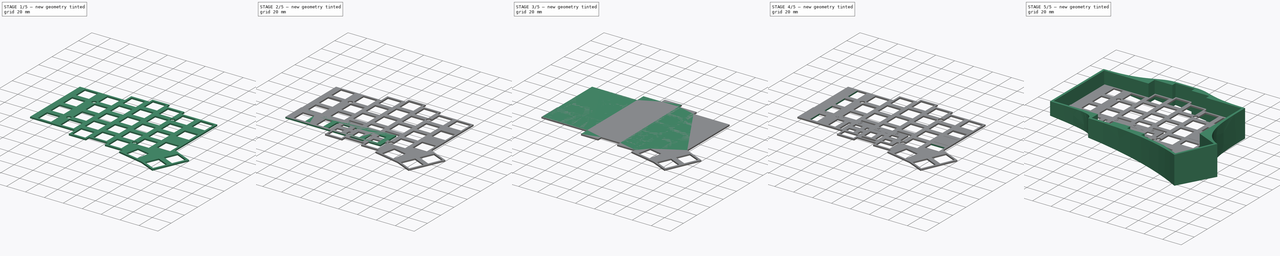
[diagram: build sequence overview — one tinted view per stage of 5, left to right]
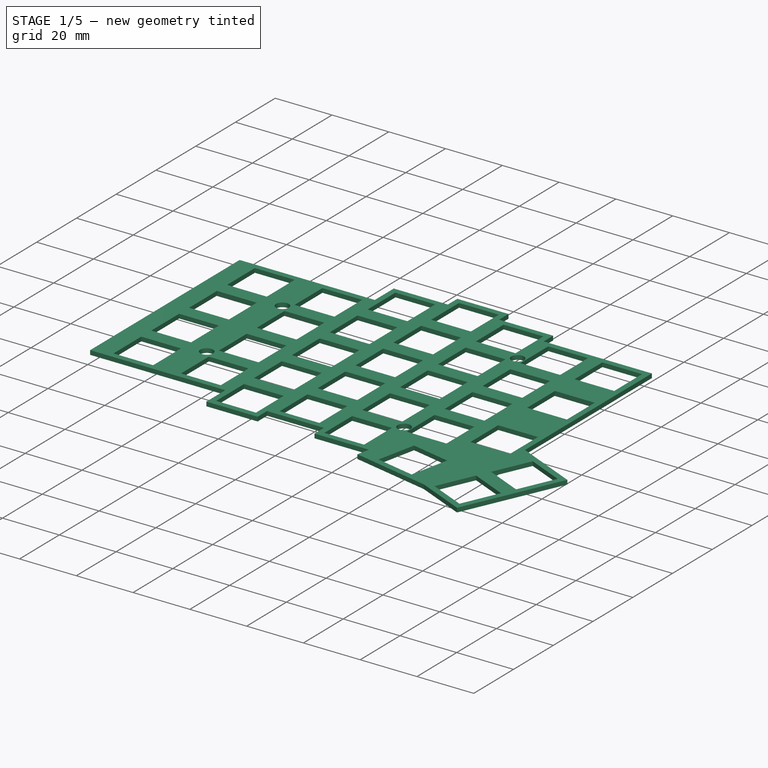
[diagram: stage 1 of 5 — iso view after this stage's code; geometry added in this stage tinted green]
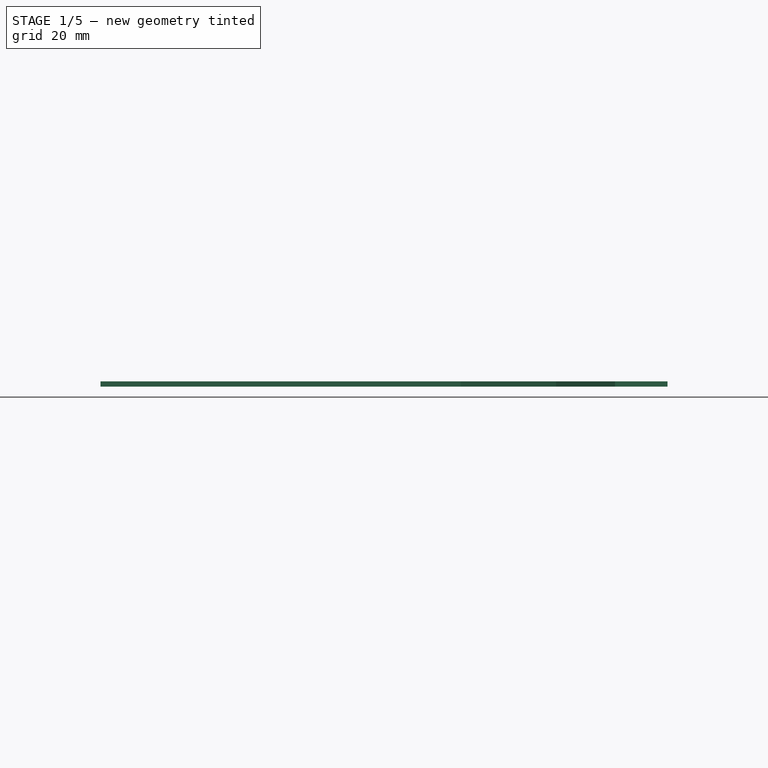
[diagram: stage 1 of 5 — front view after this stage's code; geometry added in this stage tinted green]
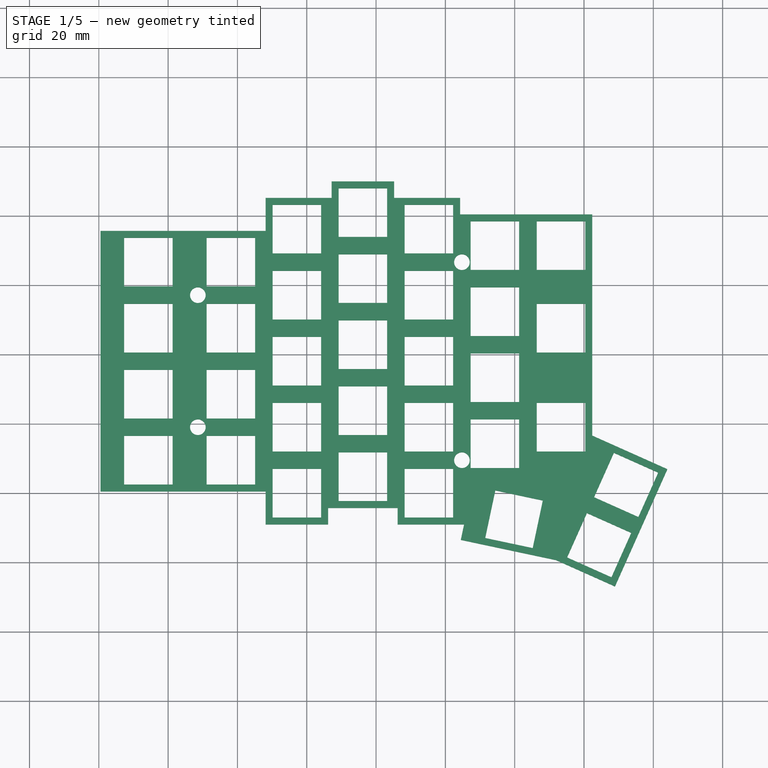
[diagram: stage 1 of 5 — top view after this stage's code; geometry added in this stage tinted green]
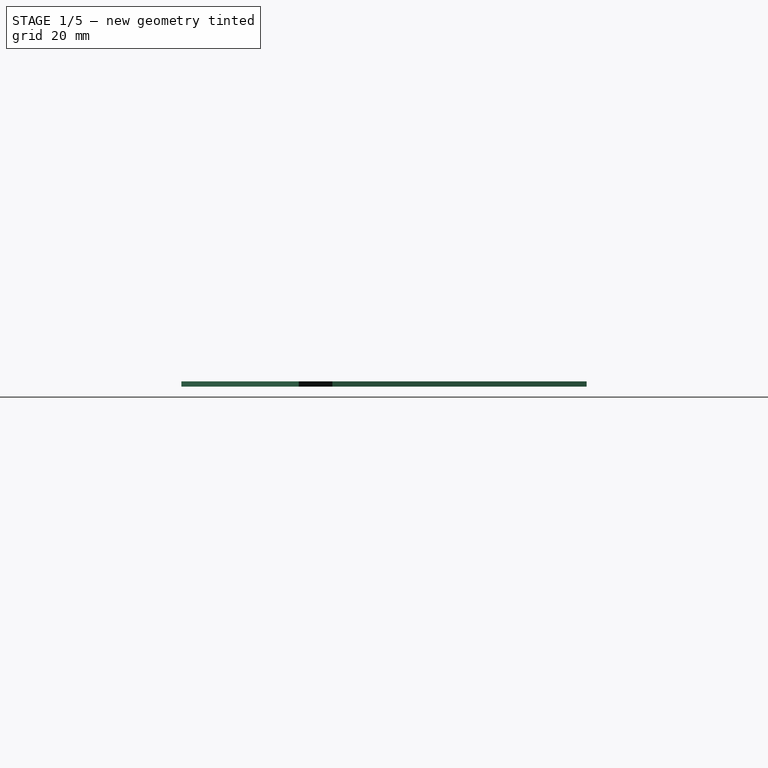
[diagram: stage 1 of 5 — right view after this stage's code; geometry added in this stage tinted green]
FCSTD DOCUMENT  (FreeCAD 0.19R24291 (Git))
Label: plate
License: All rights reserved
LicenseURL: http://en.wikipedia.org/wiki/All_rights_reserved
objects: Sketcher::SketchObject×18, PartDesign::Pocket×10, PartDesign::Pad×4, PartDesign::Body×4, Spreadsheet::Sheet×2, PartDesign::Draft×1, Part::Part2DObjectPython×1, Part::Extrusion×1, Part::Cut×1
note: 55 computed .brp shape members not serialized (recipe doc carries the construction recipe); baked Part::Feature solids carry a one-line shape summary decoded from their .brp

FEATURE [Spreadsheet::Sheet] Spreadsheet  label="Constants_ergo"
  cells = A1=grid; B1(grid)=19.05; C1=hole; D1(hole)=14; E1=spacing; F1(spacing)==grid - hole; A2=edge; B2(edge)=4; C2=hole_base; D2(hole_base)=14; A3=mod_units; B3(mod_units)=1.5; A5=plate; D5=case; A6=thickness; B6(thickness)=1.5; D6=highprofile; E6(highprofile)==11.6 + 1.6; A7=margin (to case); B7(margin)=0.5; D7=platetopcb; E7(platetopcb)=0; F7=6.6 for plate screw; A8=platehole; B8(platehole)=4.5; D8=space_min; E8(space_min)=1; F8=8,5 for plate screw; G8=postcone; H8(postcone)=0.2; A9=holemargin; B9(holemargin)=0.3; D9=postdiameter; E9(postdiameter)=5; F9=posthole; G9(posthole)=2.9; D10=angle; E10(angle)=6; A11=weight; D11=brim; E11(brim)==1.75 + 1.25; A12=weight_diameter; B12(weight_diameter)=40; D12=clearance; E12(clearance)=0.75; D13=port_position; E13(port_position)=2; A14=pluckey; A15=angle_lashes; B15(angle_lashes)=42
FEATURE [Sketcher::SketchObject] Sketch002  label="plate_w_margin"
  FullyConstrained = true
  expr: Constraints[53] = Spreadsheet.grid * 2
  expr: Constraints[205] = <<Constants_ergo>>.margin
  expr: Constraints[22] = Spreadsheet.grid
  expr: Constraints[75] = Spreadsheet.grid
  expr: Constraints[70] = Spreadsheet.grid * Spreadsheet.mod_units + Spreadsheet.grid / 2
  expr: Constraints[67] = Spreadsheet.grid
  expr: Constraints[129] = Spreadsheet.spacing / 2
  expr: Constraints[64] = Spreadsheet.mod_units * Spreadsheet.grid / 2
  expr: Constraints[128] = Spreadsheet.spacing / 2
  expr: Constraints[208] = <<Constants_ergo>>.margin
  expr: Constraints[124] = Spreadsheet.grid / 2
  expr: Constraints[126] = Spreadsheet.spacing / 2
  expr: Constraints[69] = Spreadsheet.grid
  expr: Constraints[61] = 78°
  expr: Constraints[52] = Spreadsheet.grid
  expr: Constraints[213] = <<Constants_ergo>>.margin
  expr: Constraints[79] = Spreadsheet.grid - 14.60669124913411
  expr: Constraints[207] = <<Constants_ergo>>.margin
  expr: Constraints[90] = Spreadsheet.hole
  expr: Constraints[78] = 180 - 12.08569093596732
  expr: Constraints[211] = <<Constants_ergo>>.margin
  expr: Constraints[94] = Spreadsheet.spacing / 2
  expr: Constraints[51] = Spreadsheet.grid * 1.5
  expr: Constraints[122] = Spreadsheet.hole
  expr: Constraints[28] = Spreadsheet.grid * 2
  expr: Constraints[25] = Spreadsheet.grid / 4
  expr: Constraints[95] = 0.75 * Spreadsheet.grid - Spreadsheet.hole / 2
  expr: Constraints[204] = <<Constants_ergo>>.margin
  expr: Constraints[26] = Spreadsheet.grid / 2
  expr: Constraints[72] = Spreadsheet.grid
  expr: Constraints[127] = Spreadsheet.spacing / 2
  expr: Constraints[2] = 4 * Spreadsheet.grid
  expr: Constraints[5] = (Spreadsheet.mod_units + 1) * Spreadsheet.grid
  expr: Constraints[77] = Spreadsheet.grid
  expr: Constraints[193] = <<Constants_ergo>>.margin
  expr: Constraints[194] = <<Constants_ergo>>.margin
  expr: Constraints[198] = <<Constants_ergo>>.margin
  expr: Constraints[195] = <<Constants_ergo>>.margin
  expr: Constraints[199] = <<Constants_ergo>>.margin
  expr: Constraints[200] = <<Constants_ergo>>.margin
  expr: Constraints[209] = <<Constants_ergo>>.margin
  expr: Constraints[196] = <<Constants_ergo>>.margin
  expr: Constraints[203] = <<Constants_ergo>>.margin
  expr: Constraints[206] = <<Constants_ergo>>.margin
  expr: Constraints[201] = <<Constants_ergo>>.margin
  expr: Constraints[216] = <<Constants_ergo>>.margin
  expr: Constraints[210] = <<Constants_ergo>>.margin
  expr: Constraints[212] = <<Constants_ergo>>.margin
  expr: Constraints[197] = <<Constants_ergo>>.margin
  expr: Constraints[214] = <<Constants_ergo>>.margin
  expr: Constraints[215] = <<Constants_ergo>>.margin
  sketch-geometry (72):
    g0: LineSegment StartX=104.775 StartY=-9.525 StartZ=0 EndX=103.851 EndY=-13.8712 EndZ=0
    g1: LineSegment StartX=0 StartY=0 StartZ=0 EndX=0 EndY=76.2 EndZ=0
    g2: LineSegment StartX=0 StartY=76.2 StartZ=0 EndX=47.625 EndY=76.2 EndZ=0
    g3: LineSegment StartX=47.625 StartY=76.2 StartZ=0 EndX=47.625 EndY=85.725 EndZ=0
    g4: LineSegment StartX=47.625 StartY=85.725 StartZ=0 EndX=66.675 EndY=85.725 EndZ=0
    g5: LineSegment StartX=66.675 StartY=85.725 StartZ=0 EndX=66.675 EndY=90.4875 EndZ=0
    g6: LineSegment StartX=66.675 StartY=90.4875 StartZ=0 EndX=85.725 EndY=90.4875 EndZ=0
    g7: LineSegment StartX=85.725 StartY=90.4875 StartZ=0 EndX=85.725 EndY=85.725 EndZ=0
    g8: LineSegment StartX=85.725 StartY=85.725 StartZ=0 EndX=104.775 EndY=85.725 EndZ=0
    g9: LineSegment StartX=104.775 StartY=85.725 StartZ=0 EndX=104.775 EndY=80.9625 EndZ=0
    g10: LineSegment StartX=104.775 StartY=80.9625 StartZ=0 EndX=142.875 EndY=80.9625 EndZ=0
    g11: LineSegment StartX=142.875 StartY=80.9625 StartZ=0 EndX=142.875 EndY=16.9712 EndZ=0
    g12: LineSegment StartX=0 StartY=0 StartZ=0 EndX=47.625 EndY=0 EndZ=0
    g13: LineSegment StartX=47.625 StartY=0 StartZ=0 EndX=47.625 EndY=-9.525 EndZ=0
    g14: LineSegment StartX=47.625 StartY=-9.525 StartZ=0 EndX=66.675 EndY=-9.525 EndZ=0
    g15: LineSegment StartX=66.675 StartY=-9.525 StartZ=0 EndX=66.675 EndY=-4.7625 EndZ=0
    g16: LineSegment StartX=66.675 StartY=-4.7625 StartZ=0 EndX=85.725 EndY=-4.7625 EndZ=0
    g17: LineSegment StartX=85.725 StartY=-4.7625 StartZ=0 EndX=85.725 EndY=-9.525 EndZ=0
    g18: LineSegment StartX=164.742 StartY=7.19623 StartZ=0 EndX=149.193 EndY=-27.5866 EndZ=0
    g19: LineSegment StartX=149.193 StartY=-27.5866 StartZ=0 EndX=131.802 EndY=-19.8123 EndZ=0
    g20: LineSegment StartX=131.802 StartY=-19.8123 StartZ=0 EndX=103.851 EndY=-13.8712 EndZ=0
    g21: LineSegment StartX=164.742 StartY=7.19623 StartZ=0 EndX=142.875 EndY=16.9712 EndZ=0
    g22: LineSegment StartX=85.725 StartY=-9.525 StartZ=0 EndX=104.775 EndY=-9.525 EndZ=0
    g23: LineSegment StartX=14.2875 StartY=76.2 StartZ=0 EndX=14.2875 EndY=0 EndZ=0
    g24: LineSegment StartX=38.1 StartY=76.2 StartZ=0 EndX=38.1 EndY=0 EndZ=0
    g25: LineSegment StartX=57.15 StartY=85.725 StartZ=0 EndX=57.15 EndY=-9.525 EndZ=0
    g26: LineSegment StartX=76.2 StartY=90.4875 StartZ=0 EndX=76.2 EndY=-4.7625 EndZ=0
    g27: LineSegment StartX=95.25 StartY=85.725 StartZ=0 EndX=95.25 EndY=-9.525 EndZ=0
    g28: LineSegment StartX=114.3 StartY=80.9625 StartZ=0 EndX=114.3 EndY=-9.525 EndZ=0
    g29: LineSegment StartX=133.35 StartY=80.9625 StartZ=0 EndX=133.35 EndY=-9.525 EndZ=0
    g30: LineSegment StartX=111.504 StartY=-12.9165 StartZ=0 EndX=125.198 EndY=-15.8273 EndZ=0
    g31: LineSegment StartX=125.198 StartY=-15.8273 StartZ=0 EndX=128.109 EndY=-2.13324 EndZ=0
    g32: LineSegment StartX=128.109 StartY=-2.13324 StartZ=0 EndX=114.415 EndY=0.777521 EndZ=0
    g33: LineSegment StartX=114.415 StartY=0.777521 StartZ=0 EndX=111.504 EndY=-12.9165 EndZ=0
    g34: LineSegment StartX=114.415 StartY=0.777521 StartZ=0 EndX=125.198 EndY=-15.8273 EndZ=0
    g35: LineSegment StartX=111.504 StartY=-12.9165 StartZ=0 EndX=128.109 EndY=-2.13324 EndZ=0
    g36: LineSegment StartX=135.137 StartY=-18.5376 StartZ=0 EndX=147.918 EndY=-24.251 EndZ=0
    g37: LineSegment StartX=147.918 StartY=-24.251 StartZ=0 EndX=153.632 EndY=-11.4699 EndZ=0
    g38: LineSegment StartX=153.632 StartY=-11.4699 StartZ=0 EndX=140.851 EndY=-5.75648 EndZ=0
    g39: LineSegment StartX=140.851 StartY=-5.75648 StartZ=0 EndX=135.137 EndY=-18.5376 EndZ=0
    g40: LineSegment StartX=140.851 StartY=-5.75648 StartZ=0 EndX=147.918 EndY=-24.251 EndZ=0
    g41: LineSegment StartX=135.137 StartY=-18.5376 StartZ=0 EndX=153.632 EndY=-11.4699 EndZ=0
    g42: LineSegment StartX=142.912 StartY=-1.14615 StartZ=0 EndX=155.693 EndY=-6.85959 EndZ=0
    g43: LineSegment StartX=155.693 StartY=-6.85959 StartZ=0 EndX=161.406 EndY=5.92152 EndZ=0
    g44: LineSegment StartX=161.406 StartY=5.92152 StartZ=0 EndX=148.625 EndY=11.6349 EndZ=0
    g45: LineSegment StartX=148.625 StartY=11.6349 StartZ=0 EndX=142.912 EndY=-1.14615 EndZ=0
    g46: LineSegment StartX=148.625 StartY=11.6349 StartZ=0 EndX=155.693 EndY=-6.85959 EndZ=0
    g47: LineSegment StartX=142.912 StartY=-1.14615 StartZ=0 EndX=161.406 EndY=5.92152 EndZ=0
    g48: LineSegment StartX=140.497 StartY=-23.6995 StartZ=0 EndX=156.046 EndY=11.0834 EndZ=0
    g49: LineSegment StartX=0.5 StartY=75.7 StartZ=0 EndX=48.125 EndY=75.7 EndZ=0
    g50: LineSegment StartX=48.125 StartY=75.7 StartZ=0 EndX=48.125 EndY=85.225 EndZ=0
    g51: LineSegment StartX=48.125 StartY=85.225 StartZ=0 EndX=67.175 EndY=85.225 EndZ=0
    g52: LineSegment StartX=67.175 StartY=85.225 StartZ=0 EndX=67.175 EndY=89.9875 EndZ=0
    g53: LineSegment StartX=67.175 StartY=89.9875 StartZ=0 EndX=85.225 EndY=89.9875 EndZ=0
    g54: LineSegment StartX=85.225 StartY=89.9875 StartZ=0 EndX=85.225 EndY=85.225 EndZ=0
    g55: LineSegment StartX=85.225 StartY=85.225 StartZ=0 EndX=104.275 EndY=85.225 EndZ=0
    g56: LineSegment StartX=104.275 StartY=85.225 StartZ=0 EndX=104.275 EndY=80.4625 EndZ=0
    g57: LineSegment StartX=104.275 StartY=80.4625 StartZ=0 EndX=142.375 EndY=80.4625 EndZ=0
    g58: LineSegment StartX=142.375 StartY=80.4625 StartZ=0 EndX=142.375 EndY=16.647 EndZ=0
    g59: LineSegment StartX=142.375 StartY=16.647 StartZ=0 EndX=164.081 EndY=6.94381 EndZ=0
    g60: LineSegment StartX=164.081 StartY=6.94381 StartZ=0 EndX=148.941 EndY=-26.9261 EndZ=0
    g61: LineSegment StartX=148.941 StartY=-26.9261 StartZ=0 EndX=131.957 EndY=-19.3342 EndZ=0
    g62: LineSegment StartX=131.957 StartY=-19.3342 StartZ=0 EndX=104.444 EndY=-13.4861 EndZ=0
    g63: LineSegment StartX=104.444 StartY=-13.4861 StartZ=0 EndX=105.392 EndY=-9.025 EndZ=0
    g64: LineSegment StartX=105.392 StartY=-9.025 StartZ=0 EndX=86.225 EndY=-9.025 EndZ=0
    g65: LineSegment StartX=86.225 StartY=-9.025 StartZ=0 EndX=86.225 EndY=-4.2625 EndZ=0
    g66: LineSegment StartX=86.225 StartY=-4.2625 StartZ=0 EndX=66.175 EndY=-4.2625 EndZ=0
    g67: LineSegment StartX=66.175 StartY=-4.2625 StartZ=0 EndX=66.175 EndY=-9.025 EndZ=0
    g68: LineSegment StartX=66.175 StartY=-9.025 StartZ=0 EndX=48.125 EndY=-9.025 EndZ=0
    g69: LineSegment StartX=48.125 StartY=-9.025 StartZ=0 EndX=48.125 EndY=0.5 EndZ=0
    g70: LineSegment StartX=48.125 StartY=0.5 StartZ=0 EndX=0.5 EndY=0.5 EndZ=0
    g71: LineSegment StartX=0.5 StartY=0.5 StartZ=0 EndX=0.5 EndY=75.7 EndZ=0
  constraints (217):
    c: Coincident(g1,g-1)
    c: Vertical(g1)
    c: DistanceY(g1,g1) = 76.2
    c: Horizontal(g2)
    c: Coincident(g2,g1)
    c: DistanceX(g2,g2) = 47.625
    c: Coincident(g3,g4)
    c: Coincident(g4,g5)
    c: Coincident(g5,g6)
    c: Coincident(g6,g7)
    c: Coincident(g8,g9)
    c: Coincident(g9,g10)
    c: Coincident(g10,g11)
    c: Vertical(g3)
    c: Vertical(g5)
    c: Vertical(g7)
    c: Vertical(g9)
    c: Vertical(g11)
    c: Horizontal(g4)
    c: Horizontal(g6)
    c: Horizontal(g8)
    c: Horizontal(g10)
    c: DistanceX(g6,g6) = 19.05
    c: Equal(g4,g8)
    c: Equal(g8,g6)
    c: DistanceY(g5,g5) = 4.7625
    c: DistanceY(g3,g3) = 9.525
    c: Equal(g9,g7)
    c: DistanceX(g10,g10) = 38.1
    c: Coincident(g2,g3)
    c: Equal(g5,g7)
    c: Coincident(g12,g13)
    c: Coincident(g13,g14)
    c: Coincident(g14,g15)
    c: Coincident(g15,g16)
    c: Coincident(g16,g17)
    c: Equal(g12,g2)
    c: Horizontal(g12)
    c: Equal(g3,g13)
    c: Vertical(g13)
    c: Vertical(g15)
    c: Vertical(g17)
    c: Horizontal(g14)
    c: Horizontal(g16)
    c: Equal(g15,g17)
    c: Equal(g17,g5)
    c: Equal(g14,g4)
    c: Equal(g16,g6)
    c: Coincident(g1,g12)
    c: Coincident(g18,g19)
    c: Coincident(g19,g20)
    c: Distance(g20) = 28.575
    c: Distance(g19) = 19.05
    c: Distance(g18) = 38.1
    c: Perpendicular(g18,g19)
    c: Perpendicular(g21,g18)
    c: Coincident(g11,g21)
    c: Coincident(g17,g22)
    c: Equal(g22,g16)
    c: Horizontal(g22)
    c: Coincident(g22,g0)
    c: Angle(g22,g0) = 1.36136
    c: Coincident(g20,g0)
    c: Perpendicular(g20,g0)
    c: DistanceX(g1,g23) = 14.2875
    c: Vertical(g24)
    c: Vertical(g25)
    c: DistanceX(g24,g25) = 19.05
    c: Vertical(g26)
    c: DistanceX(g25,g26) = 19.05
    c: DistanceX(g1,g24) = 38.1
    c: Vertical(g27)
    c: DistanceX(g26,g27) = 19.05
    c: Coincident(g7,g8)
    c: Vertical(g28)
    c: DistanceX(g27,g28) = 19.05
    c: Vertical(g29)
    c: DistanceX(g28,g29) = 19.05
    c: Angle(g20,g19) = 2.93066
    c: Distance(g0) = 4.44331
    c: Coincident(g30,g31)
    c: Coincident(g31,g32)
    c: Coincident(g32,g33)
    c: Coincident(g33,g30)
    c: Perpendicular(g35,g34)
    c: Coincident(g35,g31)
    c: Coincident(g34,g32)
    c: Coincident(g35,g30)
    c: Coincident(g34,g30)
    c: Parallel(g30,g20)
    c: Distance(g30) = 14
    c: Perpendicular(g33,g30)
    c: Equal(g30,g32)
    c: Parallel(g32,g30)
    c: Distance(g0,g30) = 2.525
    c: Distance(g0,g33) = 7.2875
    c: Coincident(g36,g37)
    c: Coincident(g37,g38)
    c: Coincident(g38,g39)
    c: Coincident(g39,g36)
    c: Perpendicular(g41,g40)
    c: Coincident(g41,g37)
    c: Coincident(g40,g38)
    c: Coincident(g41,g36)
    c: Coincident(g40,g36)
    c: Coincident(g42,g43)
    c: Coincident(g43,g44)
    c: Coincident(g44,g45)
    c: Coincident(g45,g42)
    c: Perpendicular(g47,g46)
    c: Coincident(g47,g43)
    c: Coincident(g46,g44)
    c: Coincident(g47,g42)
    c: Coincident(g46,g42)
    c: Equal(g36,g42)
    c: Perpendicular(g44,g45)
    c: Perpendicular(g45,g42)
    c: Perpendicular(g38,g39)
    c: Perpendicular(g39,g36)
    c: Parallel(g36,g19)
    c: Parallel(g42,g36)
    c: Parallel(g37,g39)
    c: Distance(g36) = 14
    c: Parallel(g48,g18)
    c: Distance(g18,g48) = 9.525
    c: Equal(g45,g43)
    c: Distance(g18,g36) = 2.525
    c: Distance(g18,g37) = 2.525
    c: Distance(g18,g44) = 2.525
    c: Distance(g18,g43) = 2.525
    c: Coincident(g18,g21)
    c: Horizontal(g23,g-1)
    c: Horizontal(g23,g1)
    c: Vertical(g23)
    c: Horizontal(g24,g2)
    c: Horizontal(g12,g24)
    c: Horizontal(g25,g13)
    c: Horizontal(g3,g25)
    c: Horizontal(g5,g26)
    c: Horizontal(g7,g27)
    c: Horizontal(g9,g28)
    c: Horizontal(g9,g29)
    c: Horizontal(g27,g17)
    c: Horizontal(g26,g15)
    c: Horizontal(g28,g0)
    c: Horizontal(g29,g0)
    c: Equal(g48,g18)
    c: PointOnObject(g48,g19)
    c: Coincident(g49,g50)
    c: Coincident(g50,g51)
    c: Coincident(g51,g52)
    c: Coincident(g52,g53)
    c: Coincident(g53,g54)
    c: Coincident(g54,g55)
    c: Coincident(g55,g56)
    c: Coincident(g56,g57)
    c: Coincident(g57,g58)
    c: Coincident(g58,g59)
    c: Coincident(g59,g60)
    c: Coincident(g60,g61)
    c: Coincident(g61,g62)
    c: Coincident(g62,g63)
    c: Coincident(g63,g64)
    c: Coincident(g64,g65)
    c: Coincident(g65,g66)
    c: Coincident(g66,g67)
    c: Coincident(g67,g68)
    c: Coincident(g68,g69)
    c: Coincident(g69,g70)
    c: Coincident(g70,g71)
    c: Coincident(g71,g49)
    c: Parallel(g49,g2)
    c: Parallel(g50,g3)
    c: Parallel(g51,g4)
    c: Parallel(g52,g5)
    c: Parallel(g53,g6)
    c: Parallel(g54,g7)
    c: Parallel(g55,g8)
    c: Parallel(g56,g9)
    c: Parallel(g57,g10)
    c: Parallel(g58,g11)
    c: Parallel(g59,g21)
    c: Parallel(g60,g18)
    c: Parallel(g19,g61)
    c: Parallel(g20,g62)
    c: Parallel(g0,g63)
    c: Parallel(g22,g64)
    c: Parallel(g17,g65)
    c: Parallel(g16,g66)
    c: Parallel(g67,g15)
    c: Parallel(g14,g68)
    c: Parallel(g13,g69)
    c: Parallel(g12,g70)
    c: DistanceY(g-1,g70) = 0.5
    c: DistanceX(g-1,g70) = 0.5
    c: DistanceX(g1,g49) = 0.5
    c: DistanceY(g49,g1) = 0.5
    c: DistanceX(g2,g49) = 0.5
    c: DistanceY(g50,g3) = 0.5
    c: DistanceX(g4,g51) = 0.5
    c: DistanceY(g52,g5) = 0.5
    c: DistanceX(g53,g6) = 0.5
    c: Horizontal(g54,g51)
    c: DistanceX(g55,g8) = 0.5
    c: DistanceY(g56,g9) = 0.5
    c: DistanceX(g57,g10) = 0.5
    c: Distance(g59,g21) = 0.5
    c: Distance(g59,g18) = 0.5
    c: Distance(g60,g19) = 0.5
    c: Distance(g62,g20) = 0.5
    c: Distance(g62,g0) = 0.5
    c: DistanceX(g12,g69) = 0.5
    c: DistanceY(g13,g68) = 0.5
    c: DistanceX(g67,g14) = 0.5
    c: DistanceY(g15,g66) = 0.5
    c: DistanceX(g16,g65) = 0.5
    c: DistanceY(g17,g64) = 0.5
FEATURE [PartDesign::Pad] Pad001
  Direction = (1,1,1)
  Length = 1.5
  Length2 = 100
  Profile = -> Sketch002
  Type = 0
  expr: Length = Spreadsheet.thickness
FEATURE [Sketcher::SketchObject] Sketch014
  ExternalGeometry = -> [Draft]
  FullyConstrained = false
  MapMode = 5
  Placement = pos=(-0.00819465,0,-0.0779669) rot=(0.99863,0,-0.052336;3.14159rad)
  Support = -> [Draft]
  sketch-geometry (38):
    g0: LineSegment StartX=-3.00829 StartY=3 StartZ=0 EndX=-3.00829 EndY=-79.2 EndZ=0
    g1: LineSegment StartX=67.0505 StartY=-93.4875 StartZ=0 EndX=86.2054 EndY=-93.4875 EndZ=0
    g2: LineSegment StartX=151.546 StartY=31.5498 StartZ=0 EndX=169.643 EndY=-8.71073 EndZ=0
    g3-g6: Circle x4 (B-spline internal-alignment scaffolding for g7; pole/knot coordinates omitted)
    g7: BSplineCurve PolesCount=4 KnotsCount=2 Degree=3 IsPeriodic=0
    g8: GeomPoint X=-3.00829 Y=3 Z=0
    g9: GeomPoint X=44.879 Y=12.525 Z=0
    g10-g13: Circle x4 (B-spline internal-alignment scaffolding for g14; pole/knot coordinates omitted)
    g14: BSplineCurve PolesCount=4 KnotsCount=2 Degree=3 IsPeriodic=0
    g15: GeomPoint X=44.879 Y=12.525 Z=0
    g16: GeomPoint X=151.546 Y=31.5498 Z=0
    g17-g20: Circle x4 (B-spline internal-alignment scaffolding for g21; pole/knot coordinates omitted)
    g21: BSplineCurve PolesCount=4 KnotsCount=2 Degree=3 IsPeriodic=0
    g22: GeomPoint X=169.643 Y=-8.71073 Z=0
    g23: GeomPoint X=146.687 Y=-83.9625 Z=0
    g24-g27: Circle x4 (B-spline internal-alignment scaffolding for g28; pole/knot coordinates omitted)
    g28: BSplineCurve PolesCount=4 KnotsCount=2 Degree=3 IsPeriodic=0
    g29: GeomPoint X=146.687 Y=-83.9625 Z=0
    g30: GeomPoint X=86.2054 Y=-93.4875 Z=0
    g31-g34: Circle x4 (B-spline internal-alignment scaffolding for g35; pole/knot coordinates omitted)
    g35: BSplineCurve PolesCount=4 KnotsCount=2 Degree=3 IsPeriodic=0
    g36: GeomPoint X=67.0505 Y=-93.4875 Z=0
    g37: GeomPoint X=-3.00829 Y=-79.2 Z=0
  constraints (51):
    c: Coincident(g0,g-3)
    c: Coincident(g0,g-4)
    c: Coincident(g1,g-5)
    c: Coincident(g1,g-6)
    c: Coincident(g2,g-9)
    c: Coincident(g2,g-8)
    c: Coincident(g7,g0)
    c: Weight(g3) = 1
    c: Equal(g3,g4)
    c: Equal(g3,g5)
    c: Equal(g3,g6)
    c: Coincident(g7,g-10)
    c: InternalAlignment(g3-g6 -> g7) x4
    c: InternalAlignment(g8,g7)
    c: InternalAlignment(g9,g7)
    c: Coincident(g14,g7)
    c: Weight(g10) = 1
    c: Equal(g10,g11)
    c: Equal(g10,g12)
    c: Equal(g10,g13)
    c: InternalAlignment(g10-g13 -> g14) x4
    c: InternalAlignment(g15,g14)
    c: InternalAlignment(g16,g14)
    c: Coincident(g2,g14)
    c: Coincident(g21,g2)
    c: Weight(g17) = 1
    c: Equal(g17,g18)
    c: Equal(g17,g19)
    c: Equal(g17,g20)
    c: Coincident(g21,g-7)
    c: InternalAlignment(g17-g20 -> g21) x4
    c: InternalAlignment(g22,g21)
    c: InternalAlignment(g23,g21)
    c: Coincident(g28,g21)
    c: Weight(g24) = 1
    c: Equal(g24,g25)
    c: Equal(g24,g26)
    c: Equal(g24,g27)
    c: Coincident(g28,g1)
    c: InternalAlignment(g24-g27 -> g28) x4
    c: InternalAlignment(g29,g28)
    c: InternalAlignment(g30,g28)
    c: Coincident(g35,g1)
    c: Weight(g31) = 1
    c: Equal(g31,g32)
    c: Equal(g31,g33)
    c: Equal(g31,g34)
    c: Coincident(g35,g0)
    c: InternalAlignment(g31-g34 -> g35) x4
    c: InternalAlignment(g36,g35)
    c: InternalAlignment(g37,g35)
FEATURE [PartDesign::Body] Body  label="Case"
  Group = -> [Sketch,Pad,Sketch013,Pocket002,Draft,Sketch014]
  Origin = -> Origin
  Tip = -> Draft
FEATURE [PartDesign::Pocket] Pocket  label="plate holes"
  BaseFeature = -> Pad001
  Length = 5
  Length2 = 100
  Profile = -> Sketch012
  Type = 0
FEATURE [PartDesign::Pocket] Pocket005
  BaseFeature = -> Pocket
  Length = 5
  Length2 = 100
  Profile = -> Sketch011
  Type = 0
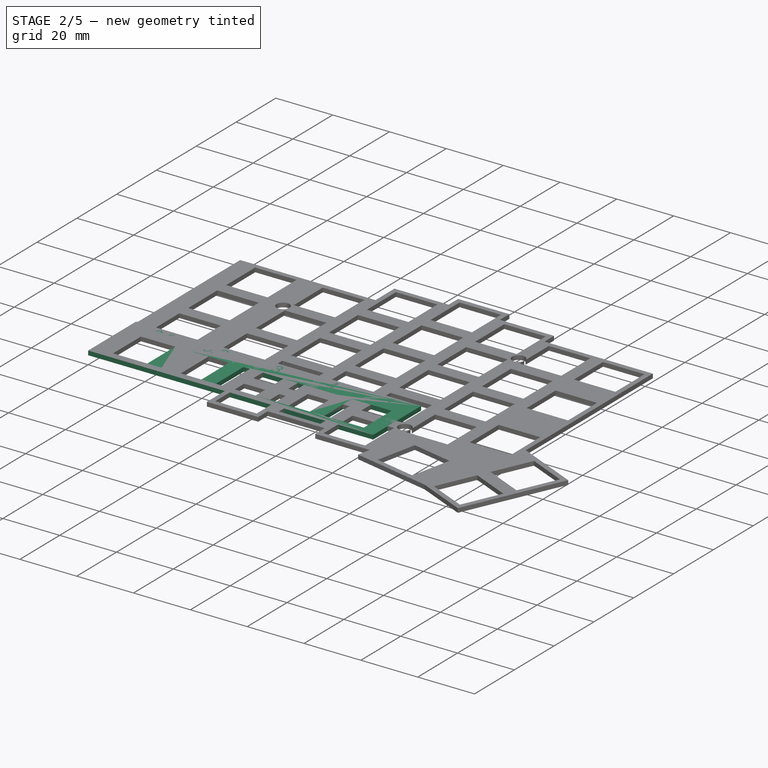
[diagram: stage 2 of 5 — iso view after this stage's code; geometry added in this stage tinted green]
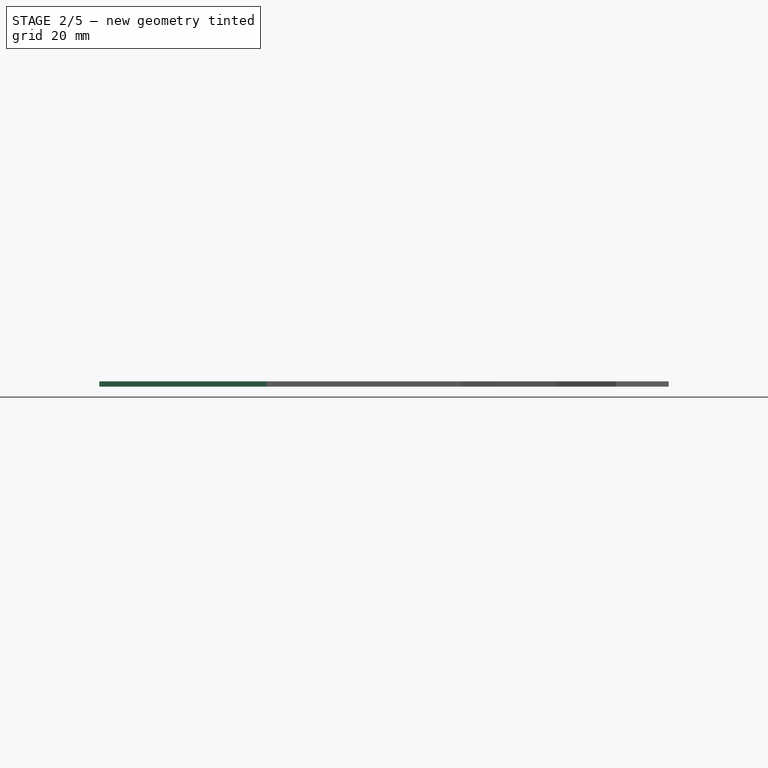
[diagram: stage 2 of 5 — front view after this stage's code; geometry added in this stage tinted green]
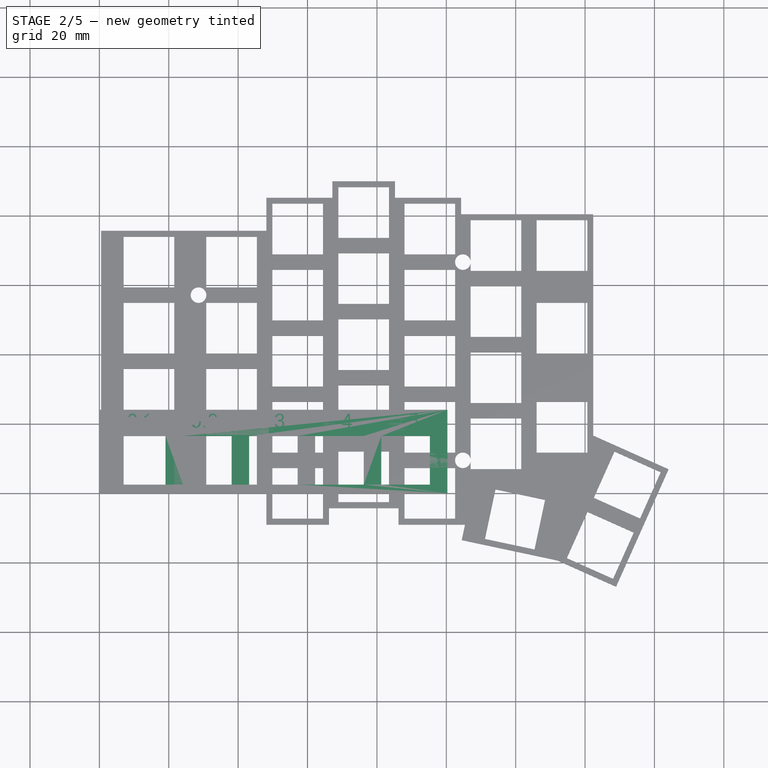
[diagram: stage 2 of 5 — top view after this stage's code; geometry added in this stage tinted green]
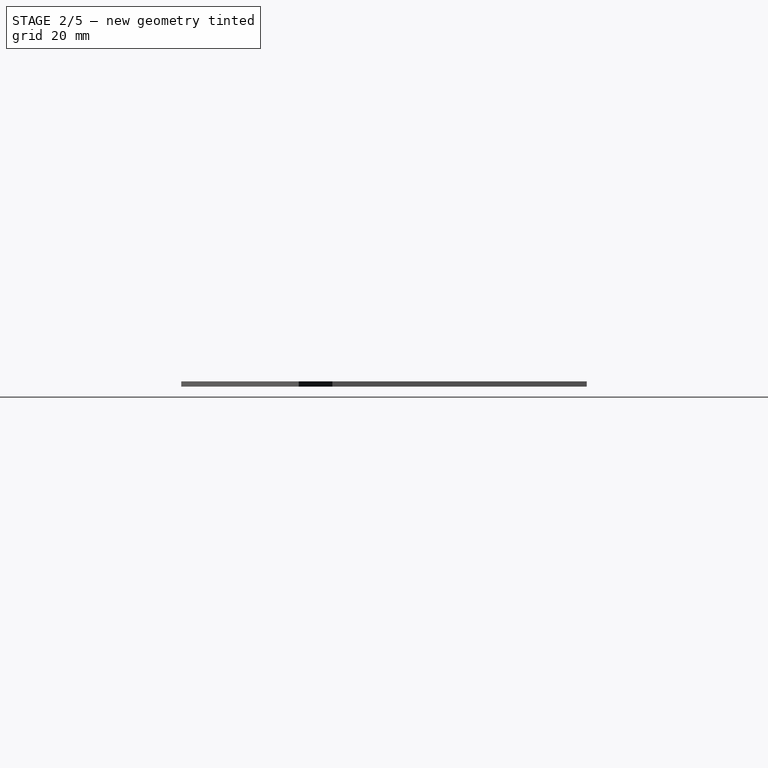
[diagram: stage 2 of 5 — right view after this stage's code; geometry added in this stage tinted green]
FEATURE [PartDesign::Body] Body002  label="Plate_ortho"
  Group = -> [Sketch019,Pad002,Sketch020,Sketch021,Sketch023,Pocket006,Sketch024,Pocket007,Sketch025,Sketch026,Pocket008,Pocket009]
  Origin = -> Origin002
  Tip = -> Pocket009
FEATURE [Sketcher::SketchObject] Sketch027
  FullyConstrained = true
  MapMode = 5
  Support = -> [XY_Plane003]
  sketch-geometry (25):
    g0: LineSegment StartX=0 StartY=0 StartZ=0 EndX=100.3 EndY=0 EndZ=0
    g1: LineSegment StartX=100.3 StartY=0 StartZ=0 EndX=100.3 EndY=24.1 EndZ=0
    g2: LineSegment StartX=100.3 StartY=24.1 StartZ=0 EndX=0 EndY=24.1 EndZ=0
    g3: LineSegment StartX=0 StartY=24.1 StartZ=0 EndX=0 EndY=0 EndZ=0
    g4: LineSegment StartX=0 StartY=9.525 StartZ=0 EndX=100.3 EndY=9.525 EndZ=0
    g5: LineSegment StartX=5.05 StartY=2.525 StartZ=0 EndX=19.05 EndY=2.525 EndZ=0
    g6: LineSegment StartX=19.05 StartY=2.525 StartZ=0 EndX=19.05 EndY=16.525 EndZ=0
    g7: LineSegment StartX=19.05 StartY=16.525 StartZ=0 EndX=5.05 EndY=16.525 EndZ=0
    g8: LineSegment StartX=5.05 StartY=16.525 StartZ=0 EndX=5.05 EndY=2.525 EndZ=0
    g9: LineSegment StartX=24.1 StartY=2.525 StartZ=0 EndX=38.1 EndY=2.525 EndZ=0
    g10: LineSegment StartX=38.1 StartY=2.525 StartZ=0 EndX=38.1 EndY=16.525 EndZ=0
    g11: LineSegment StartX=38.1 StartY=16.525 StartZ=0 EndX=24.1 EndY=16.525 EndZ=0
    g12: LineSegment StartX=24.1 StartY=16.525 StartZ=0 EndX=24.1 EndY=2.525 EndZ=0
    g13: LineSegment StartX=43.15 StartY=2.525 StartZ=0 EndX=57.15 EndY=2.525 EndZ=0
    g14: LineSegment StartX=57.15 StartY=2.525 StartZ=0 EndX=57.15 EndY=16.525 EndZ=0
    g15: LineSegment StartX=57.15 StartY=16.525 StartZ=0 EndX=43.15 EndY=16.525 EndZ=0
    g16: LineSegment StartX=43.15 StartY=16.525 StartZ=0 EndX=43.15 EndY=2.525 EndZ=0
    g17: LineSegment StartX=62.2 StartY=2.525 StartZ=0 EndX=76.2 EndY=2.525 EndZ=0
    g18: LineSegment StartX=76.2 StartY=2.525 StartZ=0 EndX=76.2 EndY=16.525 EndZ=0
    g19: LineSegment StartX=76.2 StartY=16.525 StartZ=0 EndX=62.2 EndY=16.525 EndZ=0
    g20: LineSegment StartX=62.2 StartY=16.525 StartZ=0 EndX=62.2 EndY=2.525 EndZ=0
    g21: LineSegment StartX=81.25 StartY=2.525 StartZ=0 EndX=95.25 EndY=2.525 EndZ=0
    g22: LineSegment StartX=95.25 StartY=2.525 StartZ=0 EndX=95.25 EndY=16.525 EndZ=0
    g23: LineSegment StartX=95.25 StartY=16.525 StartZ=0 EndX=81.25 EndY=16.525 EndZ=0
    g24: LineSegment StartX=81.25 StartY=16.525 StartZ=0 EndX=81.25 EndY=2.525 EndZ=0
  constraints (70):
    c: Coincident(g0,g1)
    c: Coincident(g1,g2)
    c: Coincident(g2,g3)
    c: Coincident(g3,g0)
    c: Horizontal(g0)
    c: Horizontal(g2)
    c: Vertical(g1)
    c: Vertical(g3)
    c: Coincident(g0,g-1)
    c: PointOnObject(g4,g3)
    c: PointOnObject(g4,g1)
    c: Horizontal(g4)
    c: DistanceY(g0,g4) = 9.525
    c: Coincident(g5,g6)
    c: Coincident(g6,g7)
    c: Coincident(g7,g8)
    c: Coincident(g8,g5)
    c: Horizontal(g5)
    c: Horizontal(g7)
    c: Vertical(g6)
    c: Coincident(g9,g10)
    c: Coincident(g10,g11)
    c: Coincident(g11,g12)
    c: Coincident(g12,g9)
    c: Horizontal(g9)
    c: Horizontal(g11)
    c: Vertical(g10)
    c: Coincident(g13,g14)
    c: Coincident(g14,g15)
    c: Coincident(g15,g16)
    c: Coincident(g16,g13)
    c: Horizontal(g13)
    c: Horizontal(g15)
    c: Vertical(g14)
    c: Coincident(g17,g18)
    c: Coincident(g18,g19)
    c: Coincident(g19,g20)
    c: Coincident(g20,g17)
    c: Horizontal(g17)
    c: Horizontal(g19)
    c: Vertical(g18)
    c: Coincident(g21,g22)
    c: Coincident(g22,g23)
    c: Coincident(g23,g24)
    c: Coincident(g24,g21)
    c: Horizontal(g21)
    c: Horizontal(g23)
    c: Vertical(g22)
    c: Equal(g7,g8)
    c: Equal(g8,g11)
    c: Equal(g11,g12)
    c: Equal(g12,g16)
    c: Equal(g16,g15)
    c: Equal(g15,g20)
    c: Equal(g20,g19)
    c: Equal(g19,g23)
    c: Equal(g23,g24)
    c: Symmetric(g7,g5,g4)
    c: Symmetric(g9,g11,g4)
    c: Symmetric(g13,g15,g4)
    c: Symmetric(g17,g19,g4)
    c: Symmetric(g21,g23,g4)
    c: DistanceY(g8,g8) = 14
    c: DistanceX(g0,g5) = 5.05
    c: DistanceX(g5,g9) = 5.05
    c: DistanceX(g9,g13) = 5.05
    c: DistanceX(g13,g17) = 5.05
    c: DistanceX(g17,g21) = 5.05
    c: DistanceX(g21,g0) = 5.05
    c: DistanceY(g7,g2) = 7.575
FEATURE [PartDesign::Pad] Pad003
  Direction = (1,1,1)
  Length = 1.5
  Length2 = 100
  Profile = -> Sketch027
  Type = 0
  expr: Length = 1.5
FEATURE [PartDesign::Body] Body003  label="hole tolerance tester"
  Group = -> [Sketch027,Pad003,Sketch028,Pocket010]
  Origin = -> Origin003
  Tip = -> Pocket010
FEATURE [Part::Part2DObjectPython] ShapeString  # Draft 2D object (typed FeaturePython)
  FontFile = <path>
  Placement = pos=(7.84,18.87,1.5) rot=(0,0,1;0rad)
  Size = 6
  String = 0.1       0.2       0.3       0.4       0.5
  Tracking = 0
FEATURE [Part::Extrusion] Extrude
  Base = -> ShapeString
  Dir = (0,0,1)
  DirMode = 2
  FaceMakerClass = Part::FaceMakerBullseye
  LengthFwd = 0.5
  LengthRev = -1
  Placement = pos=(0,0,-1) rot=(0,0,1;0rad)
  Solid = false
  Symmetric = false
FEATURE [Sketcher::SketchObject] Sketch029
  ExternalGeometry = -> [Pocket005]
  FullyConstrained = true
  MapMode = 5
  Placement = pos=(0,0,1.5) rot=(0,0,1;0rad)
  Support = -> [Pocket005]
  expr: Constraints[243] = <<Constants_ergo>>.holemargin
  expr: Constraints[242] = <<Constants_ergo>>.holemargin
  expr: Constraints[241] = <<Constants_ergo>>.holemargin
  expr: Constraints[215] = <<Constants_ergo>>.holemargin
  expr: Constraints[168] = <<Constants_ergo>>.holemargin
  expr: Constraints[191] = <<Constants_ergo>>.holemargin
  expr: Constraints[190] = <<Constants_ergo>>.holemargin
  expr: Constraints[189] = <<Constants_ergo>>.holemargin
  expr: Constraints[186] = <<Constants_ergo>>.holemargin
  expr: Constraints[173] = <<Constants_ergo>>.holemargin
  expr: Constraints[188] = <<Constants_ergo>>.holemargin
  expr: Constraints[172] = <<Constants_ergo>>.holemargin
  expr: Constraints[170] = <<Constants_ergo>>.holemargin
  expr: Constraints[185] = <<Constants_ergo>>.holemargin
  expr: Constraints[187] = <<Constants_ergo>>.holemargin
  expr: Constraints[171] = <<Constants_ergo>>.holemargin
  expr: Constraints[240] = <<Constants_ergo>>.holemargin
  expr: Constraints[181] = <<Constants_ergo>>.holemargin
  expr: Constraints[244] = <<Constants_ergo>>.holemargin
  expr: Constraints[169] = <<Constants_ergo>>.holemargin
  sketch-geometry (84):
    g0: LineSegment StartX=6.9875 StartY=73.975 StartZ=0 EndX=21.5875 EndY=73.975 EndZ=0
    g1: LineSegment StartX=21.5875 StartY=73.975 StartZ=0 EndX=21.5875 EndY=59.375 EndZ=0
    g2: LineSegment StartX=21.5875 StartY=59.375 StartZ=0 EndX=6.9875 EndY=59.375 EndZ=0
    g3: LineSegment StartX=6.9875 StartY=59.375 StartZ=0 EndX=6.9875 EndY=73.975 EndZ=0
    g4: LineSegment StartX=21.5875 StartY=54.925 StartZ=0 EndX=6.9875 EndY=54.925 EndZ=0
    g5: LineSegment StartX=6.9875 StartY=54.925 StartZ=0 EndX=6.9875 EndY=40.325 EndZ=0
    g6: LineSegment StartX=6.9875 StartY=40.325 StartZ=0 EndX=21.5875 EndY=40.325 EndZ=0
    g7: LineSegment StartX=21.5875 StartY=40.325 StartZ=0 EndX=21.5875 EndY=54.925 EndZ=0
    g8: LineSegment StartX=6.9875 StartY=35.875 StartZ=0 EndX=21.5875 EndY=35.875 EndZ=0
    g9: LineSegment StartX=21.5875 StartY=35.875 StartZ=0 EndX=21.5875 EndY=21.275 EndZ=0
    g10: LineSegment StartX=21.5875 StartY=21.275 StartZ=0 EndX=6.9875 EndY=21.275 EndZ=0
    g11: LineSegment StartX=6.9875 StartY=21.275 StartZ=0 EndX=6.9875 EndY=35.875 EndZ=0
    g12: LineSegment StartX=21.5875 StartY=16.825 StartZ=0 EndX=6.9875 EndY=16.825 EndZ=0
    g13: LineSegment StartX=6.9875 StartY=16.825 StartZ=0 EndX=6.9875 EndY=2.225 EndZ=0
    g14: LineSegment StartX=6.9875 StartY=2.225 StartZ=0 EndX=21.5875 EndY=2.225 EndZ=0
    g15: LineSegment StartX=21.5875 StartY=2.225 StartZ=0 EndX=21.5875 EndY=16.825 EndZ=0
    g16: LineSegment StartX=30.8 StartY=2.225 StartZ=0 EndX=45.4 EndY=2.225 EndZ=0
    g17: LineSegment StartX=45.4 StartY=2.225 StartZ=0 EndX=45.4 EndY=16.825 EndZ=0
    g18: LineSegment StartX=45.4 StartY=16.825 StartZ=0 EndX=30.8 EndY=16.825 EndZ=0
    g19: LineSegment StartX=30.8 StartY=16.825 StartZ=0 EndX=30.8 EndY=2.225 EndZ=0
    g20: LineSegment StartX=45.4 StartY=21.275 StartZ=0 EndX=30.8 EndY=21.275 EndZ=0
    g21: LineSegment StartX=30.8 StartY=21.275 StartZ=0 EndX=30.8 EndY=35.875 EndZ=0
    g22: LineSegment StartX=30.8 StartY=35.875 StartZ=0 EndX=45.4 EndY=35.875 EndZ=0
    g23: LineSegment StartX=45.4 StartY=35.875 StartZ=0 EndX=45.4 EndY=21.275 EndZ=0
    g24: LineSegment StartX=30.8 StartY=54.925 StartZ=0 EndX=45.4 EndY=54.925 EndZ=0
    g25: LineSegment StartX=45.4 StartY=54.925 StartZ=0 EndX=45.4 EndY=40.325 EndZ=0
    g26: LineSegment StartX=45.4 StartY=40.325 StartZ=0 EndX=30.8 EndY=40.325 EndZ=0
    g27: LineSegment StartX=30.8 StartY=40.325 StartZ=0 EndX=30.8 EndY=54.925 EndZ=0
    g28: LineSegment StartX=45.4 StartY=59.375 StartZ=0 EndX=30.8 EndY=59.375 EndZ=0
    g29: LineSegment StartX=30.8 StartY=59.375 StartZ=0 EndX=30.8 EndY=73.975 EndZ=0
    g30: LineSegment StartX=30.8 StartY=73.975 StartZ=0 EndX=45.4 EndY=73.975 EndZ=0
    g31: LineSegment StartX=45.4 StartY=73.975 StartZ=0 EndX=45.4 EndY=59.375 EndZ=0
    g32: LineSegment StartX=49.85 StartY=83.5 StartZ=0 EndX=64.45 EndY=83.5 EndZ=0
    g33: LineSegment StartX=64.45 StartY=83.5 StartZ=0 EndX=64.45 EndY=68.9 EndZ=0
    g34: LineSegment StartX=64.45 StartY=68.9 StartZ=0 EndX=49.85 EndY=68.9 EndZ=0
    g35: LineSegment StartX=49.85 StartY=68.9 StartZ=0 EndX=49.85 EndY=83.5 EndZ=0
    g36: LineSegment StartX=64.45 StartY=64.45 StartZ=0 EndX=49.85 EndY=64.45 EndZ=0
    g37: LineSegment StartX=49.85 StartY=64.45 StartZ=0 EndX=49.85 EndY=49.85 EndZ=0
    g38: LineSegment StartX=49.85 StartY=49.85 StartZ=0 EndX=64.45 EndY=49.85 EndZ=0
    g39: LineSegment StartX=64.45 StartY=49.85 StartZ=0 EndX=64.45 EndY=64.45 EndZ=0
    g40: LineSegment StartX=49.85 StartY=45.4 StartZ=0 EndX=64.45 EndY=45.4 EndZ=0
    g41: LineSegment StartX=64.45 StartY=45.4 StartZ=0 EndX=64.45 EndY=30.8 EndZ=0
    g42: LineSegment StartX=64.45 StartY=30.8 StartZ=0 EndX=49.85 EndY=30.8 EndZ=0
    g43: LineSegment StartX=49.85 StartY=30.8 StartZ=0 EndX=49.85 EndY=45.4 EndZ=0
    g44: LineSegment StartX=64.45 StartY=26.35 StartZ=0 EndX=49.85 EndY=26.35 EndZ=0
    g45: LineSegment StartX=49.85 StartY=26.35 StartZ=0 EndX=49.85 EndY=11.75 EndZ=0
    g46: LineSegment StartX=49.85 StartY=11.75 StartZ=0 EndX=64.45 EndY=11.75 EndZ=0
    g47: LineSegment StartX=64.45 StartY=11.75 StartZ=0 EndX=64.45 EndY=26.35 EndZ=0
    g48: LineSegment StartX=49.85 StartY=7.3 StartZ=0 EndX=64.45 EndY=7.3 EndZ=0
    g49: LineSegment StartX=64.45 StartY=7.3 StartZ=0 EndX=64.45 EndY=-7.3 EndZ=0
    g50: LineSegment StartX=64.45 StartY=-7.3 StartZ=0 EndX=49.85 EndY=-7.3 EndZ=0
    g51: LineSegment StartX=49.85 StartY=-7.3 StartZ=0 EndX=49.85 EndY=7.3 EndZ=0
    g52: LineSegment StartX=87.95 StartY=-7.3 StartZ=0 EndX=102.55 EndY=-7.3 EndZ=0
    g53: LineSegment StartX=102.55 StartY=-7.3 StartZ=0 EndX=102.55 EndY=7.3 EndZ=0
    g54: LineSegment StartX=102.55 StartY=7.3 StartZ=0 EndX=87.95 EndY=7.3 EndZ=0
    g55: LineSegment StartX=87.95 StartY=7.3 StartZ=0 EndX=87.95 EndY=-7.3 EndZ=0
    g56: LineSegment StartX=102.55 StartY=11.75 StartZ=0 EndX=87.95 EndY=11.75 EndZ=0
    g57: LineSegment StartX=87.95 StartY=11.75 StartZ=0 EndX=87.95 EndY=26.35 EndZ=0
    g58: LineSegment StartX=87.95 StartY=26.35 StartZ=0 EndX=102.55 EndY=26.35 EndZ=0
    g59: LineSegment StartX=102.55 StartY=26.35 StartZ=0 EndX=102.55 EndY=11.75 EndZ=0
    g60: LineSegment StartX=87.95 StartY=30.8 StartZ=0 EndX=102.55 EndY=30.8 EndZ=0
    g61: LineSegment StartX=102.55 StartY=30.8 StartZ=0 EndX=102.55 EndY=45.4 EndZ=0
    g62: LineSegment StartX=102.55 StartY=45.4 StartZ=0 EndX=87.95 EndY=45.4 EndZ=0
    g63: LineSegment StartX=87.95 StartY=45.4 StartZ=0 EndX=87.95 EndY=30.8 EndZ=0
    g64: LineSegment StartX=102.55 StartY=49.85 StartZ=0 EndX=87.95 EndY=49.85 EndZ=0
    g65: LineSegment StartX=87.95 StartY=49.85 StartZ=0 EndX=87.95 EndY=64.45 EndZ=0
    g66: LineSegment StartX=87.95 StartY=64.45 StartZ=0 EndX=102.55 EndY=64.45 EndZ=0
    g67: LineSegment StartX=102.55 StartY=64.45 StartZ=0 EndX=102.55 EndY=49.85 EndZ=0
    g68: LineSegment StartX=87.95 StartY=68.9 StartZ=0 EndX=102.55 EndY=68.9 EndZ=0
    g69: LineSegment StartX=102.55 StartY=68.9 StartZ=0 EndX=102.55 EndY=83.5 EndZ=0
    g70: LineSegment StartX=102.55 StartY=83.5 StartZ=0 EndX=87.95 EndY=83.5 EndZ=0
    g71: LineSegment StartX=87.95 StartY=83.5 StartZ=0 EndX=87.95 EndY=68.9 EndZ=0
    g72: LineSegment StartX=126.05 StartY=78.7375 StartZ=0 EndX=140.65 EndY=78.7375 EndZ=0
    g73: LineSegment StartX=140.65 StartY=78.7375 StartZ=0 EndX=140.65 EndY=64.1375 EndZ=0
    g74: LineSegment StartX=140.65 StartY=64.1375 StartZ=0 EndX=126.05 EndY=64.1375 EndZ=0
    g75: LineSegment StartX=126.05 StartY=64.1375 StartZ=0 EndX=126.05 EndY=78.7375 EndZ=0
    g76: LineSegment StartX=126.05 StartY=54.925 StartZ=0 EndX=140.65 EndY=54.925 EndZ=0
    g77: LineSegment StartX=140.65 StartY=54.925 StartZ=0 EndX=140.65 EndY=40.325 EndZ=0
    g78: LineSegment StartX=140.65 StartY=40.325 StartZ=0 EndX=126.05 EndY=40.325 EndZ=0
    g79: LineSegment StartX=126.05 StartY=40.325 StartZ=0 EndX=126.05 EndY=54.925 EndZ=0
    g80: LineSegment StartX=126.05 StartY=26.35 StartZ=0 EndX=140.65 EndY=26.35 EndZ=0
    g81: LineSegment StartX=140.65 StartY=26.35 StartZ=0 EndX=140.65 EndY=11.75 EndZ=0
    g82: LineSegment StartX=140.65 StartY=11.75 StartZ=0 EndX=126.05 EndY=11.75 EndZ=0
    g83: LineSegment StartX=126.05 StartY=11.75 StartZ=0 EndX=126.05 EndY=26.35 EndZ=0
  constraints (252):
    c: Coincident(g0,g1)
    c: Coincident(g1,g2)
    c: Coincident(g2,g3)
    c: Coincident(g3,g0)
    c: Horizontal(g0)
    c: Horizontal(g2)
    c: Vertical(g1)
    c: Vertical(g3)
    c: Coincident(g4,g5)
    c: Coincident(g5,g6)
    c: Coincident(g6,g7)
    c: Coincident(g7,g4)
    c: Horizontal(g4)
    c: Horizontal(g6)
    c: Vertical(g5)
    c: Vertical(g7)
    c: Coincident(g8,g9)
    c: Coincident(g9,g10)
    c: Coincident(g10,g11)
    c: Coincident(g11,g8)
    c: Horizontal(g8)
    c: Horizontal(g10)
    c: Vertical(g9)
    c: Vertical(g11)
    c: Coincident(g12,g13)
    c: Coincident(g13,g14)
    c: Coincident(g14,g15)
    c: Coincident(g15,g12)
    c: Horizontal(g12)
    c: Horizontal(g14)
    c: Vertical(g13)
    c: Vertical(g15)
    c: Coincident(g16,g17)
    c: Coincident(g17,g18)
    c: Coincident(g18,g19)
    c: Coincident(g19,g16)
    c: Horizontal(g16)
    c: Horizontal(g18)
    c: Vertical(g17)
    c: Vertical(g19)
    c: Coincident(g20,g21)
    c: Coincident(g21,g22)
    c: Coincident(g22,g23)
    c: Coincident(g23,g20)
    c: Horizontal(g20)
    c: Horizontal(g22)
    c: Vertical(g21)
    c: Vertical(g23)
    c: Coincident(g24,g25)
    c: Coincident(g25,g26)
    c: Coincident(g26,g27)
    c: Coincident(g27,g24)
    c: Horizontal(g24)
    c: Horizontal(g26)
    c: Vertical(g25)
    c: Vertical(g27)
    c: Coincident(g28,g29)
    c: Coincident(g29,g30)
    c: Coincident(g30,g31)
    c: Coincident(g31,g28)
    c: Horizontal(g28)
    c: Horizontal(g30)
    c: Vertical(g29)
    c: Vertical(g31)
    c: Coincident(g32,g33)
    c: Coincident(g33,g34)
    c: Coincident(g34,g35)
    c: Coincident(g35,g32)
    c: Horizontal(g32)
    c: Horizontal(g34)
    c: Vertical(g33)
    c: Vertical(g35)
    c: Coincident(g36,g37)
    c: Coincident(g37,g38)
    c: Coincident(g38,g39)
    c: Coincident(g39,g36)
    c: Horizontal(g36)
    c: Horizontal(g38)
    c: Vertical(g37)
    c: Vertical(g39)
    c: Coincident(g40,g41)
    c: Coincident(g41,g42)
    c: Coincident(g42,g43)
    c: Coincident(g43,g40)
    c: Horizontal(g40)
    c: Horizontal(g42)
    c: Vertical(g41)
    c: Vertical(g43)
    c: Coincident(g44,g45)
    c: Coincident(g45,g46)
    c: Coincident(g46,g47)
    c: Coincident(g47,g44)
    c: Horizontal(g44)
    c: Horizontal(g46)
    c: Vertical(g45)
    c: Vertical(g47)
    c: Coincident(g48,g49)
    c: Coincident(g49,g50)
    c: Coincident(g50,g51)
    c: Coincident(g51,g48)
    c: Horizontal(g48)
    c: Horizontal(g50)
    c: Vertical(g49)
    c: Vertical(g51)
    c: Coincident(g52,g53)
    c: Coincident(g53,g54)
    c: Coincident(g54,g55)
    c: Coincident(g55,g52)
    c: Horizontal(g52)
    c: Horizontal(g54)
    c: Vertical(g53)
    c: Vertical(g55)
    c: Coincident(g56,g57)
    c: Coincident(g57,g58)
    c: Coincident(g58,g59)
    c: Coincident(g59,g56)
    c: Horizontal(g56)
    c: Horizontal(g58)
    c: Vertical(g57)
    c: Vertical(g59)
    c: Coincident(g60,g61)
    c: Coincident(g61,g62)
    c: Coincident(g62,g63)
    c: Coincident(g63,g60)
    c: Horizontal(g60)
    c: Horizontal(g62)
    c: Vertical(g61)
    c: Vertical(g63)
    c: Coincident(g64,g65)
    c: Coincident(g65,g66)
    c: Coincident(g66,g67)
    c: Coincident(g67,g64)
    c: Horizontal(g64)
    c: Horizontal(g66)
    c: Vertical(g65)
    c: Vertical(g67)
    c: Coincident(g68,g69)
    c: Coincident(g69,g70)
    c: Coincident(g70,g71)
    c: Coincident(g71,g68)
    c: Horizontal(g68)
    c: Horizontal(g70)
    c: Vertical(g69)
    c: Vertical(g71)
    c: Coincident(g72,g73)
    c: Coincident(g73,g74)
    c: Coincident(g74,g75)
    c: Coincident(g75,g72)
    c: Horizontal(g72)
    c: Horizontal(g74)
    c: Vertical(g73)
    c: Vertical(g75)
    c: Coincident(g76,g77)
    c: Coincident(g77,g78)
    c: Coincident(g78,g79)
    c: Coincident(g79,g76)
    c: Horizontal(g76)
    c: Horizontal(g78)
    c: Vertical(g77)
    c: Vertical(g79)
    c: Coincident(g80,g81)
    c: Coincident(g81,g82)
    c: Coincident(g82,g83)
    c: Coincident(g83,g80)
    c: Horizontal(g80)
    c: Horizontal(g82)
    c: Vertical(g81)
    c: Vertical(g83)
    c: DistanceX(g0,g-4) = 0.3
    c: DistanceY(g-4,g0) = 0.3
    c: DistanceX(g-5,g0) = 0.3
    c: DistanceY(g-8,g4) = 0.3
    c: DistanceY(g-16,g8) = 0.3
    c: DistanceY(g-18,g12) = 0.3
    c: Horizontal(g0,g29)
    c: Horizontal(g4,g24)
    c: Horizontal(g8,g21)
    c: Horizontal(g12,g18)
    c: Vertical(g18,g21)
    c: Vertical(g21,g24)
    c: Vertical(g24,g29)
    c: DistanceX(g29,g-10) = 0.3
    c: Vertical(g0,g4)
    c: Vertical(g4,g8)
    c: Vertical(g8,g12)
    c: DistanceX(g32,g-22) = 0.3
    c: DistanceY(g-22,g32) = 0.3
    c: DistanceY(g-24,g36) = 0.3
    c: DistanceY(g-26,g40) = 0.3
    c: DistanceY(g-28,g44) = 0.3
    c: DistanceY(g-30,g48) = 0.3
    c: DistanceX(g70,g-32) = 0.3
    c: Horizontal(g32,g70)
    c: Horizontal(g36,g65)
    c: Horizontal(g40,g62)
    c: Horizontal(g44,g57)
    c: Horizontal(g48,g54)
    c: Equal(g58,g57)
    c: Equal(g57,g54)
    c: Equal(g54,g55)
    c: Equal(g55,g51)
    c: Equal(g51,g48)
    c: Equal(g48,g45)
    c: Equal(g45,g44)
    c: Equal(g44,g43)
    c: Equal(g43,g40)
    c: Equal(g40,g37)
    c: Equal(g37,g63)
    c: Equal(g63,g62)
    c: Equal(g62,g65)
    c: Equal(g65,g36)
    c: Equal(g36,g35)
    c: Equal(g35,g32)
    c: Equal(g32,g71)
    c: Equal(g71,g70)
    c: DistanceX(g-21,g32) = 0.3
    c: Vertical(g32,g36)
    c: Vertical(g36,g40)
    c: Vertical(g40,g44)
    c: Vertical(g44,g48)
    c: Vertical(g54,g57)
    c: Vertical(g57,g62)
    c: Vertical(g62,g65)
    c: Vertical(g65,g70)
    c: Equal(g66,g32)
    c: Equal(g3,g0)
    c: Equal(g0,g4)
    c: Equal(g4,g5)
    c: Equal(g5,g11)
    c: Equal(g11,g8)
    c: Equal(g8,g12)
    c: Equal(g12,g13)
    c: Equal(g13,g19)
    c: Equal(g19,g18)
    c: Equal(g18,g21)
    c: Equal(g21,g22)
    c: Equal(g22,g27)
    c: Equal(g27,g24)
    c: Equal(g24,g29)
    c: Equal(g29,g30)
    c: DistanceX(g72,g-46) = 0.3
    c: DistanceX(g-45,g72) = 0.3
    c: DistanceY(g-46,g72) = 0.3
    c: DistanceY(g-42,g76) = 0.3
    c: DistanceY(g-44,g80) = 0.3
    c: Vertical(g80,g76)
    c: Vertical(g76,g72)
    c: Vertical(g72,g76)
    c: Vertical(g76,g80)
    c: Equal(g75,g79)
    c: Equal(g79,g83)
    c: Equal(g83,g72)
FEATURE [Sketcher::SketchObject] Sketch030
  ExternalGeometry = -> [Pocket005]
  FullyConstrained = true
  MapMode = 5
  Placement = pos=(0,0,1.5) rot=(0,0,1;0rad)
  Support = -> [Pocket005]
  expr: Constraints[124] = <<Constants_ergo>>.holemargin
  expr: Constraints[123] = <<Constants_ergo>>.holemargin
  expr: Constraints[122] = <<Constants_ergo>>.holemargin
  expr: Constraints[120] = <<Constants_ergo>>.holemargin
  expr: Constraints[119] = <<Constants_ergo>>.holemargin
  expr: Constraints[101] = <<Constants_ergo>>.holemargin
  expr: Constraints[102] = <<Constants_ergo>>.holemargin
  expr: Constraints[96] = <<Constants_ergo>>.holemargin
  expr: Constraints[104] = <<Constants_ergo>>.holemargin
  expr: Constraints[94] = <<Constants_ergo>>.holemargin
  expr: Constraints[91] = <<Constants_ergo>>.holemargin
  expr: Constraints[92] = <<Constants_ergo>>.holemargin
  expr: Constraints[90] = <<Constants_ergo>>.holemargin
  expr: Constraints[93] = <<Constants_ergo>>.holemargin
  expr: Constraints[89] = <<Constants_ergo>>.holemargin
  expr: Constraints[95] = <<Constants_ergo>>.holemargin
  expr: Constraints[121] = <<Constants_ergo>>.holemargin
  expr: Constraints[103] = <<Constants_ergo>>.holemargin
  expr: Constraints[87] = <<Constants_ergo>>.holemargin
  expr: Constraints[86] = <<Constants_ergo>>.holemargin
  expr: Constraints[88] = <<Constants_ergo>>.holemargin
  expr: Constraints[85] = <<Constants_ergo>>.holemargin
  expr: Constraints[84] = <<Constants_ergo>>.holemargin
  sketch-geometry (50):
    g0: LineSegment StartX=68.9 StartY=88.2625 StartZ=0 EndX=83.5 EndY=88.2625 EndZ=0
    g1: LineSegment StartX=83.5 StartY=88.2625 StartZ=0 EndX=83.5 EndY=73.6625 EndZ=0
    g2: LineSegment StartX=83.5 StartY=73.6625 StartZ=0 EndX=68.9 EndY=73.6625 EndZ=0
    g3: LineSegment StartX=68.9 StartY=73.6625 StartZ=0 EndX=68.9 EndY=88.2625 EndZ=0
    g4: LineSegment StartX=83.5 StartY=69.2125 StartZ=0 EndX=68.9 EndY=69.2125 EndZ=0
    g5: LineSegment StartX=68.9 StartY=69.2125 StartZ=0 EndX=68.9 EndY=54.6125 EndZ=0
    g6: LineSegment StartX=68.9 StartY=54.6125 StartZ=0 EndX=83.5 EndY=54.6125 EndZ=0
    g7: LineSegment StartX=83.5 StartY=54.6125 StartZ=0 EndX=83.5 EndY=69.2125 EndZ=0
    g8: LineSegment StartX=68.9 StartY=50.1625 StartZ=0 EndX=83.5 EndY=50.1625 EndZ=0
    g9: LineSegment StartX=83.5 StartY=50.1625 StartZ=0 EndX=83.5 EndY=35.5625 EndZ=0
    g10: LineSegment StartX=83.5 StartY=35.5625 StartZ=0 EndX=68.9 EndY=35.5625 EndZ=0
    g11: LineSegment StartX=68.9 StartY=35.5625 StartZ=0 EndX=68.9 EndY=50.1625 EndZ=0
    g12: LineSegment StartX=83.5 StartY=31.1125 StartZ=0 EndX=68.9 EndY=31.1125 EndZ=0
    g13: LineSegment StartX=68.9 StartY=31.1125 StartZ=0 EndX=68.9 EndY=16.5125 EndZ=0
    g14: LineSegment StartX=68.9 StartY=16.5125 StartZ=0 EndX=83.5 EndY=16.5125 EndZ=0
    g15: LineSegment StartX=83.5 StartY=16.5125 StartZ=0 EndX=83.5 EndY=31.1125 EndZ=0
    g16: LineSegment StartX=68.9 StartY=12.0625 StartZ=0 EndX=83.5 EndY=12.0625 EndZ=0
    g17: LineSegment StartX=83.5 StartY=12.0625 StartZ=0 EndX=83.5 EndY=-2.5375 EndZ=0
    g18: LineSegment StartX=83.5 StartY=-2.5375 StartZ=0 EndX=68.9 EndY=-2.5375 EndZ=0
    g19: LineSegment StartX=68.9 StartY=-2.5375 StartZ=0 EndX=68.9 EndY=12.0625 EndZ=0
    g20: LineSegment StartX=107 StartY=21.5875 StartZ=0 EndX=121.6 EndY=21.5875 EndZ=0
    g21: LineSegment StartX=121.6 StartY=21.5875 StartZ=0 EndX=121.6 EndY=6.9875 EndZ=0
    g22: LineSegment StartX=121.6 StartY=6.9875 StartZ=0 EndX=107 EndY=6.9875 EndZ=0
    g23: LineSegment StartX=107 StartY=6.9875 StartZ=0 EndX=107 EndY=21.5875 EndZ=0
    g24: LineSegment StartX=121.6 StartY=26.0375 StartZ=0 EndX=107 EndY=26.0375 EndZ=0
    g25: LineSegment StartX=107 StartY=26.0375 StartZ=0 EndX=107 EndY=40.6375 EndZ=0
    g26: LineSegment StartX=107 StartY=40.6375 StartZ=0 EndX=121.6 EndY=40.6375 EndZ=0
    g27: LineSegment StartX=121.6 StartY=40.6375 StartZ=0 EndX=121.6 EndY=26.0375 EndZ=0
    g28: LineSegment StartX=107 StartY=45.0875 StartZ=0 EndX=121.6 EndY=45.0875 EndZ=0
    g29: LineSegment StartX=121.6 StartY=45.0875 StartZ=0 EndX=121.6 EndY=59.6875 EndZ=0
    g30: LineSegment StartX=121.6 StartY=59.6875 StartZ=0 EndX=107 EndY=59.6875 EndZ=0
    g31: LineSegment StartX=107 StartY=59.6875 StartZ=0 EndX=107 EndY=45.0875 EndZ=0
    g32: LineSegment StartX=121.6 StartY=64.1375 StartZ=0 EndX=107 EndY=64.1375 EndZ=0
    g33: LineSegment StartX=107 StartY=64.1375 StartZ=0 EndX=107 EndY=78.7375 EndZ=0
    g34: LineSegment StartX=107 StartY=78.7375 StartZ=0 EndX=121.6 EndY=78.7375 EndZ=0
    g35: LineSegment StartX=121.6 StartY=78.7375 StartZ=0 EndX=121.6 EndY=64.1375 EndZ=0
    g36: LineSegment StartX=142.515 StartY=-1.2976 StartZ=0 EndX=155.844 EndY=-7.25588 EndZ=0
    g37: LineSegment StartX=155.844 StartY=-7.25588 StartZ=0 EndX=161.803 EndY=6.07297 EndZ=0
    g38: LineSegment StartX=161.803 StartY=6.07297 StartZ=0 EndX=148.474 EndY=12.0312 EndZ=0
    g39: LineSegment StartX=148.474 StartY=12.0312 StartZ=0 EndX=142.515 EndY=-1.2976 EndZ=0
    g40: LineSegment StartX=140.699 StartY=-5.36018 StartZ=0 EndX=134.741 EndY=-18.6891 EndZ=0
    g41: LineSegment StartX=134.741 StartY=-18.6891 StartZ=0 EndX=148.07 EndY=-24.6473 EndZ=0
    g42: LineSegment StartX=148.07 StartY=-24.6473 StartZ=0 EndX=154.028 EndY=-11.3185 EndZ=0
    g43: LineSegment StartX=154.028 StartY=-11.3185 StartZ=0 EndX=140.699 EndY=-5.36018 EndZ=0
    g44: LineSegment StartX=128.465 StartY=-1.90217 StartZ=0 EndX=125.43 EndY=-16.1831 EndZ=0
    g45: LineSegment StartX=125.43 StartY=-16.1831 StartZ=0 EndX=111.149 EndY=-13.1476 EndZ=0
    g46: LineSegment StartX=111.149 StartY=-13.1476 StartZ=0 EndX=114.184 EndY=1.13334 EndZ=0
    g47: LineSegment StartX=114.184 StartY=1.13334 StartZ=0 EndX=128.465 EndY=-1.90217 EndZ=0
    g48: LineSegment StartX=140.699 StartY=-5.36018 StartZ=0 EndX=142.515 EndY=-1.2976 EndZ=0
    g49: LineSegment StartX=154.028 StartY=-11.3185 StartZ=0 EndX=155.844 EndY=-7.25588 EndZ=0
  constraints (148):
    c: Coincident(g0,g1)
    c: Coincident(g1,g2)
    c: Coincident(g2,g3)
    c: Coincident(g3,g0)
    c: Horizontal(g0)
    c: Horizontal(g2)
    c: Vertical(g1)
    c: Vertical(g3)
    c: Coincident(g4,g5)
    c: Coincident(g5,g6)
    c: Coincident(g6,g7)
    c: Coincident(g7,g4)
    c: Horizontal(g4)
    c: Horizontal(g6)
    c: Vertical(g5)
    c: Vertical(g7)
    c: Coincident(g8,g9)
    c: Coincident(g9,g10)
    c: Coincident(g10,g11)
    c: Coincident(g11,g8)
    c: Horizontal(g8)
    c: Horizontal(g10)
    c: Vertical(g9)
    c: Vertical(g11)
    c: Coincident(g12,g13)
    c: Coincident(g13,g14)
    c: Coincident(g14,g15)
    c: Coincident(g15,g12)
    c: Horizontal(g12)
    c: Horizontal(g14)
    c: Vertical(g13)
    c: Vertical(g15)
    c: Coincident(g16,g17)
    c: Coincident(g17,g18)
    c: Coincident(g18,g19)
    c: Coincident(g19,g16)
    c: Horizontal(g16)
    c: Horizontal(g18)
    c: Vertical(g17)
    c: Vertical(g19)
    c: Coincident(g20,g21)
    c: Coincident(g21,g22)
    c: Coincident(g22,g23)
    c: Coincident(g23,g20)
    c: Horizontal(g20)
    c: Horizontal(g22)
    c: Vertical(g21)
    c: Vertical(g23)
    c: Coincident(g24,g25)
    c: Coincident(g25,g26)
    c: Coincident(g26,g27)
    c: Coincident(g27,g24)
    c: Horizontal(g24)
    c: Horizontal(g26)
    c: Vertical(g25)
    c: Vertical(g27)
    c: Coincident(g28,g29)
    c: Coincident(g29,g30)
    c: Coincident(g30,g31)
    c: Coincident(g31,g28)
    c: Horizontal(g28)
    c: Horizontal(g30)
    c: Vertical(g29)
    c: Vertical(g31)
    c: Coincident(g32,g33)
    c: Coincident(g33,g34)
    c: Coincident(g34,g35)
    c: Coincident(g35,g32)
    c: Horizontal(g32)
    c: Horizontal(g34)
    c: Vertical(g33)
    c: Vertical(g35)
    c: Coincident(g36,g37)
    c: Coincident(g37,g38)
    c: Coincident(g38,g39)
    c: Coincident(g39,g36)
    c: Coincident(g40,g41)
    c: Coincident(g41,g42)
    c: Coincident(g42,g43)
    c: Coincident(g43,g40)
    c: Coincident(g44,g45)
    c: Coincident(g45,g46)
    c: Coincident(g46,g47)
    c: Coincident(g47,g44)
    c: DistanceX(g0,g-4) = 0.3
    c: DistanceX(g-3,g0) = 0.3
    c: DistanceY(g-4,g0) = 0.3
    c: DistanceY(g-6,g4) = 0.3
    c: DistanceY(g-8,g8) = 0.3
    c: DistanceY(g-10,g12) = 0.3
    c: DistanceY(g-12,g16) = 0.3
    c: DistanceY(g-27,g20) = 0.3
    c: DistanceY(g-31,g25) = 0.3
    c: DistanceY(g-34,g30) = 0.3
    c: DistanceY(g-39,g33) = 0.3
    c: DistanceX(g33,g-39) = 0.3
    c: DistanceX(g-40,g34) = 0.3
    c: Parallel(g46,g-14)
    c: Parallel(g-14,g44)
    c: Parallel(g47,g-13)
    c: Parallel(g-13,g45)
    c: Distance(g-14,g46) = 0.3
    c: Distance(g-16,g47) = 0.3
    c: Distance(g-16,g44) = 0.3
    c: Distance(g-16,g45) = 0.3
    c: Parallel(g40,g39)
    c: Parallel(g39,g-21)
    c: Parallel(g-21,g42)
    c: Parallel(g42,g37)
    c: Parallel(g36,g38)
    c: Parallel(g38,g-22)
    c: Parallel(g-22,g43)
    c: Parallel(g43,g41)
    c: Coincident(g48,g40)
    c: Coincident(g48,g36)
    c: Coincident(g49,g42)
    c: Coincident(g49,g36)
    c: Parallel(g49,g48)
    c: Parallel(g48,g39)
    c: Distance(g-22,g39) = 0.3
    c: Distance(g-23,g37) = 0.3
    c: Distance(g-22,g38) = 0.3
    c: Distance(g-19,g41) = 0.3
    c: Distance(g-18,g43) = 0.3
    c: Distance(g-24,g36) = 0.3
    c: Vertical(g0,g4)
    c: Vertical(g4,g8)
    c: Vertical(g8,g12)
    c: Vertical(g12,g16)
    c: Vertical(g33,g30)
    c: Vertical(g30,g25)
    c: Vertical(g25,g20)
    c: Equal(g3,g5)
    c: Equal(g5,g11)
    c: Equal(g11,g13)
    c: Equal(g13,g19)
    c: Equal(g19,g0)
    c: Vertical(g4,g8)
    c: Vertical(g8,g0)
    c: Vertical(g0,g12)
    c: Vertical(g12,g16)
    c: Vertical(g20,g26)
    c: Vertical(g26,g29)
    c: Vertical(g29,g34)
    c: Equal(g34,g33)
    c: Equal(g33,g31)
    c: Equal(g31,g25)
    c: Equal(g25,g23)
FEATURE [PartDesign::Pocket] Pocket011
  BaseFeature = -> Pocket005
  Length = 5
  Length2 = 100
  Profile = -> Sketch029
  Type = 0
FEATURE [PartDesign::Pocket] Pocket012
  BaseFeature = -> Pocket011
  Length = 5
  Length2 = 100
  Profile = -> Sketch030
  Type = 0
FEATURE [PartDesign::Body] Body001  label="Plate_ergo"
  Group = -> [Sketch002,Pad001,Sketch009,Sketch011,Sketch012,Pocket,Pocket005,Sketch029,Sketch030,Pocket011,Pocket012]
  Origin = -> Origin001
  Tip = -> Pocket012
note: 1 file-system path scrubbed to <path> (originals preserved in the JSON sidecar)
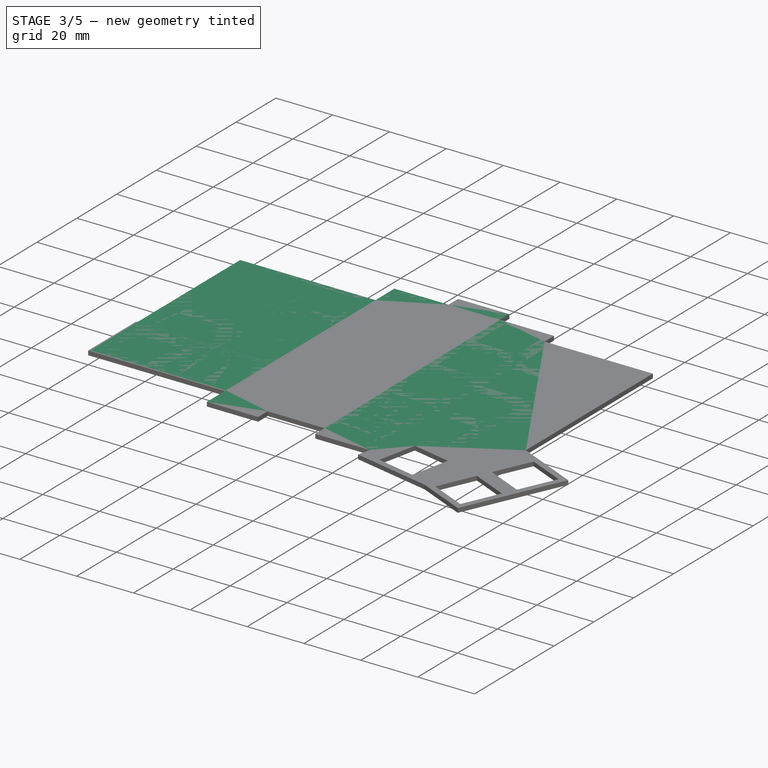
[diagram: stage 3 of 5 — iso view after this stage's code; geometry added in this stage tinted green]
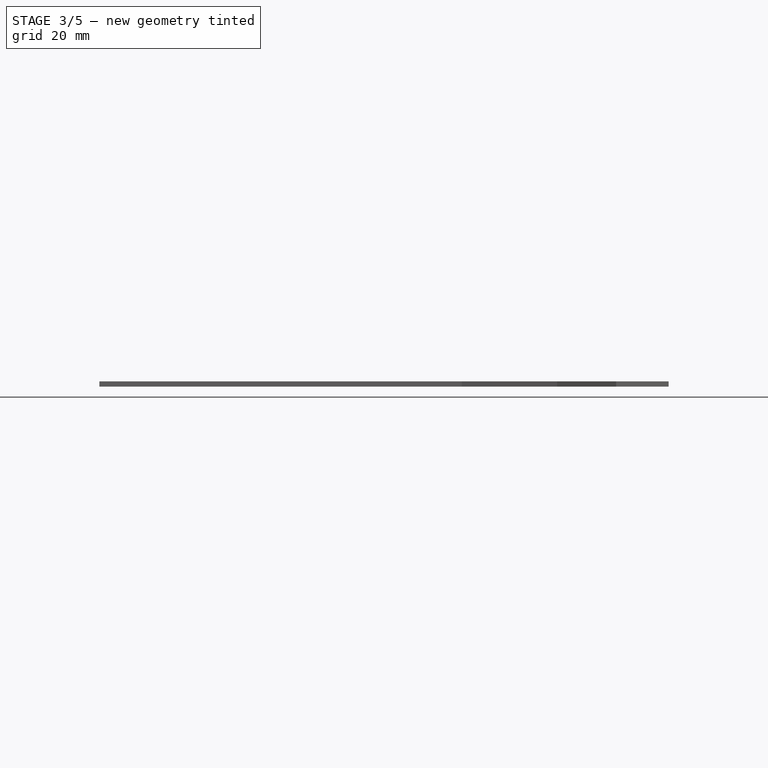
[diagram: stage 3 of 5 — front view after this stage's code; geometry added in this stage tinted green]
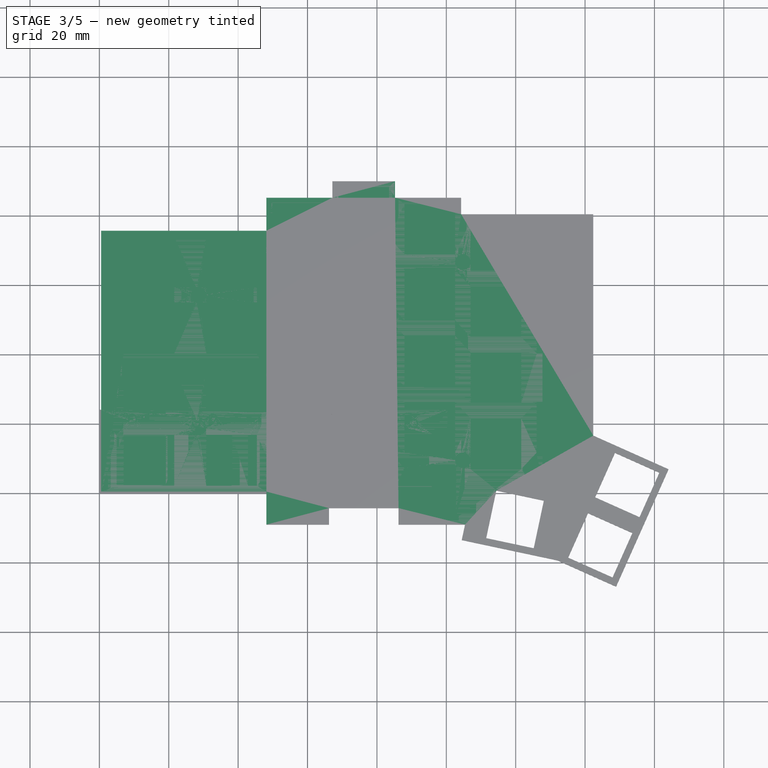
[diagram: stage 3 of 5 — top view after this stage's code; geometry added in this stage tinted green]
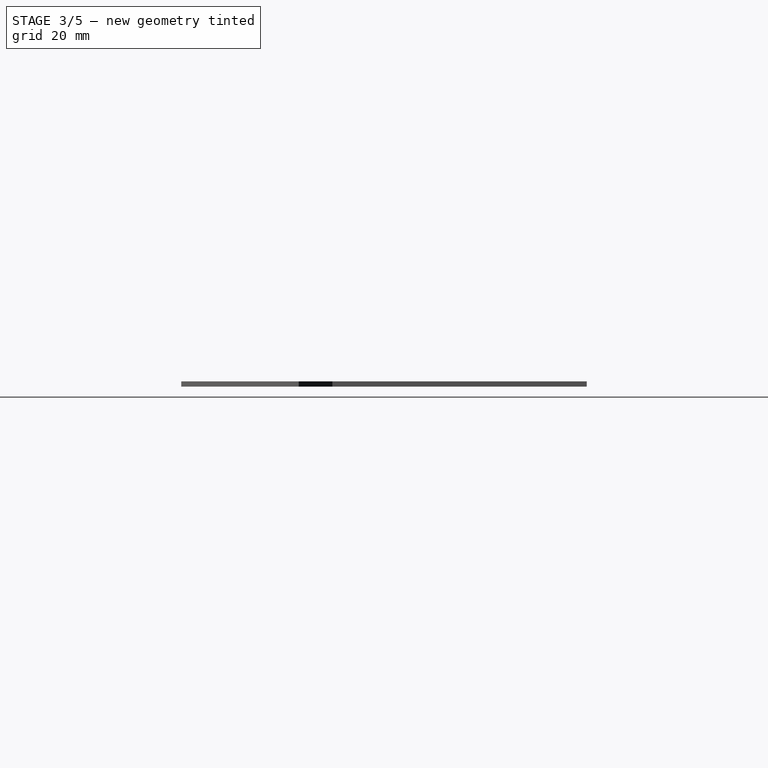
[diagram: stage 3 of 5 — right view after this stage's code; geometry added in this stage tinted green]
FEATURE [Spreadsheet::Sheet] Spreadsheet001  label="Constants_ortho"
  cells = A1=grid; B1(grid)=19.05; C1=hole; D1(hole)=14; E1=spacing; F1(spacing)==grid - hole; A2=edge; B2(edge)=4; C2=hole_base; D2(hole_base)=14; A3=mod_units; B3(mod_units)=1.5; A5=plate; D5=case; A6=thickness; B6(thickness)=1.5; D6=highprofile; E6(highprofile)==11.6 + 1.6; A7=margin (to case); B7(margin)=0.5; D7=platetopcb; E7(platetopcb)=0; F7=6.6 for plate screw; A8=platehole; B8(platehole)=4.5; D8=space_min; E8(space_min)=1; F8=8,5 for plate screw; G8=postcone; H8(postcone)=0.2; A9=holemargin; B9(holemargin)=0.3; D9=postdiameter; E9(postdiameter)=5; F9=posthole; G9(posthole)=2.9; D10=angle; E10(angle)=6; A11=weight; D11=brim; E11(brim)==1.75 + 1.25; A12=weight_diameter; B12(weight_diameter)=40; D12=clearance; E12(clearance)=0.75; D13=port_position; E13(port_position)=2; A14=pluckey; A15=angle_lashes; B15(angle_lashes)=42
FEATURE [Sketcher::SketchObject] Sketch019  label="plate_w_margin001"
  FullyConstrained = true
  expr: Constraints[215] = <<Constants_ortho>>.margin
  expr: Constraints[214] = <<Constants_ortho>>.margin
  expr: Constraints[197] = <<Constants_ortho>>.margin
  expr: Constraints[212] = <<Constants_ortho>>.margin
  expr: Constraints[210] = <<Constants_ortho>>.margin
  expr: Constraints[216] = <<Constants_ortho>>.margin
  expr: Constraints[201] = <<Constants_ortho>>.margin
  expr: Constraints[206] = <<Constants_ortho>>.margin
  expr: Constraints[203] = <<Constants_ortho>>.margin
  expr: Constraints[209] = <<Constants_ortho>>.margin
  expr: Constraints[200] = <<Constants_ortho>>.margin
  expr: Constraints[199] = <<Constants_ortho>>.margin
  expr: Constraints[196] = <<Constants_ortho>>.margin
  expr: Constraints[198] = <<Constants_ortho>>.margin
  expr: Constraints[195] = <<Constants_ortho>>.margin
  expr: Constraints[194] = <<Constants_ortho>>.margin
  expr: Constraints[193] = <<Constants_ortho>>.margin
  expr: Constraints[77] = Spreadsheet001.grid
  expr: Constraints[2] = 4 * Spreadsheet001.grid
  expr: Constraints[5] = (Spreadsheet001.mod_units + 1) * Spreadsheet001.grid
  expr: Constraints[72] = Spreadsheet001.grid
  expr: Constraints[127] = Spreadsheet001.spacing / 2
  expr: Constraints[204] = <<Constants_ortho>>.margin
  expr: Constraints[26] = Spreadsheet001.grid / 2
  expr: Constraints[95] = 0.75 * Spreadsheet001.grid - Spreadsheet001.hole / 2
  expr: Constraints[122] = Spreadsheet001.hole
  expr: Constraints[28] = Spreadsheet001.grid * 2
  expr: Constraints[25] = Spreadsheet001.grid / 4
  expr: Constraints[51] = Spreadsheet001.grid * 1.5
  expr: Constraints[211] = <<Constants_ortho>>.margin
  expr: Constraints[94] = Spreadsheet001.spacing / 2
  expr: Constraints[78] = 180 - 12.08569093596732
  expr: Constraints[90] = Spreadsheet001.hole
  expr: Constraints[207] = <<Constants_ortho>>.margin
  expr: Constraints[79] = Spreadsheet001.grid - 14.60669124913411
  expr: Constraints[213] = <<Constants_ortho>>.margin
  expr: Constraints[52] = Spreadsheet001.grid
  expr: Constraints[61] = 78°
  expr: Constraints[69] = Spreadsheet001.grid
  expr: Constraints[126] = Spreadsheet001.spacing / 2
  expr: Constraints[124] = Spreadsheet001.grid / 2
  expr: Constraints[208] = <<Constants_ortho>>.margin
  expr: Constraints[128] = Spreadsheet001.spacing / 2
  expr: Constraints[64] = Spreadsheet001.mod_units * Spreadsheet001.grid / 2
  expr: Constraints[129] = Spreadsheet001.spacing / 2
  expr: Constraints[67] = Spreadsheet001.grid
  expr: Constraints[70] = Spreadsheet001.grid * Spreadsheet001.mod_units + Spreadsheet001.grid / 2
  expr: Constraints[75] = Spreadsheet001.grid
  expr: Constraints[22] = Spreadsheet001.grid
  expr: Constraints[205] = <<Constants_ortho>>.margin
  expr: Constraints[53] = Spreadsheet001.grid * 2
  sketch-geometry (72):
    g0: LineSegment StartX=104.775 StartY=-9.525 StartZ=0 EndX=103.851 EndY=-13.8712 EndZ=0
    g1: LineSegment StartX=0 StartY=0 StartZ=0 EndX=0 EndY=76.2 EndZ=0
    g2: LineSegment StartX=0 StartY=76.2 StartZ=0 EndX=47.625 EndY=76.2 EndZ=0
    g3: LineSegment StartX=47.625 StartY=76.2 StartZ=0 EndX=47.625 EndY=85.725 EndZ=0
    g4: LineSegment StartX=47.625 StartY=85.725 StartZ=0 EndX=66.675 EndY=85.725 EndZ=0
    g5: LineSegment StartX=66.675 StartY=85.725 StartZ=0 EndX=66.675 EndY=90.4875 EndZ=0
    g6: LineSegment StartX=66.675 StartY=90.4875 StartZ=0 EndX=85.725 EndY=90.4875 EndZ=0
    g7: LineSegment StartX=85.725 StartY=90.4875 StartZ=0 EndX=85.725 EndY=85.725 EndZ=0
    g8: LineSegment StartX=85.725 StartY=85.725 StartZ=0 EndX=104.775 EndY=85.725 EndZ=0
    g9: LineSegment StartX=104.775 StartY=85.725 StartZ=0 EndX=104.775 EndY=80.9625 EndZ=0
    g10: LineSegment StartX=104.775 StartY=80.9625 StartZ=0 EndX=142.875 EndY=80.9625 EndZ=0
    g11: LineSegment StartX=142.875 StartY=80.9625 StartZ=0 EndX=142.875 EndY=16.9712 EndZ=0
    g12: LineSegment StartX=0 StartY=0 StartZ=0 EndX=47.625 EndY=0 EndZ=0
    g13: LineSegment StartX=47.625 StartY=0 StartZ=0 EndX=47.625 EndY=-9.525 EndZ=0
    g14: LineSegment StartX=47.625 StartY=-9.525 StartZ=0 EndX=66.675 EndY=-9.525 EndZ=0
    g15: LineSegment StartX=66.675 StartY=-9.525 StartZ=0 EndX=66.675 EndY=-4.7625 EndZ=0
    g16: LineSegment StartX=66.675 StartY=-4.7625 StartZ=0 EndX=85.725 EndY=-4.7625 EndZ=0
    g17: LineSegment StartX=85.725 StartY=-4.7625 StartZ=0 EndX=85.725 EndY=-9.525 EndZ=0
    g18: LineSegment StartX=164.742 StartY=7.19623 StartZ=0 EndX=149.193 EndY=-27.5866 EndZ=0
    g19: LineSegment StartX=149.193 StartY=-27.5866 StartZ=0 EndX=131.802 EndY=-19.8123 EndZ=0
    g20: LineSegment StartX=131.802 StartY=-19.8123 StartZ=0 EndX=103.851 EndY=-13.8712 EndZ=0
    g21: LineSegment StartX=164.742 StartY=7.19623 StartZ=0 EndX=142.875 EndY=16.9712 EndZ=0
    g22: LineSegment StartX=85.725 StartY=-9.525 StartZ=0 EndX=104.775 EndY=-9.525 EndZ=0
    g23: LineSegment StartX=14.2875 StartY=76.2 StartZ=0 EndX=14.2875 EndY=0 EndZ=0
    g24: LineSegment StartX=38.1 StartY=76.2 StartZ=0 EndX=38.1 EndY=0 EndZ=0
    g25: LineSegment StartX=57.15 StartY=85.725 StartZ=0 EndX=57.15 EndY=-9.525 EndZ=0
    g26: LineSegment StartX=76.2 StartY=90.4875 StartZ=0 EndX=76.2 EndY=-4.7625 EndZ=0
    g27: LineSegment StartX=95.25 StartY=85.725 StartZ=0 EndX=95.25 EndY=-9.525 EndZ=0
    g28: LineSegment StartX=114.3 StartY=80.9625 StartZ=0 EndX=114.3 EndY=-9.525 EndZ=0
    g29: LineSegment StartX=133.35 StartY=80.9625 StartZ=0 EndX=133.35 EndY=-9.525 EndZ=0
    g30: LineSegment StartX=111.504 StartY=-12.9165 StartZ=0 EndX=125.198 EndY=-15.8273 EndZ=0
    g31: LineSegment StartX=125.198 StartY=-15.8273 StartZ=0 EndX=128.109 EndY=-2.13324 EndZ=0
    g32: LineSegment StartX=128.109 StartY=-2.13324 StartZ=0 EndX=114.415 EndY=0.777521 EndZ=0
    g33: LineSegment StartX=114.415 StartY=0.777521 StartZ=0 EndX=111.504 EndY=-12.9165 EndZ=0
    g34: LineSegment StartX=114.415 StartY=0.777521 StartZ=0 EndX=125.198 EndY=-15.8273 EndZ=0
    g35: LineSegment StartX=111.504 StartY=-12.9165 StartZ=0 EndX=128.109 EndY=-2.13324 EndZ=0
    g36: LineSegment StartX=135.137 StartY=-18.5376 StartZ=0 EndX=147.918 EndY=-24.251 EndZ=0
    g37: LineSegment StartX=147.918 StartY=-24.251 StartZ=0 EndX=153.632 EndY=-11.4699 EndZ=0
    g38: LineSegment StartX=153.632 StartY=-11.4699 StartZ=0 EndX=140.851 EndY=-5.75648 EndZ=0
    g39: LineSegment StartX=140.851 StartY=-5.75648 StartZ=0 EndX=135.137 EndY=-18.5376 EndZ=0
    g40: LineSegment StartX=140.851 StartY=-5.75648 StartZ=0 EndX=147.918 EndY=-24.251 EndZ=0
    g41: LineSegment StartX=135.137 StartY=-18.5376 StartZ=0 EndX=153.632 EndY=-11.4699 EndZ=0
    g42: LineSegment StartX=142.912 StartY=-1.14615 StartZ=0 EndX=155.693 EndY=-6.85959 EndZ=0
    g43: LineSegment StartX=155.693 StartY=-6.85959 StartZ=0 EndX=161.406 EndY=5.92152 EndZ=0
    g44: LineSegment StartX=161.406 StartY=5.92152 StartZ=0 EndX=148.625 EndY=11.6349 EndZ=0
    g45: LineSegment StartX=148.625 StartY=11.6349 StartZ=0 EndX=142.912 EndY=-1.14615 EndZ=0
    g46: LineSegment StartX=148.625 StartY=11.6349 StartZ=0 EndX=155.693 EndY=-6.85959 EndZ=0
    g47: LineSegment StartX=142.912 StartY=-1.14615 StartZ=0 EndX=161.406 EndY=5.92152 EndZ=0
    g48: LineSegment StartX=140.497 StartY=-23.6995 StartZ=0 EndX=156.046 EndY=11.0834 EndZ=0
    g49: LineSegment StartX=0.5 StartY=75.7 StartZ=0 EndX=48.125 EndY=75.7 EndZ=0
    g50: LineSegment StartX=48.125 StartY=75.7 StartZ=0 EndX=48.125 EndY=85.225 EndZ=0
    g51: LineSegment StartX=48.125 StartY=85.225 StartZ=0 EndX=67.175 EndY=85.225 EndZ=0
    g52: LineSegment StartX=67.175 StartY=85.225 StartZ=0 EndX=67.175 EndY=89.9875 EndZ=0
    g53: LineSegment StartX=67.175 StartY=89.9875 StartZ=0 EndX=85.225 EndY=89.9875 EndZ=0
    g54: LineSegment StartX=85.225 StartY=89.9875 StartZ=0 EndX=85.225 EndY=85.225 EndZ=0
    g55: LineSegment StartX=85.225 StartY=85.225 StartZ=0 EndX=104.275 EndY=85.225 EndZ=0
    g56: LineSegment StartX=104.275 StartY=85.225 StartZ=0 EndX=104.275 EndY=80.4625 EndZ=0
    g57: LineSegment StartX=104.275 StartY=80.4625 StartZ=0 EndX=142.375 EndY=80.4625 EndZ=0
    g58: LineSegment StartX=142.375 StartY=80.4625 StartZ=0 EndX=142.375 EndY=16.647 EndZ=0
    g59: LineSegment StartX=142.375 StartY=16.647 StartZ=0 EndX=164.081 EndY=6.94381 EndZ=0
    g60: LineSegment StartX=164.081 StartY=6.94381 StartZ=0 EndX=148.941 EndY=-26.9261 EndZ=0
    g61: LineSegment StartX=148.941 StartY=-26.9261 StartZ=0 EndX=131.957 EndY=-19.3342 EndZ=0
    g62: LineSegment StartX=131.957 StartY=-19.3342 StartZ=0 EndX=104.444 EndY=-13.4861 EndZ=0
    g63: LineSegment StartX=104.444 StartY=-13.4861 StartZ=0 EndX=105.392 EndY=-9.025 EndZ=0
    g64: LineSegment StartX=105.392 StartY=-9.025 StartZ=0 EndX=86.225 EndY=-9.025 EndZ=0
    g65: LineSegment StartX=86.225 StartY=-9.025 StartZ=0 EndX=86.225 EndY=-4.2625 EndZ=0
    g66: LineSegment StartX=86.225 StartY=-4.2625 StartZ=0 EndX=66.175 EndY=-4.2625 EndZ=0
    g67: LineSegment StartX=66.175 StartY=-4.2625 StartZ=0 EndX=66.175 EndY=-9.025 EndZ=0
    g68: LineSegment StartX=66.175 StartY=-9.025 StartZ=0 EndX=48.125 EndY=-9.025 EndZ=0
    g69: LineSegment StartX=48.125 StartY=-9.025 StartZ=0 EndX=48.125 EndY=0.5 EndZ=0
    g70: LineSegment StartX=48.125 StartY=0.5 StartZ=0 EndX=0.5 EndY=0.5 EndZ=0
    g71: LineSegment StartX=0.5 StartY=0.5 StartZ=0 EndX=0.5 EndY=75.7 EndZ=0
  constraints (217):
    c: Coincident(g1,g-1)
    c: Vertical(g1)
    c: DistanceY(g1,g1) = 76.2
    c: Horizontal(g2)
    c: Coincident(g2,g1)
    c: DistanceX(g2,g2) = 47.625
    c: Coincident(g3,g4)
    c: Coincident(g4,g5)
    c: Coincident(g5,g6)
    c: Coincident(g6,g7)
    c: Coincident(g8,g9)
    c: Coincident(g9,g10)
    c: Coincident(g10,g11)
    c: Vertical(g3)
    c: Vertical(g5)
    c: Vertical(g7)
    c: Vertical(g9)
    c: Vertical(g11)
    c: Horizontal(g4)
    c: Horizontal(g6)
    c: Horizontal(g8)
    c: Horizontal(g10)
    c: DistanceX(g6,g6) = 19.05
    c: Equal(g4,g8)
    c: Equal(g8,g6)
    c: DistanceY(g5,g5) = 4.7625
    c: DistanceY(g3,g3) = 9.525
    c: Equal(g9,g7)
    c: DistanceX(g10,g10) = 38.1
    c: Coincident(g2,g3)
    c: Equal(g5,g7)
    c: Coincident(g12,g13)
    c: Coincident(g13,g14)
    c: Coincident(g14,g15)
    c: Coincident(g15,g16)
    c: Coincident(g16,g17)
    c: Equal(g12,g2)
    c: Horizontal(g12)
    c: Equal(g3,g13)
    c: Vertical(g13)
    c: Vertical(g15)
    c: Vertical(g17)
    c: Horizontal(g14)
    c: Horizontal(g16)
    c: Equal(g15,g17)
    c: Equal(g17,g5)
    c: Equal(g14,g4)
    c: Equal(g16,g6)
    c: Coincident(g1,g12)
    c: Coincident(g18,g19)
    c: Coincident(g19,g20)
    c: Distance(g20) = 28.575
    c: Distance(g19) = 19.05
    c: Distance(g18) = 38.1
    c: Perpendicular(g18,g19)
    c: Perpendicular(g21,g18)
    c: Coincident(g11,g21)
    c: Coincident(g17,g22)
    c: Equal(g22,g16)
    c: Horizontal(g22)
    c: Coincident(g22,g0)
    c: Angle(g22,g0) = 1.36136
    c: Coincident(g20,g0)
    c: Perpendicular(g20,g0)
    c: DistanceX(g1,g23) = 14.2875
    c: Vertical(g24)
    c: Vertical(g25)
    c: DistanceX(g24,g25) = 19.05
    c: Vertical(g26)
    c: DistanceX(g25,g26) = 19.05
    c: DistanceX(g1,g24) = 38.1
    c: Vertical(g27)
    c: DistanceX(g26,g27) = 19.05
    c: Coincident(g7,g8)
    c: Vertical(g28)
    c: DistanceX(g27,g28) = 19.05
    c: Vertical(g29)
    c: DistanceX(g28,g29) = 19.05
    c: Angle(g20,g19) = 2.93066
    c: Distance(g0) = 4.44331
    c: Coincident(g30,g31)
    c: Coincident(g31,g32)
    c: Coincident(g32,g33)
    c: Coincident(g33,g30)
    c: Perpendicular(g35,g34)
    c: Coincident(g35,g31)
    c: Coincident(g34,g32)
    c: Coincident(g35,g30)
    c: Coincident(g34,g30)
    c: Parallel(g30,g20)
    c: Distance(g30) = 14
    c: Perpendicular(g33,g30)
    c: Equal(g30,g32)
    c: Parallel(g32,g30)
    c: Distance(g0,g30) = 2.525
    c: Distance(g0,g33) = 7.2875
    c: Coincident(g36,g37)
    c: Coincident(g37,g38)
    c: Coincident(g38,g39)
    c: Coincident(g39,g36)
    c: Perpendicular(g41,g40)
    c: Coincident(g41,g37)
    c: Coincident(g40,g38)
    c: Coincident(g41,g36)
    c: Coincident(g40,g36)
    c: Coincident(g42,g43)
    c: Coincident(g43,g44)
    c: Coincident(g44,g45)
    c: Coincident(g45,g42)
    c: Perpendicular(g47,g46)
    c: Coincident(g47,g43)
    c: Coincident(g46,g44)
    c: Coincident(g47,g42)
    c: Coincident(g46,g42)
    c: Equal(g36,g42)
    c: Perpendicular(g44,g45)
    c: Perpendicular(g45,g42)
    c: Perpendicular(g38,g39)
    c: Perpendicular(g39,g36)
    c: Parallel(g36,g19)
    c: Parallel(g42,g36)
    c: Parallel(g37,g39)
    c: Distance(g36) = 14
    c: Parallel(g48,g18)
    c: Distance(g18,g48) = 9.525
    c: Equal(g45,g43)
    c: Distance(g18,g36) = 2.525
    c: Distance(g18,g37) = 2.525
    c: Distance(g18,g44) = 2.525
    c: Distance(g18,g43) = 2.525
    c: Coincident(g18,g21)
    c: Horizontal(g23,g-1)
    c: Horizontal(g23,g1)
    c: Vertical(g23)
    c: Horizontal(g24,g2)
    c: Horizontal(g12,g24)
    c: Horizontal(g25,g13)
    c: Horizontal(g3,g25)
    c: Horizontal(g5,g26)
    c: Horizontal(g7,g27)
    c: Horizontal(g9,g28)
    c: Horizontal(g9,g29)
    c: Horizontal(g27,g17)
    c: Horizontal(g26,g15)
    c: Horizontal(g28,g0)
    c: Horizontal(g29,g0)
    c: Equal(g48,g18)
    c: PointOnObject(g48,g19)
    c: Coincident(g49,g50)
    c: Coincident(g50,g51)
    c: Coincident(g51,g52)
    c: Coincident(g52,g53)
    c: Coincident(g53,g54)
    c: Coincident(g54,g55)
    c: Coincident(g55,g56)
    c: Coincident(g56,g57)
    c: Coincident(g57,g58)
    c: Coincident(g58,g59)
    c: Coincident(g59,g60)
    c: Coincident(g60,g61)
    c: Coincident(g61,g62)
    c: Coincident(g62,g63)
    c: Coincident(g63,g64)
    c: Coincident(g64,g65)
    c: Coincident(g65,g66)
    c: Coincident(g66,g67)
    c: Coincident(g67,g68)
    c: Coincident(g68,g69)
    c: Coincident(g69,g70)
    c: Coincident(g70,g71)
    c: Coincident(g71,g49)
    c: Parallel(g49,g2)
    c: Parallel(g50,g3)
    c: Parallel(g51,g4)
    c: Parallel(g52,g5)
    c: Parallel(g53,g6)
    c: Parallel(g54,g7)
    c: Parallel(g55,g8)
    c: Parallel(g56,g9)
    c: Parallel(g57,g10)
    c: Parallel(g58,g11)
    c: Parallel(g59,g21)
    c: Parallel(g60,g18)
    c: Parallel(g19,g61)
    c: Parallel(g20,g62)
    c: Parallel(g0,g63)
    c: Parallel(g22,g64)
    c: Parallel(g17,g65)
    c: Parallel(g16,g66)
    c: Parallel(g67,g15)
    c: Parallel(g14,g68)
    c: Parallel(g13,g69)
    c: Parallel(g12,g70)
    c: DistanceY(g-1,g70) = 0.5
    c: DistanceX(g-1,g70) = 0.5
    c: DistanceX(g1,g49) = 0.5
    c: DistanceY(g49,g1) = 0.5
    c: DistanceX(g2,g49) = 0.5
    c: DistanceY(g50,g3) = 0.5
    c: DistanceX(g4,g51) = 0.5
    c: DistanceY(g52,g5) = 0.5
    c: DistanceX(g53,g6) = 0.5
    c: Horizontal(g54,g51)
    c: DistanceX(g55,g8) = 0.5
    c: DistanceY(g56,g9) = 0.5
    c: DistanceX(g57,g10) = 0.5
    c: Distance(g59,g21) = 0.5
    c: Distance(g59,g18) = 0.5
    c: Distance(g60,g19) = 0.5
    c: Distance(g62,g20) = 0.5
    c: Distance(g62,g0) = 0.5
    c: DistanceX(g12,g69) = 0.5
    c: DistanceY(g13,g68) = 0.5
    c: DistanceX(g67,g14) = 0.5
    c: DistanceY(g15,g66) = 0.5
    c: DistanceX(g16,g65) = 0.5
    c: DistanceY(g17,g64) = 0.5
FEATURE [PartDesign::Pad] Pad002
  Direction = (1,1,1)
  Length = 1.5
  Length2 = 100
  Profile = -> Sketch019
  Type = 0
  expr: Length = Spreadsheet001.thickness
FEATURE [Sketcher::SketchObject] Sketch028  label="tolerances"
  ExternalGeometry = -> [Pad003]
  FullyConstrained = true
  MapMode = 5
  Placement = pos=(0,0,1.5) rot=(0,0,1;0rad)
  Support = -> [Pad003]
  expr: Constraints[41] = 0.1
  sketch-geometry (20):
    g0: LineSegment StartX=4.95 StartY=16.625 StartZ=0 EndX=19.15 EndY=16.625 EndZ=0
    g1: LineSegment StartX=19.15 StartY=16.625 StartZ=0 EndX=19.15 EndY=2.425 EndZ=0
    g2: LineSegment StartX=19.15 StartY=2.425 StartZ=0 EndX=4.95 EndY=2.425 EndZ=0
    g3: LineSegment StartX=4.95 StartY=2.425 StartZ=0 EndX=4.95 EndY=16.625 EndZ=0
    g4: LineSegment StartX=23.9 StartY=16.725 StartZ=0 EndX=38.3 EndY=16.725 EndZ=0
    g5: LineSegment StartX=38.3 StartY=16.725 StartZ=0 EndX=38.3 EndY=2.325 EndZ=0
    g6: LineSegment StartX=38.3 StartY=2.325 StartZ=0 EndX=23.9 EndY=2.325 EndZ=0
    g7: LineSegment StartX=23.9 StartY=2.325 StartZ=0 EndX=23.9 EndY=16.725 EndZ=0
    g8: LineSegment StartX=42.85 StartY=16.825 StartZ=0 EndX=57.45 EndY=16.825 EndZ=0
    g9: LineSegment StartX=57.45 StartY=16.825 StartZ=0 EndX=57.45 EndY=2.225 EndZ=0
    g10: LineSegment StartX=57.45 StartY=2.225 StartZ=0 EndX=42.85 EndY=2.225 EndZ=0
    g11: LineSegment StartX=42.85 StartY=2.225 StartZ=0 EndX=42.85 EndY=16.825 EndZ=0
    g12: LineSegment StartX=61.8 StartY=16.925 StartZ=0 EndX=76.6 EndY=16.925 EndZ=0
    g13: LineSegment StartX=76.6 StartY=16.925 StartZ=0 EndX=76.6 EndY=2.125 EndZ=0
    g14: LineSegment StartX=76.6 StartY=2.125 StartZ=0 EndX=61.8 EndY=2.125 EndZ=0
    g15: LineSegment StartX=61.8 StartY=2.125 StartZ=0 EndX=61.8 EndY=16.925 EndZ=0
    g16: LineSegment StartX=80.75 StartY=17.025 StartZ=0 EndX=95.75 EndY=17.025 EndZ=0
    g17: LineSegment StartX=95.75 StartY=17.025 StartZ=0 EndX=95.75 EndY=2.025 EndZ=0
    g18: LineSegment StartX=95.75 StartY=2.025 StartZ=0 EndX=80.75 EndY=2.025 EndZ=0
    g19: LineSegment StartX=80.75 StartY=2.025 StartZ=0 EndX=80.75 EndY=17.025 EndZ=0
  constraints (60):
    c: Coincident(g0,g1)
    c: Coincident(g1,g2)
    c: Coincident(g2,g3)
    c: Coincident(g3,g0)
    c: Horizontal(g0)
    c: Horizontal(g2)
    c: Vertical(g1)
    c: Vertical(g3)
    c: Coincident(g4,g5)
    c: Coincident(g5,g6)
    c: Coincident(g6,g7)
    c: Coincident(g7,g4)
    c: Horizontal(g4)
    c: Horizontal(g6)
    c: Vertical(g5)
    c: Vertical(g7)
    c: Coincident(g8,g9)
    c: Coincident(g9,g10)
    c: Coincident(g10,g11)
    c: Coincident(g11,g8)
    c: Horizontal(g8)
    c: Horizontal(g10)
    c: Vertical(g9)
    c: Vertical(g11)
    c: Coincident(g12,g13)
    c: Coincident(g13,g14)
    c: Coincident(g14,g15)
    c: Coincident(g15,g12)
    c: Horizontal(g12)
    c: Horizontal(g14)
    c: Vertical(g13)
    c: Vertical(g15)
    c: Coincident(g16,g17)
    c: Coincident(g17,g18)
    c: Coincident(g18,g19)
    c: Coincident(g19,g16)
    c: Horizontal(g16)
    c: Horizontal(g18)
    c: Vertical(g17)
    c: Vertical(g19)
    c: DistanceY(g-4,g0) = 0.1
    c: DistanceX(g0,g-4) = 0.1
    c: DistanceX(g-6,g0) = 0.1
    c: DistanceY(g2,g-5) = 0.1
    c: DistanceX(g4,g-8) = 0.2
    c: DistanceX(g-9,g4) = 0.2
    c: DistanceY(g-8,g4) = 0.2
    c: DistanceY(g6,g-10) = 0.2
    c: DistanceY(g-12,g8) = 0.3
    c: DistanceX(g8,g-12) = 0.3
    c: DistanceX(g-13,g8) = 0.3
    c: DistanceY(g10,g-14) = 0.3
    c: DistanceX(g12,g-16) = 0.4
    c: DistanceX(g-17,g12) = 0.4
    c: DistanceY(g14,g-18) = 0.4
    c: DistanceY(g-16,g12) = 0.4
    c: DistanceX(g16,g-20) = 0.5
    c: DistanceY(g-20,g16) = 0.5
    c: DistanceX(g-21,g16) = 0.5
    c: DistanceY(g18,g-22) = 0.5
FEATURE [PartDesign::Pocket] Pocket010
  BaseFeature = -> Pad003
  Length = 5
  Length2 = 100
  Profile = -> Sketch028
  Type = 0
FEATURE [Part::Cut] Cut  label="tolerance tester"
  Base = -> Body003
  Tool = -> Extrude
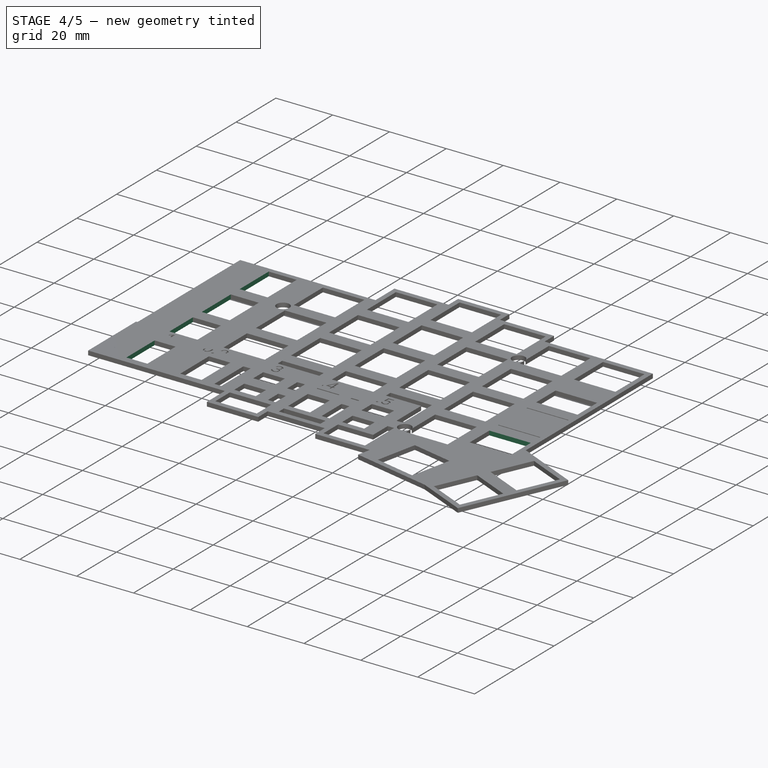
[diagram: stage 4 of 5 — iso view after this stage's code; geometry added in this stage tinted green]
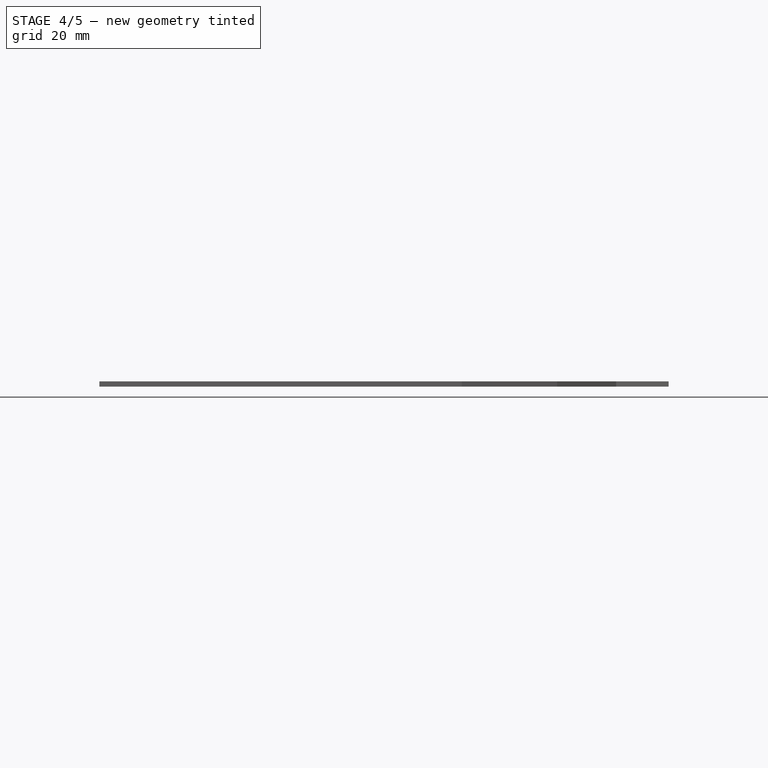
[diagram: stage 4 of 5 — front view after this stage's code; geometry added in this stage tinted green]
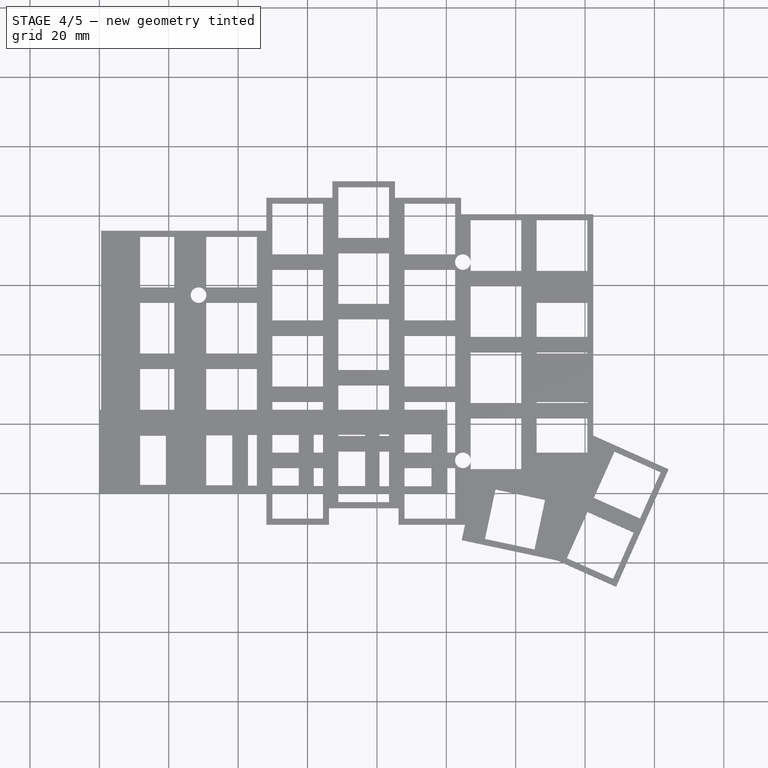
[diagram: stage 4 of 5 — top view after this stage's code; geometry added in this stage tinted green]
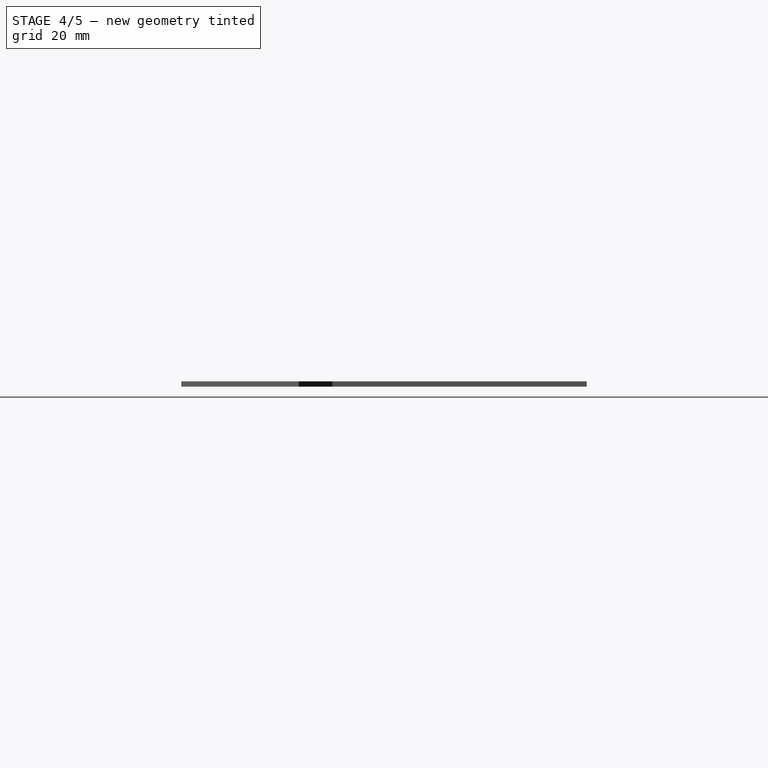
[diagram: stage 4 of 5 — right view after this stage's code; geometry added in this stage tinted green]
FEATURE [Sketcher::SketchObject] Sketch020  label="switch_holes001"
  FullyConstrained = false
  MapMode = 5
  Placement = pos=(0,0,1.5) rot=(0,0,1;0rad)
  Support = -> [Pad002]
  expr: Constraints[381] = <<Constants_ortho>>.hole
  expr: Constraints[7] = <<Constants_ortho>>.grid
  expr: Constraints[13] = <<Constants_ortho>>.grid
  expr: Constraints[366] = <<Constants_ortho>>.grid / 4 + <<Constants_ortho>>.spacing / 2
  expr: Constraints[364] = <<Constants_ortho>>.grid / 4 - <<Constants_ortho>>.spacing / 2
  expr: Constraints[356] = <<Constants_ortho>>.spacing / 2
  expr: Constraints[358] = <<Constants_ortho>>.grid / 2 - <<Constants_ortho>>.spacing / 2
  expr: Constraints[60] = <<Constants_ortho>>.hole
  expr: Constraints[59] = <<Constants_ortho>>.spacing
  expr: Constraints[58] = <<Constants_ortho>>.spacing
  expr: Constraints[161] = <<Constants_ortho>>.spacing
  expr: Constraints[15] = <<Constants_ortho>>.grid
  expr: Constraints[2] = (0.5 + <<Constants_ortho>>.mod_units) * <<Constants_ortho>>.grid
  expr: Constraints[5] = 0.5 * (1 + <<Constants_ortho>>.mod_units) * <<Constants_ortho>>.grid
  expr: Constraints[57] = <<Constants_ortho>>.spacing
  expr: Constraints[11] = <<Constants_ortho>>.grid
  expr: Constraints[9] = <<Constants_ortho>>.grid
  sketch-geometry (131):
    g0: LineSegment StartX=38.1 StartY=0 StartZ=0 EndX=38.1 EndY=96.2556 EndZ=0
    g1: LineSegment StartX=14.2875 StartY=0 StartZ=0 EndX=14.2875 EndY=96.8335 EndZ=0
    g2: LineSegment StartX=57.15 StartY=-9.1419 StartZ=0 EndX=57.15 EndY=87.1129 EndZ=0
    g3: LineSegment StartX=76.2 StartY=-4.2747 StartZ=0 EndX=76.2 EndY=91.9809 EndZ=0
    g4: LineSegment StartX=95.25 StartY=-8.95511 StartZ=0 EndX=95.25 EndY=87.3005 EndZ=0
    g5: LineSegment StartX=114.3 StartY=-8.94744 StartZ=0 EndX=114.3 EndY=87.2928 EndZ=0
    g6: LineSegment StartX=133.35 StartY=-7.45738 StartZ=0 EndX=133.35 EndY=88.7982 EndZ=0
    g7: LineSegment StartX=7.2875 StartY=16.525 StartZ=0 EndX=21.2875 EndY=16.525 EndZ=0
    g8: LineSegment StartX=21.2875 StartY=16.525 StartZ=0 EndX=21.2875 EndY=2.525 EndZ=0
    g9: LineSegment StartX=21.2875 StartY=2.525 StartZ=0 EndX=7.2875 EndY=2.525 EndZ=0
    g10: LineSegment StartX=7.2875 StartY=2.525 StartZ=0 EndX=7.2875 EndY=16.525 EndZ=0
    g11: LineSegment StartX=7.2875 StartY=35.575 StartZ=0 EndX=21.2875 EndY=35.575 EndZ=0
    g12: LineSegment StartX=21.2875 StartY=35.575 StartZ=0 EndX=21.2875 EndY=21.575 EndZ=0
    g13: LineSegment StartX=21.2875 StartY=21.575 StartZ=0 EndX=7.2875 EndY=21.575 EndZ=0
    g14: LineSegment StartX=7.2875 StartY=21.575 StartZ=0 EndX=7.2875 EndY=35.575 EndZ=0
    g15: LineSegment StartX=7.2875 StartY=54.625 StartZ=0 EndX=21.2875 EndY=54.625 EndZ=0
    g16: LineSegment StartX=21.2875 StartY=54.625 StartZ=0 EndX=21.2875 EndY=40.625 EndZ=0
    g17: LineSegment StartX=21.2875 StartY=40.625 StartZ=0 EndX=7.2875 EndY=40.625 EndZ=0
    g18: LineSegment StartX=7.2875 StartY=40.625 StartZ=0 EndX=7.2875 EndY=54.625 EndZ=0
    g19: LineSegment StartX=7.2875 StartY=73.675 StartZ=0 EndX=21.2875 EndY=73.675 EndZ=0
    g20: LineSegment StartX=21.2875 StartY=73.675 StartZ=0 EndX=21.2875 EndY=59.675 EndZ=0
    g21: LineSegment StartX=21.2875 StartY=59.675 StartZ=0 EndX=7.2875 EndY=59.675 EndZ=0
    g22: LineSegment StartX=7.2875 StartY=59.675 StartZ=0 EndX=7.2875 EndY=73.675 EndZ=0
    g23: LineSegment StartX=31.1 StartY=16.525 StartZ=0 EndX=45.1 EndY=16.525 EndZ=0
    g24: LineSegment StartX=45.1 StartY=16.525 StartZ=0 EndX=45.1 EndY=2.525 EndZ=0
    g25: LineSegment StartX=45.1 StartY=2.525 StartZ=0 EndX=31.1 EndY=2.525 EndZ=0
    g26: LineSegment StartX=31.1 StartY=2.525 StartZ=0 EndX=31.1 EndY=16.525 EndZ=0
    g27: LineSegment StartX=31.1 StartY=35.575 StartZ=0 EndX=45.1 EndY=35.575 EndZ=0
    g28: LineSegment StartX=45.1 StartY=35.575 StartZ=0 EndX=45.1 EndY=21.575 EndZ=0
    g29: LineSegment StartX=45.1 StartY=21.575 StartZ=0 EndX=31.1 EndY=21.575 EndZ=0
    g30: LineSegment StartX=31.1 StartY=21.575 StartZ=0 EndX=31.1 EndY=35.575 EndZ=0
    g31: LineSegment StartX=31.1 StartY=54.625 StartZ=0 EndX=45.1 EndY=54.625 EndZ=0
    g32: LineSegment StartX=45.1 StartY=54.625 StartZ=0 EndX=45.1 EndY=40.625 EndZ=0
    g33: LineSegment StartX=45.1 StartY=40.625 StartZ=0 EndX=31.1 EndY=40.625 EndZ=0
    g34: LineSegment StartX=31.1 StartY=40.625 StartZ=0 EndX=31.1 EndY=54.625 EndZ=0
    g35: LineSegment StartX=31.1 StartY=73.675 StartZ=0 EndX=45.1 EndY=73.675 EndZ=0
    g36: LineSegment StartX=45.1 StartY=73.675 StartZ=0 EndX=45.1 EndY=59.675 EndZ=0
    g37: LineSegment StartX=45.1 StartY=59.675 StartZ=0 EndX=31.1 EndY=59.675 EndZ=0
    g38: LineSegment StartX=31.1 StartY=59.675 StartZ=0 EndX=31.1 EndY=73.675 EndZ=0
    g39: LineSegment StartX=50.15 StartY=7 StartZ=0 EndX=64.15 EndY=7 EndZ=0
    g40: LineSegment StartX=64.15 StartY=7 StartZ=0 EndX=64.15 EndY=-7 EndZ=0
    g41: LineSegment StartX=64.15 StartY=-7 StartZ=0 EndX=50.15 EndY=-7 EndZ=0
    g42: LineSegment StartX=50.15 StartY=-7 StartZ=0 EndX=50.15 EndY=7 EndZ=0
    g43: LineSegment StartX=50.15 StartY=26.05 StartZ=0 EndX=64.15 EndY=26.05 EndZ=0
    g44: LineSegment StartX=64.15 StartY=26.05 StartZ=0 EndX=64.15 EndY=12.05 EndZ=0
    g45: LineSegment StartX=64.15 StartY=12.05 StartZ=0 EndX=50.15 EndY=12.05 EndZ=0
    g46: LineSegment StartX=50.15 StartY=12.05 StartZ=0 EndX=50.15 EndY=26.05 EndZ=0
    g47: LineSegment StartX=50.15 StartY=45.1 StartZ=0 EndX=64.15 EndY=45.1 EndZ=0
    g48: LineSegment StartX=64.15 StartY=45.1 StartZ=0 EndX=64.15 EndY=31.1 EndZ=0
    g49: LineSegment StartX=64.15 StartY=31.1 StartZ=0 EndX=50.15 EndY=31.1 EndZ=0
    g50: LineSegment StartX=50.15 StartY=31.1 StartZ=0 EndX=50.15 EndY=45.1 EndZ=0
    g51: LineSegment StartX=50.15 StartY=64.15 StartZ=0 EndX=64.15 EndY=64.15 EndZ=0
    g52: LineSegment StartX=64.15 StartY=64.15 StartZ=0 EndX=64.15 EndY=50.15 EndZ=0
    g53: LineSegment StartX=64.15 StartY=50.15 StartZ=0 EndX=50.15 EndY=50.15 EndZ=0
    g54: LineSegment StartX=50.15 StartY=50.15 StartZ=0 EndX=50.15 EndY=64.15 EndZ=0
    g55: LineSegment StartX=50.15 StartY=69.2 StartZ=0 EndX=64.15 EndY=69.2 EndZ=0
    g56: LineSegment StartX=64.15 StartY=69.2 StartZ=0 EndX=64.15 EndY=83.2 EndZ=0
    g57: LineSegment StartX=64.15 StartY=83.2 StartZ=0 EndX=50.15 EndY=83.2 EndZ=0
    g58: LineSegment StartX=50.15 StartY=83.2 StartZ=0 EndX=50.15 EndY=69.2 EndZ=0
    g59: LineSegment StartX=69.2 StartY=11.7625 StartZ=0 EndX=83.2 EndY=11.7625 EndZ=0
    g60: LineSegment StartX=83.2 StartY=11.7625 StartZ=0 EndX=83.2 EndY=-2.2375 EndZ=0
    g61: LineSegment StartX=83.2 StartY=-2.2375 StartZ=0 EndX=69.2 EndY=-2.2375 EndZ=0
    g62: LineSegment StartX=69.2 StartY=-2.2375 StartZ=0 EndX=69.2 EndY=11.7625 EndZ=0
    g63: LineSegment StartX=69.2 StartY=30.8125 StartZ=0 EndX=83.2 EndY=30.8125 EndZ=0
    g64: LineSegment StartX=83.2 StartY=30.8125 StartZ=0 EndX=83.2 EndY=16.8125 EndZ=0
    g65: LineSegment StartX=83.2 StartY=16.8125 StartZ=0 EndX=69.2 EndY=16.8125 EndZ=0
    g66: LineSegment StartX=69.2 StartY=16.8125 StartZ=0 EndX=69.2 EndY=30.8125 EndZ=0
    g67: LineSegment StartX=69.2 StartY=49.8625 StartZ=0 EndX=83.2 EndY=49.8625 EndZ=0
    g68: LineSegment StartX=83.2 StartY=49.8625 StartZ=0 EndX=83.2 EndY=35.8625 EndZ=0
    g69: LineSegment StartX=83.2 StartY=35.8625 StartZ=0 EndX=69.2 EndY=35.8625 EndZ=0
    g70: LineSegment StartX=69.2 StartY=35.8625 StartZ=0 EndX=69.2 EndY=49.8625 EndZ=0
    g71: LineSegment StartX=69.2 StartY=68.9125 StartZ=0 EndX=83.2 EndY=68.9125 EndZ=0
    g72: LineSegment StartX=83.2 StartY=68.9125 StartZ=0 EndX=83.2 EndY=54.9125 EndZ=0
    g73: LineSegment StartX=83.2 StartY=54.9125 StartZ=0 EndX=69.2 EndY=54.9125 EndZ=0
    g74: LineSegment StartX=69.2 StartY=54.9125 StartZ=0 EndX=69.2 EndY=68.9125 EndZ=0
    g75: LineSegment StartX=69.2 StartY=73.9625 StartZ=0 EndX=83.2 EndY=73.9625 EndZ=0
    g76: LineSegment StartX=83.2 StartY=73.9625 StartZ=0 EndX=83.2 EndY=87.9625 EndZ=0
    g77: LineSegment StartX=83.2 StartY=87.9625 StartZ=0 EndX=69.2 EndY=87.9625 EndZ=0
    g78: LineSegment StartX=69.2 StartY=87.9625 StartZ=0 EndX=69.2 EndY=73.9625 EndZ=0
    g79: LineSegment StartX=88.25 StartY=7 StartZ=0 EndX=102.25 EndY=7 EndZ=0
    g80: LineSegment StartX=102.25 StartY=7 StartZ=0 EndX=102.25 EndY=-7 EndZ=0
    g81: LineSegment StartX=102.25 StartY=-7 StartZ=0 EndX=88.25 EndY=-7 EndZ=0
    g82: LineSegment StartX=88.25 StartY=-7 StartZ=0 EndX=88.25 EndY=7 EndZ=0
    g83: LineSegment StartX=88.25 StartY=26.05 StartZ=0 EndX=102.25 EndY=26.05 EndZ=0
    g84: LineSegment StartX=102.25 StartY=26.05 StartZ=0 EndX=102.25 EndY=12.05 EndZ=0
    g85: LineSegment StartX=102.25 StartY=12.05 StartZ=0 EndX=88.25 EndY=12.05 EndZ=0
    g86: LineSegment StartX=88.25 StartY=12.05 StartZ=0 EndX=88.25 EndY=26.05 EndZ=0
    g87: LineSegment StartX=88.25 StartY=45.1 StartZ=0 EndX=102.25 EndY=45.1 EndZ=0
    g88: LineSegment StartX=102.25 StartY=45.1 StartZ=0 EndX=102.25 EndY=31.1 EndZ=0
    g89: LineSegment StartX=102.25 StartY=31.1 StartZ=0 EndX=88.25 EndY=31.1 EndZ=0
    g90: LineSegment StartX=88.25 StartY=31.1 StartZ=0 EndX=88.25 EndY=45.1 EndZ=0
    g91: LineSegment StartX=88.25 StartY=64.15 StartZ=0 EndX=102.25 EndY=64.15 EndZ=0
    g92: LineSegment StartX=102.25 StartY=64.15 StartZ=0 EndX=102.25 EndY=50.15 EndZ=0
    g93: LineSegment StartX=102.25 StartY=50.15 StartZ=0 EndX=88.25 EndY=50.15 EndZ=0
    g94: LineSegment StartX=88.25 StartY=50.15 StartZ=0 EndX=88.25 EndY=64.15 EndZ=0
    g95: LineSegment StartX=88.25 StartY=69.2 StartZ=0 EndX=102.25 EndY=69.2 EndZ=0
    g96: LineSegment StartX=102.25 StartY=69.2 StartZ=0 EndX=102.25 EndY=83.2 EndZ=0
    g97: LineSegment StartX=102.25 StartY=83.2 StartZ=0 EndX=88.25 EndY=83.2 EndZ=0
    g98: LineSegment StartX=88.25 StartY=83.2 StartZ=0 EndX=88.25 EndY=69.2 EndZ=0
    g99: LineSegment StartX=107.3 StartY=21.2875 StartZ=0 EndX=121.3 EndY=21.2875 EndZ=0
    g100: LineSegment StartX=121.3 StartY=21.2875 StartZ=0 EndX=121.3 EndY=7.2875 EndZ=0
    g101: LineSegment StartX=121.3 StartY=7.2875 StartZ=0 EndX=107.3 EndY=7.2875 EndZ=0
    g102: LineSegment StartX=107.3 StartY=7.2875 StartZ=0 EndX=107.3 EndY=21.2875 EndZ=0
    g103: LineSegment StartX=107.3 StartY=40.3375 StartZ=0 EndX=121.3 EndY=40.3375 EndZ=0
    g104: LineSegment StartX=121.3 StartY=40.3375 StartZ=0 EndX=121.3 EndY=26.3375 EndZ=0
    g105: LineSegment StartX=121.3 StartY=26.3375 StartZ=0 EndX=107.3 EndY=26.3375 EndZ=0
    g106: LineSegment StartX=107.3 StartY=26.3375 StartZ=0 EndX=107.3 EndY=40.3375 EndZ=0
    g107: LineSegment StartX=107.3 StartY=59.3875 StartZ=0 EndX=121.3 EndY=59.3875 EndZ=0
    g108: LineSegment StartX=121.3 StartY=59.3875 StartZ=0 EndX=121.3 EndY=45.3875 EndZ=0
    g109: LineSegment StartX=121.3 StartY=45.3875 StartZ=0 EndX=107.3 EndY=45.3875 EndZ=0
    g110: LineSegment StartX=107.3 StartY=45.3875 StartZ=0 EndX=107.3 EndY=59.3875 EndZ=0
    g111: LineSegment StartX=107.3 StartY=78.4375 StartZ=0 EndX=121.3 EndY=78.4375 EndZ=0
    g112: LineSegment StartX=121.3 StartY=78.4375 StartZ=0 EndX=121.3 EndY=64.4375 EndZ=0
    g113: LineSegment StartX=121.3 StartY=64.4375 StartZ=0 EndX=107.3 EndY=64.4375 EndZ=0
    g114: LineSegment StartX=107.3 StartY=64.4375 StartZ=0 EndX=107.3 EndY=78.4375 EndZ=0
    g115: LineSegment StartX=126.35 StartY=40.3375 StartZ=0 EndX=140.35 EndY=40.3375 EndZ=0
    g116: LineSegment StartX=140.35 StartY=40.3375 StartZ=0 EndX=140.35 EndY=26.3375 EndZ=0
    g117: LineSegment StartX=140.35 StartY=26.3375 StartZ=0 EndX=126.35 EndY=26.3375 EndZ=0
    g118: LineSegment StartX=126.35 StartY=26.3375 StartZ=0 EndX=126.35 EndY=40.3375 EndZ=0
    g119: LineSegment StartX=126.35 StartY=59.3875 StartZ=0 EndX=140.35 EndY=59.3875 EndZ=0
    g120: LineSegment StartX=140.35 StartY=59.3875 StartZ=0 EndX=140.35 EndY=45.3875 EndZ=0
    g121: LineSegment StartX=140.35 StartY=45.3875 StartZ=0 EndX=126.35 EndY=45.3875 EndZ=0
    g122: LineSegment StartX=126.35 StartY=45.3875 StartZ=0 EndX=126.35 EndY=59.3875 EndZ=0
    g123: LineSegment StartX=126.35 StartY=78.4375 StartZ=0 EndX=140.35 EndY=78.4375 EndZ=0
    g124: LineSegment StartX=140.35 StartY=78.4375 StartZ=0 EndX=140.35 EndY=64.4375 EndZ=0
    g125: LineSegment StartX=140.35 StartY=64.4375 StartZ=0 EndX=126.35 EndY=64.4375 EndZ=0
    g126: LineSegment StartX=126.35 StartY=64.4375 StartZ=0 EndX=126.35 EndY=78.4375 EndZ=0
    g127: LineSegment StartX=126.35 StartY=21.2875 StartZ=0 EndX=140.35 EndY=21.2875 EndZ=0
    g128: LineSegment StartX=140.35 StartY=21.2875 StartZ=0 EndX=140.35 EndY=7.2875 EndZ=0
    g129: LineSegment StartX=140.35 StartY=7.2875 StartZ=0 EndX=126.35 EndY=7.2875 EndZ=0
    g130: LineSegment StartX=126.35 StartY=7.2875 StartZ=0 EndX=126.35 EndY=21.2875 EndZ=0
  constraints (382):
    c: PointOnObject(g0,g-1)
    c: Vertical(g0)
    c: DistanceX(g-1,g0) = 38.1
    c: Vertical(g1)
    c: PointOnObject(g1,g-1)
    c: DistanceX(g1,g0) = 23.8125
    c: Vertical(g2)
    c: DistanceX(g0,g2) = 19.05
    c: Vertical(g3)
    c: DistanceX(g2,g3) = 19.05
    c: Vertical(g4)
    c: DistanceX(g3,g4) = 19.05
    c: Vertical(g5)
    c: DistanceX(g4,g5) = 19.05
    c: Vertical(g6)
    c: DistanceX(g5,g6) = 19.05
    c: Coincident(g7,g8)
    c: Coincident(g8,g9)
    c: Coincident(g9,g10)
    c: Coincident(g10,g7)
    c: Horizontal(g7)
    c: Vertical(g8)
    c: Vertical(g10)
    c: Coincident(g11,g12)
    c: Coincident(g12,g13)
    c: Coincident(g13,g14)
    c: Coincident(g14,g11)
    c: Horizontal(g11)
    c: Horizontal(g13)
    c: Vertical(g12)
    c: Vertical(g14)
    c: Coincident(g15,g16)
    c: Coincident(g16,g17)
    c: Coincident(g17,g18)
    c: Coincident(g18,g15)
    c: Horizontal(g15)
    c: Horizontal(g17)
    c: Vertical(g16)
    c: Vertical(g18)
    c: Coincident(g19,g20)
    c: Coincident(g20,g21)
    c: Coincident(g21,g22)
    c: Coincident(g22,g19)
    c: Horizontal(g19)
    c: Horizontal(g21)
    c: Vertical(g20)
    c: Vertical(g22)
    c: Equal(g21,g20)
    c: Equal(g15,g16)
    c: Equal(g16,g12)
    c: Equal(g12,g20)
    c: Equal(g19,g8)
    c: Equal(g8,g7)
    c: Equal(g7,g11)
    c: Vertical(g20,g16)
    c: Vertical(g16,g12)
    c: Vertical(g12,g8)
    c: DistanceY(g15,g20) = 5.05
    c: DistanceY(g11,g16) = 5.05
    c: DistanceY(g7,g12) = 5.05
    c: Distance(g9) = 14
    c: Coincident(g23,g24)
    c: Coincident(g24,g25)
    c: Coincident(g25,g26)
    c: Coincident(g26,g23)
    c: Horizontal(g23)
    c: Vertical(g24)
    c: Vertical(g26)
    c: Coincident(g27,g28)
    c: Coincident(g28,g29)
    c: Coincident(g29,g30)
    c: Coincident(g30,g27)
    c: Horizontal(g27)
    c: Horizontal(g29)
    c: Vertical(g28)
    c: Vertical(g30)
    c: Coincident(g31,g32)
    c: Coincident(g32,g33)
    c: Coincident(g33,g34)
    c: Coincident(g34,g31)
    c: Horizontal(g31)
    c: Horizontal(g33)
    c: Vertical(g32)
    c: Vertical(g34)
    c: Coincident(g35,g36)
    c: Coincident(g36,g37)
    c: Coincident(g37,g38)
    c: Coincident(g38,g35)
    c: Horizontal(g35)
    c: Horizontal(g37)
    c: Vertical(g36)
    c: Vertical(g38)
    c: Equal(g37,g36)
    c: Equal(g31,g32)
    c: Equal(g32,g28)
    c: Equal(g28,g36)
    c: Equal(g35,g24)
    c: Equal(g24,g23)
    c: Equal(g23,g27)
    c: Vertical(g36,g32)
    c: Vertical(g32,g28)
    c: Vertical(g28,g24)
    c: DistanceY(g31,g36) = 5.05
    c: DistanceY(g27,g32) = 5.05
    c: DistanceY(g23,g28) = 5.05
    c: Equal(g9,g25) = 14
    c: Coincident(g39,g40)
    c: Coincident(g40,g41)
    c: Coincident(g41,g42)
    c: Coincident(g42,g39)
    c: Horizontal(g39)
    c: Vertical(g40)
    c: Vertical(g42)
    c: Coincident(g43,g44)
    c: Coincident(g44,g45)
    c: Coincident(g45,g46)
    c: Coincident(g46,g43)
    c: Horizontal(g43)
    c: Horizontal(g45)
    c: Vertical(g44)
    c: Vertical(g46)
    c: Coincident(g47,g48)
    c: Coincident(g48,g49)
    c: Coincident(g49,g50)
    c: Coincident(g50,g47)
    c: Horizontal(g47)
    c: Horizontal(g49)
    c: Vertical(g48)
    c: Vertical(g50)
    c: Coincident(g51,g52)
    c: Coincident(g52,g53)
    c: Coincident(g53,g54)
    c: Coincident(g54,g51)
    c: Horizontal(g51)
    c: Horizontal(g53)
    c: Vertical(g52)
    c: Vertical(g54)
    c: Equal(g53,g52)
    c: Equal(g47,g48)
    c: Equal(g48,g44)
    c: Equal(g44,g52)
    c: Equal(g51,g40)
    c: Equal(g40,g39)
    c: Equal(g39,g43)
    c: Vertical(g52,g48)
    c: Vertical(g48,g44)
    c: Vertical(g44,g40)
    c: DistanceY(g47,g52) = 5.05
    c: DistanceY(g43,g48) = 5.05
    c: DistanceY(g39,g44) = 5.05
    c: Coincident(g55,g56)
    c: Coincident(g56,g57)
    c: Coincident(g57,g58)
    c: Coincident(g58,g55)
    c: Horizontal(g55)
    c: Horizontal(g57)
    c: Vertical(g56)
    c: Vertical(g58)
    c: Vertical(g55,g51)
    c: Equal(g56,g57)
    c: Equal(g52,g56)
    c: DistanceY(g51,g55) = 5.05
    c: Coincident(g59,g60)
    c: Coincident(g60,g61)
    c: Coincident(g61,g62)
    c: Coincident(g62,g59)
    c: Horizontal(g59)
    c: Vertical(g60)
    c: Vertical(g62)
    c: Coincident(g63,g64)
    c: Coincident(g64,g65)
    c: Coincident(g65,g66)
    c: Coincident(g66,g63)
    c: Horizontal(g63)
    c: Horizontal(g65)
    c: Vertical(g64)
    c: Vertical(g66)
    c: Coincident(g67,g68)
    c: Coincident(g68,g69)
    c: Coincident(g69,g70)
    c: Coincident(g70,g67)
    c: Horizontal(g67)
    c: Horizontal(g69)
    c: Vertical(g68)
    c: Vertical(g70)
    c: Coincident(g71,g72)
    c: Coincident(g72,g73)
    c: Coincident(g73,g74)
    c: Coincident(g74,g71)
    c: Horizontal(g71)
    c: Horizontal(g73)
    c: Vertical(g72)
    c: Vertical(g74)
    c: Equal(g73,g72)
    c: Equal(g67,g68)
    c: Equal(g68,g64)
    c: Equal(g64,g72)
    c: Equal(g71,g60)
    c: Equal(g60,g59)
    c: Equal(g59,g63)
    c: Vertical(g72,g68)
    c: Vertical(g68,g64)
    c: Vertical(g64,g60)
    c: DistanceY(g67,g72) = 5.05
    c: DistanceY(g63,g68) = 5.05
    c: DistanceY(g59,g64) = 5.05
    c: Coincident(g75,g76)
    c: Coincident(g76,g77)
    c: Coincident(g77,g78)
    c: Coincident(g78,g75)
    c: Horizontal(g75)
    c: Horizontal(g77)
    c: Vertical(g76)
    c: Vertical(g78)
    c: Vertical(g75,g71)
    c: Equal(g76,g77)
    c: Equal(g72,g76)
    c: DistanceY(g71,g75) = 5.05
    c: Coincident(g79,g80)
    c: Coincident(g80,g81)
    c: Coincident(g81,g82)
    c: Coincident(g82,g79)
    c: Horizontal(g79)
    c: Vertical(g80)
    c: Vertical(g82)
    c: Coincident(g83,g84)
    c: Coincident(g84,g85)
    c: Coincident(g85,g86)
    c: Coincident(g86,g83)
    c: Horizontal(g83)
    c: Horizontal(g85)
    c: Vertical(g84)
    c: Vertical(g86)
    c: Coincident(g87,g88)
    c: Coincident(g88,g89)
    c: Coincident(g89,g90)
    c: Coincident(g90,g87)
    c: Horizontal(g87)
    c: Horizontal(g89)
    c: Vertical(g88)
    c: Vertical(g90)
    c: Coincident(g91,g92)
    c: Coincident(g92,g93)
    c: Coincident(g93,g94)
    c: Coincident(g94,g91)
    c: Horizontal(g91)
    c: Horizontal(g93)
    c: Vertical(g92)
    c: Vertical(g94)
    c: Equal(g93,g92)
    c: Equal(g87,g88)
    c: Equal(g88,g84)
    c: Equal(g84,g92)
    c: Equal(g91,g80)
    c: Equal(g80,g79)
    c: Equal(g79,g83)
    c: Vertical(g92,g88)
    c: Vertical(g88,g84)
    c: Vertical(g84,g80)
    c: DistanceY(g87,g92) = 5.05
    c: DistanceY(g83,g88) = 5.05
    c: DistanceY(g79,g84) = 5.05
    c: Coincident(g95,g96)
    c: Coincident(g96,g97)
    c: Coincident(g97,g98)
    c: Coincident(g98,g95)
    c: Horizontal(g95)
    c: Horizontal(g97)
    c: Vertical(g96)
    c: Vertical(g98)
    c: Vertical(g95,g91)
    c: Equal(g96,g97)
    c: Equal(g92,g96)
    c: DistanceY(g91,g95) = 5.05
    c: Coincident(g99,g100)
    c: Coincident(g100,g101)
    c: Coincident(g101,g102)
    c: Coincident(g102,g99)
    c: Horizontal(g99)
    c: Vertical(g100)
    c: Vertical(g102)
    c: Coincident(g103,g104)
    c: Coincident(g104,g105)
    c: Coincident(g105,g106)
    c: Coincident(g106,g103)
    c: Horizontal(g103)
    c: Horizontal(g105)
    c: Vertical(g104)
    c: Vertical(g106)
    c: Coincident(g107,g108)
    c: Coincident(g108,g109)
    c: Coincident(g109,g110)
    c: Coincident(g110,g107)
    c: Horizontal(g107)
    c: Horizontal(g109)
    c: Vertical(g108)
    c: Vertical(g110)
    c: Coincident(g111,g112)
    c: Coincident(g112,g113)
    c: Coincident(g113,g114)
    c: Coincident(g114,g111)
    c: Horizontal(g111)
    c: Horizontal(g113)
    c: Vertical(g112)
    c: Vertical(g114)
    c: Equal(g113,g112)
    c: Equal(g107,g108)
    c: Equal(g108,g104)
    c: Equal(g104,g112)
    c: Equal(g111,g100)
    c: Equal(g100,g99)
    c: Equal(g99,g103)
    c: Vertical(g112,g108)
    c: Vertical(g108,g104)
    c: Vertical(g104,g100)
    c: DistanceY(g107,g112) = 5.05
    c: DistanceY(g103,g108) = 5.05
    c: DistanceY(g99,g104) = 5.05
    c: Coincident(g115,g116)
    c: Coincident(g116,g117)
    c: Coincident(g117,g118)
    c: Coincident(g118,g115)
    c: Horizontal(g115)
    c: Vertical(g116)
    c: Vertical(g118)
    c: Coincident(g119,g120)
    c: Coincident(g120,g121)
    c: Coincident(g121,g122)
    c: Coincident(g122,g119)
    c: Horizontal(g119)
    c: Horizontal(g121)
    c: Vertical(g120)
    c: Vertical(g122)
    c: Coincident(g123,g124)
    c: Coincident(g124,g125)
    c: Coincident(g125,g126)
    c: Coincident(g126,g123)
    c: Horizontal(g123)
    c: Horizontal(g125)
    c: Vertical(g124)
    c: Vertical(g126)
    c: Equal(g123,g124)
    c: Equal(g116,g115)
    c: Equal(g115,g119)
    c: Vertical(g124,g120)
    c: Vertical(g120,g116)
    c: DistanceY(g119,g124) = 5.05
    c: DistanceY(g115,g120) = 5.05
    c: Equal(g9,g117) = 14
    c: Symmetric(g8,g9,g1)
    c: Symmetric(g24,g25,g0)
    c: Symmetric(g40,g41,g2)
    c: Symmetric(g60,g61,g3)
    c: Symmetric(g80,g81,g4)
    c: Symmetric(g100,g101,g5)
    c: Symmetric(g116,g117,g6)
    c: DistanceY(g-1,g9) = 2.525
    c: Horizontal(g8,g25)
    c: DistanceY(g41,g-1) = 7
    c: Equal(g41,g25)
    c: Equal(g25,g61)
    c: Equal(g61,g81)
    c: Equal(g81,g101)
    c: Equal(g117,g9)
    c: DistanceY(g61,g-1) = 2.2375
    c: Horizontal(g81,g40)
    c: DistanceY(g-1,g101) = 7.2875
    c: Horizontal(g111,g123)
    c: Equal(g123,g119)
    c: Equal(g124,g120)
    c: Coincident(g127,g128)
    c: Coincident(g128,g129)
    c: Coincident(g129,g130)
    c: Coincident(g130,g127)
    c: Horizontal(g127)
    c: Vertical(g128)
    c: Vertical(g130)
    c: Equal(g128,g127)
    c: Horizontal(g129,g100)
    c: Horizontal(g100,g128)
    c: Vertical(g127,g117)
    c: Distance(g129) = 14
FEATURE [Sketcher::SketchObject] Sketch021  label="ortho_holes001"
  FullyConstrained = false
  MapMode = 5
  Placement = pos=(0,0,1.5) rot=(0,0,1;0rad)
  Support = -> [Pad002]
  expr: Constraints[2] = Sketch020.Constraints[2]
  expr: Constraints[5] = <<Constants_ortho>>.grid
  expr: Constraints[57] = Sketch020.Constraints[57]
  expr: Constraints[7] = Sketch020.Constraints[7]
  expr: Constraints[13] = Sketch020.Constraints[13]
  expr: Constraints[9] = Sketch020.Constraints[9]
  expr: Constraints[147] = Sketch020.Constraints[147]
  expr: Constraints[11] = Sketch020.Constraints[11]
  expr: Constraints[260] = Sketch020.Constraints[260]
  expr: Constraints[15] = Sketch020.Constraints[15]
  expr: Constraints[161] = Sketch020.Constraints[161]
  expr: Constraints[273] = Sketch020.Constraints[273]
  expr: Constraints[103] = Sketch020.Constraints[103]
  expr: Constraints[58] = Sketch020.Constraints[58]
  expr: Constraints[59] = Sketch020.Constraints[59]
  expr: Constraints[316] = Sketch020.Constraints[316]
  expr: Constraints[104] = Sketch020.Constraints[104]
  expr: Constraints[346] = Sketch020.Constraints[346]
  expr: Constraints[60] = Sketch020.Constraints[60]
  expr: Constraints[102] = Sketch020.Constraints[102]
  expr: Constraints[148] = Sketch020.Constraints[148]
  expr: Constraints[259] = Sketch020.Constraints[259]
  expr: Constraints[203] = Sketch020.Constraints[203]
  expr: Constraints[204] = Sketch020.Constraints[204]
  expr: Constraints[205] = Sketch020.Constraints[205]
  expr: Constraints[217] = Sketch020.Constraints[217]
  expr: Constraints[261] = Sketch020.Constraints[261]
  expr: Constraints[315] = Sketch020.Constraints[315]
  expr: Constraints[366] = Sketch020.Constraints[366]
  expr: Constraints[317] = Sketch020.Constraints[317]
  expr: Constraints[347] = Sketch020.Constraints[347]
  expr: Constraints[149] = Sketch020.Constraints[149]
  expr: Constraints[358] = Sketch020.Constraints[358]
  expr: Constraints[356] = Sketch020.Constraints[356]
  expr: Constraints[364] = Sketch020.Constraints[364]
  expr: Constraints[381] = Sketch020.Constraints[381]
  sketch-geometry (131):
    g0: LineSegment StartX=38.1 StartY=0 StartZ=0 EndX=38.1 EndY=96.2556 EndZ=0
    g1: LineSegment StartX=19.05 StartY=0 StartZ=0 EndX=19.05 EndY=96.8335 EndZ=0
    g2: LineSegment StartX=57.15 StartY=-9.1419 StartZ=0 EndX=57.15 EndY=87.1129 EndZ=0
    g3: LineSegment StartX=76.2 StartY=-4.2747 StartZ=0 EndX=76.2 EndY=91.9809 EndZ=0
    g4: LineSegment StartX=95.25 StartY=-8.95511 StartZ=0 EndX=95.25 EndY=87.3005 EndZ=0
    g5: LineSegment StartX=114.3 StartY=-8.94745 StartZ=0 EndX=114.3 EndY=87.2928 EndZ=0
    g6: LineSegment StartX=133.35 StartY=-7.45738 StartZ=0 EndX=133.35 EndY=88.7982 EndZ=0
    g7: LineSegment StartX=12.05 StartY=16.525 StartZ=0 EndX=26.05 EndY=16.525 EndZ=0
    g8: LineSegment StartX=26.05 StartY=16.525 StartZ=0 EndX=26.05 EndY=2.525 EndZ=0
    g9: LineSegment StartX=26.05 StartY=2.525 StartZ=0 EndX=12.05 EndY=2.525 EndZ=0
    g10: LineSegment StartX=12.05 StartY=2.525 StartZ=0 EndX=12.05 EndY=16.525 EndZ=0
    g11: LineSegment StartX=12.05 StartY=35.575 StartZ=0 EndX=26.05 EndY=35.575 EndZ=0
    g12: LineSegment StartX=26.05 StartY=35.575 StartZ=0 EndX=26.05 EndY=21.575 EndZ=0
    g13: LineSegment StartX=26.05 StartY=21.575 StartZ=0 EndX=12.05 EndY=21.575 EndZ=0
    g14: LineSegment StartX=12.05 StartY=21.575 StartZ=0 EndX=12.05 EndY=35.575 EndZ=0
    g15: LineSegment StartX=12.05 StartY=54.625 StartZ=0 EndX=26.05 EndY=54.625 EndZ=0
    g16: LineSegment StartX=26.05 StartY=54.625 StartZ=0 EndX=26.05 EndY=40.625 EndZ=0
    g17: LineSegment StartX=26.05 StartY=40.625 StartZ=0 EndX=12.05 EndY=40.625 EndZ=0
    g18: LineSegment StartX=12.05 StartY=40.625 StartZ=0 EndX=12.05 EndY=54.625 EndZ=0
    g19: LineSegment StartX=12.05 StartY=73.675 StartZ=0 EndX=26.05 EndY=73.675 EndZ=0
    g20: LineSegment StartX=26.05 StartY=73.675 StartZ=0 EndX=26.05 EndY=59.675 EndZ=0
    g21: LineSegment StartX=26.05 StartY=59.675 StartZ=0 EndX=12.05 EndY=59.675 EndZ=0
    g22: LineSegment StartX=12.05 StartY=59.675 StartZ=0 EndX=12.05 EndY=73.675 EndZ=0
    g23: LineSegment StartX=31.1 StartY=16.525 StartZ=0 EndX=45.1 EndY=16.525 EndZ=0
    g24: LineSegment StartX=45.1 StartY=16.525 StartZ=0 EndX=45.1 EndY=2.525 EndZ=0
    g25: LineSegment StartX=45.1 StartY=2.525 StartZ=0 EndX=31.1 EndY=2.525 EndZ=0
    g26: LineSegment StartX=31.1 StartY=2.525 StartZ=0 EndX=31.1 EndY=16.525 EndZ=0
    g27: LineSegment StartX=31.1 StartY=35.575 StartZ=0 EndX=45.1 EndY=35.575 EndZ=0
    g28: LineSegment StartX=45.1 StartY=35.575 StartZ=0 EndX=45.1 EndY=21.575 EndZ=0
    g29: LineSegment StartX=45.1 StartY=21.575 StartZ=0 EndX=31.1 EndY=21.575 EndZ=0
    g30: LineSegment StartX=31.1 StartY=21.575 StartZ=0 EndX=31.1 EndY=35.575 EndZ=0
    g31: LineSegment StartX=31.1 StartY=54.625 StartZ=0 EndX=45.1 EndY=54.625 EndZ=0
    g32: LineSegment StartX=45.1 StartY=54.625 StartZ=0 EndX=45.1 EndY=40.625 EndZ=0
    g33: LineSegment StartX=45.1 StartY=40.625 StartZ=0 EndX=31.1 EndY=40.625 EndZ=0
    g34: LineSegment StartX=31.1 StartY=40.625 StartZ=0 EndX=31.1 EndY=54.625 EndZ=0
    g35: LineSegment StartX=31.1 StartY=73.675 StartZ=0 EndX=45.1 EndY=73.675 EndZ=0
    g36: LineSegment StartX=45.1 StartY=73.675 StartZ=0 EndX=45.1 EndY=59.675 EndZ=0
    g37: LineSegment StartX=45.1 StartY=59.675 StartZ=0 EndX=31.1 EndY=59.675 EndZ=0
    g38: LineSegment StartX=31.1 StartY=59.675 StartZ=0 EndX=31.1 EndY=73.675 EndZ=0
    g39: LineSegment StartX=50.15 StartY=7 StartZ=0 EndX=64.15 EndY=7 EndZ=0
    g40: LineSegment StartX=64.15 StartY=7 StartZ=0 EndX=64.15 EndY=-7 EndZ=0
    g41: LineSegment StartX=64.15 StartY=-7 StartZ=0 EndX=50.15 EndY=-7 EndZ=0
    g42: LineSegment StartX=50.15 StartY=-7 StartZ=0 EndX=50.15 EndY=7 EndZ=0
    g43: LineSegment StartX=50.15 StartY=26.05 StartZ=0 EndX=64.15 EndY=26.05 EndZ=0
    g44: LineSegment StartX=64.15 StartY=26.05 StartZ=0 EndX=64.15 EndY=12.05 EndZ=0
    g45: LineSegment StartX=64.15 StartY=12.05 StartZ=0 EndX=50.15 EndY=12.05 EndZ=0
    g46: LineSegment StartX=50.15 StartY=12.05 StartZ=0 EndX=50.15 EndY=26.05 EndZ=0
    g47: LineSegment StartX=50.15 StartY=45.1 StartZ=0 EndX=64.15 EndY=45.1 EndZ=0
    g48: LineSegment StartX=64.15 StartY=45.1 StartZ=0 EndX=64.15 EndY=31.1 EndZ=0
    g49: LineSegment StartX=64.15 StartY=31.1 StartZ=0 EndX=50.15 EndY=31.1 EndZ=0
    g50: LineSegment StartX=50.15 StartY=31.1 StartZ=0 EndX=50.15 EndY=45.1 EndZ=0
    g51: LineSegment StartX=50.15 StartY=64.15 StartZ=0 EndX=64.15 EndY=64.15 EndZ=0
    g52: LineSegment StartX=64.15 StartY=64.15 StartZ=0 EndX=64.15 EndY=50.15 EndZ=0
    g53: LineSegment StartX=64.15 StartY=50.15 StartZ=0 EndX=50.15 EndY=50.15 EndZ=0
    g54: LineSegment StartX=50.15 StartY=50.15 StartZ=0 EndX=50.15 EndY=64.15 EndZ=0
    g55: LineSegment StartX=50.15 StartY=69.2 StartZ=0 EndX=64.15 EndY=69.2 EndZ=0
    g56: LineSegment StartX=64.15 StartY=69.2 StartZ=0 EndX=64.15 EndY=83.2 EndZ=0
    g57: LineSegment StartX=64.15 StartY=83.2 StartZ=0 EndX=50.15 EndY=83.2 EndZ=0
    g58: LineSegment StartX=50.15 StartY=83.2 StartZ=0 EndX=50.15 EndY=69.2 EndZ=0
    g59: LineSegment StartX=69.2 StartY=11.7625 StartZ=0 EndX=83.2 EndY=11.7625 EndZ=0
    g60: LineSegment StartX=83.2 StartY=11.7625 StartZ=0 EndX=83.2 EndY=-2.2375 EndZ=0
    g61: LineSegment StartX=83.2 StartY=-2.2375 StartZ=0 EndX=69.2 EndY=-2.2375 EndZ=0
    g62: LineSegment StartX=69.2 StartY=-2.2375 StartZ=0 EndX=69.2 EndY=11.7625 EndZ=0
    g63: LineSegment StartX=69.2 StartY=30.8125 StartZ=0 EndX=83.2 EndY=30.8125 EndZ=0
    g64: LineSegment StartX=83.2 StartY=30.8125 StartZ=0 EndX=83.2 EndY=16.8125 EndZ=0
    g65: LineSegment StartX=83.2 StartY=16.8125 StartZ=0 EndX=69.2 EndY=16.8125 EndZ=0
    g66: LineSegment StartX=69.2 StartY=16.8125 StartZ=0 EndX=69.2 EndY=30.8125 EndZ=0
    g67: LineSegment StartX=69.2 StartY=49.8625 StartZ=0 EndX=83.2 EndY=49.8625 EndZ=0
    g68: LineSegment StartX=83.2 StartY=49.8625 StartZ=0 EndX=83.2 EndY=35.8625 EndZ=0
    g69: LineSegment StartX=83.2 StartY=35.8625 StartZ=0 EndX=69.2 EndY=35.8625 EndZ=0
    g70: LineSegment StartX=69.2 StartY=35.8625 StartZ=0 EndX=69.2 EndY=49.8625 EndZ=0
    g71: LineSegment StartX=69.2 StartY=68.9125 StartZ=0 EndX=83.2 EndY=68.9125 EndZ=0
    g72: LineSegment StartX=83.2 StartY=68.9125 StartZ=0 EndX=83.2 EndY=54.9125 EndZ=0
    g73: LineSegment StartX=83.2 StartY=54.9125 StartZ=0 EndX=69.2 EndY=54.9125 EndZ=0
    g74: LineSegment StartX=69.2 StartY=54.9125 StartZ=0 EndX=69.2 EndY=68.9125 EndZ=0
    g75: LineSegment StartX=69.2 StartY=73.9625 StartZ=0 EndX=83.2 EndY=73.9625 EndZ=0
    g76: LineSegment StartX=83.2 StartY=73.9625 StartZ=0 EndX=83.2 EndY=87.9625 EndZ=0
    g77: LineSegment StartX=83.2 StartY=87.9625 StartZ=0 EndX=69.2 EndY=87.9625 EndZ=0
    g78: LineSegment StartX=69.2 StartY=87.9625 StartZ=0 EndX=69.2 EndY=73.9625 EndZ=0
    g79: LineSegment StartX=88.25 StartY=7 StartZ=0 EndX=102.25 EndY=7 EndZ=0
    g80: LineSegment StartX=102.25 StartY=7 StartZ=0 EndX=102.25 EndY=-7 EndZ=0
    g81: LineSegment StartX=102.25 StartY=-7 StartZ=0 EndX=88.25 EndY=-7 EndZ=0
    g82: LineSegment StartX=88.25 StartY=-7 StartZ=0 EndX=88.25 EndY=7 EndZ=0
    g83: LineSegment StartX=88.25 StartY=26.05 StartZ=0 EndX=102.25 EndY=26.05 EndZ=0
    g84: LineSegment StartX=102.25 StartY=26.05 StartZ=0 EndX=102.25 EndY=12.05 EndZ=0
    g85: LineSegment StartX=102.25 StartY=12.05 StartZ=0 EndX=88.25 EndY=12.05 EndZ=0
    g86: LineSegment StartX=88.25 StartY=12.05 StartZ=0 EndX=88.25 EndY=26.05 EndZ=0
    g87: LineSegment StartX=88.25 StartY=45.1 StartZ=0 EndX=102.25 EndY=45.1 EndZ=0
    g88: LineSegment StartX=102.25 StartY=45.1 StartZ=0 EndX=102.25 EndY=31.1 EndZ=0
    g89: LineSegment StartX=102.25 StartY=31.1 StartZ=0 EndX=88.25 EndY=31.1 EndZ=0
    g90: LineSegment StartX=88.25 StartY=31.1 StartZ=0 EndX=88.25 EndY=45.1 EndZ=0
    g91: LineSegment StartX=88.25 StartY=64.15 StartZ=0 EndX=102.25 EndY=64.15 EndZ=0
    g92: LineSegment StartX=102.25 StartY=64.15 StartZ=0 EndX=102.25 EndY=50.15 EndZ=0
    g93: LineSegment StartX=102.25 StartY=50.15 StartZ=0 EndX=88.25 EndY=50.15 EndZ=0
    g94: LineSegment StartX=88.25 StartY=50.15 StartZ=0 EndX=88.25 EndY=64.15 EndZ=0
    g95: LineSegment StartX=88.25 StartY=69.2 StartZ=0 EndX=102.25 EndY=69.2 EndZ=0
    g96: LineSegment StartX=102.25 StartY=69.2 StartZ=0 EndX=102.25 EndY=83.2 EndZ=0
    g97: LineSegment StartX=102.25 StartY=83.2 StartZ=0 EndX=88.25 EndY=83.2 EndZ=0
    g98: LineSegment StartX=88.25 StartY=83.2 StartZ=0 EndX=88.25 EndY=69.2 EndZ=0
    g99: LineSegment StartX=107.3 StartY=21.2875 StartZ=0 EndX=121.3 EndY=21.2875 EndZ=0
    g100: LineSegment StartX=121.3 StartY=21.2875 StartZ=0 EndX=121.3 EndY=7.2875 EndZ=0
    g101: LineSegment StartX=121.3 StartY=7.2875 StartZ=0 EndX=107.3 EndY=7.2875 EndZ=0
    g102: LineSegment StartX=107.3 StartY=7.2875 StartZ=0 EndX=107.3 EndY=21.2875 EndZ=0
    g103: LineSegment StartX=107.3 StartY=40.3375 StartZ=0 EndX=121.3 EndY=40.3375 EndZ=0
    g104: LineSegment StartX=121.3 StartY=40.3375 StartZ=0 EndX=121.3 EndY=26.3375 EndZ=0
    g105: LineSegment StartX=121.3 StartY=26.3375 StartZ=0 EndX=107.3 EndY=26.3375 EndZ=0
    g106: LineSegment StartX=107.3 StartY=26.3375 StartZ=0 EndX=107.3 EndY=40.3375 EndZ=0
    g107: LineSegment StartX=107.3 StartY=59.3875 StartZ=0 EndX=121.3 EndY=59.3875 EndZ=0
    g108: LineSegment StartX=121.3 StartY=59.3875 StartZ=0 EndX=121.3 EndY=45.3875 EndZ=0
    g109: LineSegment StartX=121.3 StartY=45.3875 StartZ=0 EndX=107.3 EndY=45.3875 EndZ=0
    g110: LineSegment StartX=107.3 StartY=45.3875 StartZ=0 EndX=107.3 EndY=59.3875 EndZ=0
    g111: LineSegment StartX=107.3 StartY=78.4375 StartZ=0 EndX=121.3 EndY=78.4375 EndZ=0
    g112: LineSegment StartX=121.3 StartY=78.4375 StartZ=0 EndX=121.3 EndY=64.4375 EndZ=0
    g113: LineSegment StartX=121.3 StartY=64.4375 StartZ=0 EndX=107.3 EndY=64.4375 EndZ=0
    g114: LineSegment StartX=107.3 StartY=64.4375 StartZ=0 EndX=107.3 EndY=78.4375 EndZ=0
    g115: LineSegment StartX=126.35 StartY=40.3375 StartZ=0 EndX=140.35 EndY=40.3375 EndZ=0
    g116: LineSegment StartX=140.35 StartY=40.3375 StartZ=0 EndX=140.35 EndY=26.3375 EndZ=0
    g117: LineSegment StartX=140.35 StartY=26.3375 StartZ=0 EndX=126.35 EndY=26.3375 EndZ=0
    g118: LineSegment StartX=126.35 StartY=26.3375 StartZ=0 EndX=126.35 EndY=40.3375 EndZ=0
    g119: LineSegment StartX=126.35 StartY=59.3875 StartZ=0 EndX=140.35 EndY=59.3875 EndZ=0
    g120: LineSegment StartX=140.35 StartY=59.3875 StartZ=0 EndX=140.35 EndY=45.3875 EndZ=0
    g121: LineSegment StartX=140.35 StartY=45.3875 StartZ=0 EndX=126.35 EndY=45.3875 EndZ=0
    g122: LineSegment StartX=126.35 StartY=45.3875 StartZ=0 EndX=126.35 EndY=59.3875 EndZ=0
    g123: LineSegment StartX=126.35 StartY=78.4375 StartZ=0 EndX=140.35 EndY=78.4375 EndZ=0
    g124: LineSegment StartX=140.35 StartY=78.4375 StartZ=0 EndX=140.35 EndY=64.4375 EndZ=0
    g125: LineSegment StartX=140.35 StartY=64.4375 StartZ=0 EndX=126.35 EndY=64.4375 EndZ=0
    g126: LineSegment StartX=126.35 StartY=64.4375 StartZ=0 EndX=126.35 EndY=78.4375 EndZ=0
    g127: LineSegment StartX=126.35 StartY=21.2875 StartZ=0 EndX=140.35 EndY=21.2875 EndZ=0
    g128: LineSegment StartX=140.35 StartY=21.2875 StartZ=0 EndX=140.35 EndY=7.2875 EndZ=0
    g129: LineSegment StartX=140.35 StartY=7.2875 StartZ=0 EndX=126.35 EndY=7.2875 EndZ=0
    g130: LineSegment StartX=126.35 StartY=7.2875 StartZ=0 EndX=126.35 EndY=21.2875 EndZ=0
  constraints (382):
    c: PointOnObject(g0,g-1)
    c: Vertical(g0)
    c: DistanceX(g-1,g0) = 38.1
    c: Vertical(g1)
    c: PointOnObject(g1,g-1)
    c: DistanceX(g1,g0) = 19.05
    c: Vertical(g2)
    c: DistanceX(g0,g2) = 19.05
    c: Vertical(g3)
    c: DistanceX(g2,g3) = 19.05
    c: Vertical(g4)
    c: DistanceX(g3,g4) = 19.05
    c: Vertical(g5)
    c: DistanceX(g4,g5) = 19.05
    c: Vertical(g6)
    c: DistanceX(g5,g6) = 19.05
    c: Coincident(g7,g8)
    c: Coincident(g8,g9)
    c: Coincident(g9,g10)
    c: Coincident(g10,g7)
    c: Horizontal(g7)
    c: Vertical(g8)
    c: Vertical(g10)
    c: Coincident(g11,g12)
    c: Coincident(g12,g13)
    c: Coincident(g13,g14)
    c: Coincident(g14,g11)
    c: Horizontal(g11)
    c: Horizontal(g13)
    c: Vertical(g12)
    c: Vertical(g14)
    c: Coincident(g15,g16)
    c: Coincident(g16,g17)
    c: Coincident(g17,g18)
    c: Coincident(g18,g15)
    c: Horizontal(g15)
    c: Horizontal(g17)
    c: Vertical(g16)
    c: Vertical(g18)
    c: Coincident(g19,g20)
    c: Coincident(g20,g21)
    c: Coincident(g21,g22)
    c: Coincident(g22,g19)
    c: Horizontal(g19)
    c: Horizontal(g21)
    c: Vertical(g20)
    c: Vertical(g22)
    c: Equal(g21,g20)
    c: Equal(g15,g16)
    c: Equal(g16,g12)
    c: Equal(g12,g20)
    c: Equal(g19,g8)
    c: Equal(g8,g7)
    c: Equal(g7,g11)
    c: Vertical(g20,g16)
    c: Vertical(g16,g12)
    c: Vertical(g12,g8)
    c: DistanceY(g15,g20) = 5.05
    c: DistanceY(g11,g16) = 5.05
    c: DistanceY(g7,g12) = 5.05
    c: Distance(g9) = 14
    c: Coincident(g23,g24)
    c: Coincident(g24,g25)
    c: Coincident(g25,g26)
    c: Coincident(g26,g23)
    c: Horizontal(g23)
    c: Vertical(g24)
    c: Vertical(g26)
    c: Coincident(g27,g28)
    c: Coincident(g28,g29)
    c: Coincident(g29,g30)
    c: Coincident(g30,g27)
    c: Horizontal(g27)
    c: Horizontal(g29)
    c: Vertical(g28)
    c: Vertical(g30)
    c: Coincident(g31,g32)
    c: Coincident(g32,g33)
    c: Coincident(g33,g34)
    c: Coincident(g34,g31)
    c: Horizontal(g31)
    c: Horizontal(g33)
    c: Vertical(g32)
    c: Vertical(g34)
    c: Coincident(g35,g36)
    c: Coincident(g36,g37)
    c: Coincident(g37,g38)
    c: Coincident(g38,g35)
    c: Horizontal(g35)
    c: Horizontal(g37)
    c: Vertical(g36)
    c: Vertical(g38)
    c: Equal(g37,g36)
    c: Equal(g31,g32)
    c: Equal(g32,g28)
    c: Equal(g28,g36)
    c: Equal(g35,g24)
    c: Equal(g24,g23)
    c: Equal(g23,g27)
    c: Vertical(g36,g32)
    c: Vertical(g32,g28)
    c: Vertical(g28,g24)
    c: DistanceY(g31,g36) = 5.05
    c: DistanceY(g27,g32) = 5.05
    c: DistanceY(g23,g28) = 5.05
    c: Equal(g9,g25) = 14
    c: Coincident(g39,g40)
    c: Coincident(g40,g41)
    c: Coincident(g41,g42)
    c: Coincident(g42,g39)
    c: Horizontal(g39)
    c: Vertical(g40)
    c: Vertical(g42)
    c: Coincident(g43,g44)
    c: Coincident(g44,g45)
    c: Coincident(g45,g46)
    c: Coincident(g46,g43)
    c: Horizontal(g43)
    c: Horizontal(g45)
    c: Vertical(g44)
    c: Vertical(g46)
    c: Coincident(g47,g48)
    c: Coincident(g48,g49)
    c: Coincident(g49,g50)
    c: Coincident(g50,g47)
    c: Horizontal(g47)
    c: Horizontal(g49)
    c: Vertical(g48)
    c: Vertical(g50)
    c: Coincident(g51,g52)
    c: Coincident(g52,g53)
    c: Coincident(g53,g54)
    c: Coincident(g54,g51)
    c: Horizontal(g51)
    c: Horizontal(g53)
    c: Vertical(g52)
    c: Vertical(g54)
    c: Equal(g53,g52)
    c: Equal(g47,g48)
    c: Equal(g48,g44)
    c: Equal(g44,g52)
    c: Equal(g51,g40)
    c: Equal(g40,g39)
    c: Equal(g39,g43)
    c: Vertical(g52,g48)
    c: Vertical(g48,g44)
    c: Vertical(g44,g40)
    c: DistanceY(g47,g52) = 5.05
    c: DistanceY(g43,g48) = 5.05
    c: DistanceY(g39,g44) = 5.05
    c: Coincident(g55,g56)
    c: Coincident(g56,g57)
    c: Coincident(g57,g58)
    c: Coincident(g58,g55)
    c: Horizontal(g55)
    c: Horizontal(g57)
    c: Vertical(g56)
    c: Vertical(g58)
    c: Vertical(g55,g51)
    c: Equal(g56,g57)
    c: Equal(g52,g56)
    c: DistanceY(g51,g55) = 5.05
    c: Coincident(g59,g60)
    c: Coincident(g60,g61)
    c: Coincident(g61,g62)
    c: Coincident(g62,g59)
    c: Horizontal(g59)
    c: Vertical(g60)
    c: Vertical(g62)
    c: Coincident(g63,g64)
    c: Coincident(g64,g65)
    c: Coincident(g65,g66)
    c: Coincident(g66,g63)
    c: Horizontal(g63)
    c: Horizontal(g65)
    c: Vertical(g64)
    c: Vertical(g66)
    c: Coincident(g67,g68)
    c: Coincident(g68,g69)
    c: Coincident(g69,g70)
    c: Coincident(g70,g67)
    c: Horizontal(g67)
    c: Horizontal(g69)
    c: Vertical(g68)
    c: Vertical(g70)
    c: Coincident(g71,g72)
    c: Coincident(g72,g73)
    c: Coincident(g73,g74)
    c: Coincident(g74,g71)
    c: Horizontal(g71)
    c: Horizontal(g73)
    c: Vertical(g72)
    c: Vertical(g74)
    c: Equal(g73,g72)
    c: Equal(g67,g68)
    c: Equal(g68,g64)
    c: Equal(g64,g72)
    c: Equal(g71,g60)
    c: Equal(g60,g59)
    c: Equal(g59,g63)
    c: Vertical(g72,g68)
    c: Vertical(g68,g64)
    c: Vertical(g64,g60)
    c: DistanceY(g67,g72) = 5.05
    c: DistanceY(g63,g68) = 5.05
    c: DistanceY(g59,g64) = 5.05
    c: Coincident(g75,g76)
    c: Coincident(g76,g77)
    c: Coincident(g77,g78)
    c: Coincident(g78,g75)
    c: Horizontal(g75)
    c: Horizontal(g77)
    c: Vertical(g76)
    c: Vertical(g78)
    c: Vertical(g75,g71)
    c: Equal(g76,g77)
    c: Equal(g72,g76)
    c: DistanceY(g71,g75) = 5.05
    c: Coincident(g79,g80)
    c: Coincident(g80,g81)
    c: Coincident(g81,g82)
    c: Coincident(g82,g79)
    c: Horizontal(g79)
    c: Vertical(g80)
    c: Vertical(g82)
    c: Coincident(g83,g84)
    c: Coincident(g84,g85)
    c: Coincident(g85,g86)
    c: Coincident(g86,g83)
    c: Horizontal(g83)
    c: Horizontal(g85)
    c: Vertical(g84)
    c: Vertical(g86)
    c: Coincident(g87,g88)
    c: Coincident(g88,g89)
    c: Coincident(g89,g90)
    c: Coincident(g90,g87)
    c: Horizontal(g87)
    c: Horizontal(g89)
    c: Vertical(g88)
    c: Vertical(g90)
    c: Coincident(g91,g92)
    c: Coincident(g92,g93)
    c: Coincident(g93,g94)
    c: Coincident(g94,g91)
    c: Horizontal(g91)
    c: Horizontal(g93)
    c: Vertical(g92)
    c: Vertical(g94)
    c: Equal(g93,g92)
    c: Equal(g87,g88)
    c: Equal(g88,g84)
    c: Equal(g84,g92)
    c: Equal(g91,g80)
    c: Equal(g80,g79)
    c: Equal(g79,g83)
    c: Vertical(g92,g88)
    c: Vertical(g88,g84)
    c: Vertical(g84,g80)
    c: DistanceY(g87,g92) = 5.05
    c: DistanceY(g83,g88) = 5.05
    c: DistanceY(g79,g84) = 5.05
    c: Coincident(g95,g96)
    c: Coincident(g96,g97)
    c: Coincident(g97,g98)
    c: Coincident(g98,g95)
    c: Horizontal(g95)
    c: Horizontal(g97)
    c: Vertical(g96)
    c: Vertical(g98)
    c: Vertical(g95,g91)
    c: Equal(g96,g97)
    c: Equal(g92,g96)
    c: DistanceY(g91,g95) = 5.05
    c: Coincident(g99,g100)
    c: Coincident(g100,g101)
    c: Coincident(g101,g102)
    c: Coincident(g102,g99)
    c: Horizontal(g99)
    c: Vertical(g100)
    c: Vertical(g102)
    c: Coincident(g103,g104)
    c: Coincident(g104,g105)
    c: Coincident(g105,g106)
    c: Coincident(g106,g103)
    c: Horizontal(g103)
    c: Horizontal(g105)
    c: Vertical(g104)
    c: Vertical(g106)
    c: Coincident(g107,g108)
    c: Coincident(g108,g109)
    c: Coincident(g109,g110)
    c: Coincident(g110,g107)
    c: Horizontal(g107)
    c: Horizontal(g109)
    c: Vertical(g108)
    c: Vertical(g110)
    c: Coincident(g111,g112)
    c: Coincident(g112,g113)
    c: Coincident(g113,g114)
    c: Coincident(g114,g111)
    c: Horizontal(g111)
    c: Horizontal(g113)
    c: Vertical(g112)
    c: Vertical(g114)
    c: Equal(g113,g112)
    c: Equal(g107,g108)
    c: Equal(g108,g104)
    c: Equal(g104,g112)
    c: Equal(g111,g100)
    c: Equal(g100,g99)
    c: Equal(g99,g103)
    c: Vertical(g112,g108)
    c: Vertical(g108,g104)
    c: Vertical(g104,g100)
    c: DistanceY(g107,g112) = 5.05
    c: DistanceY(g103,g108) = 5.05
    c: DistanceY(g99,g104) = 5.05
    c: Coincident(g115,g116)
    c: Coincident(g116,g117)
    c: Coincident(g117,g118)
    c: Coincident(g118,g115)
    c: Horizontal(g115)
    c: Vertical(g116)
    c: Vertical(g118)
    c: Coincident(g119,g120)
    c: Coincident(g120,g121)
    c: Coincident(g121,g122)
    c: Coincident(g122,g119)
    c: Horizontal(g119)
    c: Horizontal(g121)
    c: Vertical(g120)
    c: Vertical(g122)
    c: Coincident(g123,g124)
    c: Coincident(g124,g125)
    c: Coincident(g125,g126)
    c: Coincident(g126,g123)
    c: Horizontal(g123)
    c: Horizontal(g125)
    c: Vertical(g124)
    c: Vertical(g126)
    c: Equal(g123,g124)
    c: Equal(g116,g115)
    c: Equal(g115,g119)
    c: Vertical(g124,g120)
    c: Vertical(g120,g116)
    c: DistanceY(g119,g124) = 5.05
    c: DistanceY(g115,g120) = 5.05
    c: Equal(g9,g117) = 14
    c: Symmetric(g8,g9,g1)
    c: Symmetric(g24,g25,g0)
    c: Symmetric(g40,g41,g2)
    c: Symmetric(g60,g61,g3)
    c: Symmetric(g80,g81,g4)
    c: Symmetric(g100,g101,g5)
    c: Symmetric(g116,g117,g6)
    c: DistanceY(g-1,g9) = 2.525
    c: Horizontal(g8,g25)
    c: DistanceY(g41,g-1) = 7
    c: Equal(g41,g25)
    c: Equal(g25,g61)
    c: Equal(g61,g81)
    c: Equal(g81,g101)
    c: Equal(g117,g9)
    c: DistanceY(g61,g-1) = 2.2375
    c: Horizontal(g81,g40)
    c: DistanceY(g-1,g101) = 7.2875
    c: Horizontal(g111,g123)
    c: Equal(g123,g119)
    c: Equal(g124,g120)
    c: Coincident(g127,g128)
    c: Coincident(g128,g129)
    c: Coincident(g129,g130)
    c: Coincident(g130,g127)
    c: Horizontal(g127)
    c: Vertical(g128)
    c: Vertical(g130)
    c: Equal(g128,g127)
    c: Horizontal(g129,g100)
    c: Horizontal(g100,g128)
    c: Vertical(g127,g117)
    c: Distance(g129) = 14
FEATURE [Sketcher::SketchObject] Sketch023  label="plate_posts001"
  FullyConstrained = false
  MapMode = 5
  Placement = pos=(0,0,1.5) rot=(0,0,1;0rad)
  Support = -> [Pad002]
  expr: Constraints[5] = <<Constants_ortho>>.mod_units * <<Constants_ortho>>.grid
  expr: Constraints[6] = <<Constants_ortho>>.grid * 4
  expr: Constraints[8] = <<Constants_ortho>>.platehole
  expr: Constraints[9] = <<Constants_ortho>>.grid * 3
  expr: Constraints[12] = <<Constants_ortho>>.grid
  expr: Constraints[15] = <<Constants_ortho>>.grid * 3.5
  expr: Constraints[18] = <<Constants_ortho>>.grid / 2
  sketch-geometry (6):
    g0: LineSegment StartX=28.575 StartY=78.988 StartZ=0 EndX=28.575 EndY=0 EndZ=0
    g1: LineSegment StartX=104.775 StartY=78.988 StartZ=0 EndX=104.775 EndY=0 EndZ=0
    g2: Circle CenterX=28.575 CenterY=57.15 CenterZ=0 NormalX=0 NormalY=0 NormalZ=1 AngleXU=0 Radius=2.25
    g3: Circle CenterX=28.575 CenterY=19.05 CenterZ=0 NormalX=0 NormalY=0 NormalZ=1 AngleXU=0 Radius=2.25
    g4: Circle CenterX=104.775 CenterY=66.675 CenterZ=0 NormalX=0 NormalY=0 NormalZ=1 AngleXU=0 Radius=2.25
    g5: Circle CenterX=104.775 CenterY=9.525 CenterZ=0 NormalX=0 NormalY=0 NormalZ=1 AngleXU=0 Radius=2.25
  constraints (19):
    c: Vertical(g0)
    c: PointOnObject(g1,g-1)
    c: Vertical(g1)
    c: PointOnObject(g0,g-1)
    c: Horizontal(g1,g0)
    c: DistanceX(g-1,g0) = 28.575
    c: DistanceX(g0,g1) = 76.2
    c: PointOnObject(g2,g0)
    c: Diameter(g2) = 4.5
    c: DistanceY(g0,g2) = 57.15
    c: Equal(g2,g3) = 2.3
    c: PointOnObject(g3,g0)
    c: DistanceY(g0,g3) = 19.05
    c: Equal(g2,g4) = 2.3
    c: PointOnObject(g4,g1)
    c: DistanceY(g1,g4) = 66.675
    c: Equal(g2,g5) = 2.3
    c: PointOnObject(g5,g1)
    c: DistanceY(g1,g5) = 9.525
FEATURE [PartDesign::Pocket] Pocket006  label="plate holes001"
  BaseFeature = -> Pad002
  Length = 5
  Length2 = 100
  Profile = -> Sketch023
  Type = 0
FEATURE [Sketcher::SketchObject] Sketch024  label="ortho_pad001"
  FullyConstrained = true
  MapMode = 5
  Placement = pos=(0,0,0) rot=(1,0,0;3.14159rad)
  Support = -> [Pocket006]
  expr: Constraints[11] = Spreadsheet001.grid * 0.5 - Spreadsheet001.margin - Spreadsheet001.clearance
  expr: Constraints[10] = Spreadsheet001.grid * 4 - Spreadsheet001.margin * 2
  expr: Constraints[9] = Spreadsheet001.margin
  expr: Constraints[8] = Spreadsheet001.margin
  sketch-geometry (4):
    g0: LineSegment StartX=0.5 StartY=-0.5 StartZ=0 EndX=8.775 EndY=-0.5 EndZ=0
    g1: LineSegment StartX=8.775 StartY=-0.5 StartZ=0 EndX=8.775 EndY=-75.7 EndZ=0
    g2: LineSegment StartX=8.775 StartY=-75.7 StartZ=0 EndX=0.5 EndY=-75.7 EndZ=0
    g3: LineSegment StartX=0.5 StartY=-75.7 StartZ=0 EndX=0.5 EndY=-0.5 EndZ=0
  constraints (12):
    c: Coincident(g0,g1)
    c: Coincident(g1,g2)
    c: Coincident(g2,g3)
    c: Coincident(g3,g0)
    c: Horizontal(g0)
    c: Horizontal(g2)
    c: Vertical(g1)
    c: Vertical(g3)
    c: DistanceX(g-1,g0) = 0.5
    c: DistanceY(g0,g-1) = 0.5
    c: DistanceY(g3,g3) = 75.2
    c: DistanceX(g0,g0) = 8.275
FEATURE [PartDesign::Pocket] Pocket007
  BaseFeature = -> Pocket006
  Length = 5
  Length2 = 100
  Profile = -> Sketch021
  Type = 0
FEATURE [Sketcher::SketchObject] Sketch025
  ExternalGeometry = -> [Pocket007]
  FullyConstrained = true
  MapMode = 5
  Placement = pos=(0,0,1.5) rot=(0,0,1;0rad)
  Support = -> [Pocket007]
  expr: Constraints[154] = <<Constants_ortho>>.holemargin
  expr: Constraints[151] = <<Constants_ortho>>.holemargin
  expr: Constraints[155] = <<Constants_ortho>>.holemargin
  expr: Constraints[188] = <<Constants_ortho>>.holemargin
  expr: Constraints[184] = <<Constants_ortho>>.holemargin
  expr: Constraints[179] = <<Constants_ortho>>.holemargin
  expr: Constraints[185] = <<Constants_ortho>>.holemargin
  expr: Constraints[177] = <<Constants_ortho>>.holemargin
  expr: Constraints[16] = <<Constants_ortho>>.holemargin
  expr: Constraints[18] = <<Constants_ortho>>.holemargin
  expr: Constraints[181] = <<Constants_ortho>>.holemargin
  expr: Constraints[150] = <<Constants_ortho>>.holemargin
  expr: Constraints[186] = <<Constants_ortho>>.holemargin
  expr: Constraints[189] = <<Constants_ortho>>.holemargin
  expr: Constraints[176] = <<Constants_ortho>>.holemargin
  expr: Constraints[182] = <<Constants_ortho>>.holemargin
  expr: Constraints[180] = <<Constants_ortho>>.holemargin
  expr: Constraints[183] = <<Constants_ortho>>.holemargin
  expr: Constraints[148] = <<Constants_ortho>>.holemargin
  expr: Constraints[149] = <<Constants_ortho>>.holemargin
  expr: Constraints[153] = <<Constants_ortho>>.holemargin
  expr: Constraints[17] = <<Constants_ortho>>.holemargin
  expr: Constraints[187] = <<Constants_ortho>>.holemargin
  expr: Constraints[152] = <<Constants_ortho>>.holemargin
  expr: Constraints[147] = <<Constants_ortho>>.holemargin
  expr: Constraints[178] = <<Constants_ortho>>.holemargin
  sketch-geometry (72):
    g0: LineSegment StartX=11.75 StartY=73.975 StartZ=0 EndX=26.35 EndY=73.975 EndZ=0
    g1: LineSegment StartX=26.35 StartY=73.975 StartZ=0 EndX=26.35 EndY=59.375 EndZ=0
    g2: LineSegment StartX=26.35 StartY=59.375 StartZ=0 EndX=11.75 EndY=59.375 EndZ=0
    g3: LineSegment StartX=11.75 StartY=59.375 StartZ=0 EndX=11.75 EndY=73.975 EndZ=0
    g4: LineSegment StartX=11.75 StartY=54.925 StartZ=0 EndX=26.35 EndY=54.925 EndZ=0
    g5: LineSegment StartX=26.35 StartY=54.925 StartZ=0 EndX=26.35 EndY=40.325 EndZ=0
    g6: LineSegment StartX=26.35 StartY=40.325 StartZ=0 EndX=11.75 EndY=40.325 EndZ=0
    g7: LineSegment StartX=11.75 StartY=40.325 StartZ=0 EndX=11.75 EndY=54.925 EndZ=0
    g8: LineSegment StartX=11.75 StartY=35.875 StartZ=0 EndX=26.35 EndY=35.875 EndZ=0
    g9: LineSegment StartX=26.35 StartY=35.875 StartZ=0 EndX=26.35 EndY=21.275 EndZ=0
    g10: LineSegment StartX=26.35 StartY=21.275 StartZ=0 EndX=11.75 EndY=21.275 EndZ=0
    g11: LineSegment StartX=11.75 StartY=21.275 StartZ=0 EndX=11.75 EndY=35.875 EndZ=0
    g12: LineSegment StartX=11.75 StartY=16.825 StartZ=0 EndX=26.35 EndY=16.825 EndZ=0
    g13: LineSegment StartX=26.35 StartY=16.825 StartZ=0 EndX=26.35 EndY=2.225 EndZ=0
    g14: LineSegment StartX=26.35 StartY=2.225 StartZ=0 EndX=11.75 EndY=2.225 EndZ=0
    g15: LineSegment StartX=11.75 StartY=2.225 StartZ=0 EndX=11.75 EndY=16.825 EndZ=0
    g16: LineSegment StartX=30.8 StartY=16.825 StartZ=0 EndX=45.4 EndY=16.825 EndZ=0
    g17: LineSegment StartX=45.4 StartY=16.825 StartZ=0 EndX=45.4 EndY=2.225 EndZ=0
    g18: LineSegment StartX=45.4 StartY=2.225 StartZ=0 EndX=30.8 EndY=2.225 EndZ=0
    g19: LineSegment StartX=30.8 StartY=2.225 StartZ=0 EndX=30.8 EndY=16.825 EndZ=0
    g20: LineSegment StartX=45.4 StartY=21.275 StartZ=0 EndX=30.8 EndY=21.275 EndZ=0
    g21: LineSegment StartX=30.8 StartY=21.275 StartZ=0 EndX=30.8 EndY=35.875 EndZ=0
    g22: LineSegment StartX=30.8 StartY=35.875 StartZ=0 EndX=45.4 EndY=35.875 EndZ=0
    g23: LineSegment StartX=45.4 StartY=35.875 StartZ=0 EndX=45.4 EndY=21.275 EndZ=0
    g24: LineSegment StartX=30.8 StartY=54.925 StartZ=0 EndX=45.4 EndY=54.925 EndZ=0
    g25: LineSegment StartX=45.4 StartY=54.925 StartZ=0 EndX=45.4 EndY=40.325 EndZ=0
    g26: LineSegment StartX=45.4 StartY=40.325 StartZ=0 EndX=30.8 EndY=40.325 EndZ=0
    g27: LineSegment StartX=30.8 StartY=40.325 StartZ=0 EndX=30.8 EndY=54.925 EndZ=0
    g28: LineSegment StartX=45.4 StartY=59.375 StartZ=0 EndX=30.8 EndY=59.375 EndZ=0
    g29: LineSegment StartX=30.8 StartY=59.375 StartZ=0 EndX=30.8 EndY=73.975 EndZ=0
    g30: LineSegment StartX=30.8 StartY=73.975 StartZ=0 EndX=45.4 EndY=73.975 EndZ=0
    g31: LineSegment StartX=45.4 StartY=73.975 StartZ=0 EndX=45.4 EndY=59.375 EndZ=0
    g32: LineSegment StartX=49.85 StartY=68.9 StartZ=0 EndX=64.45 EndY=68.9 EndZ=0
    g33: LineSegment StartX=64.45 StartY=68.9 StartZ=0 EndX=64.45 EndY=83.5 EndZ=0
    g34: LineSegment StartX=64.45 StartY=83.5 StartZ=0 EndX=49.85 EndY=83.5 EndZ=0
    g35: LineSegment StartX=49.85 StartY=83.5 StartZ=0 EndX=49.85 EndY=68.9 EndZ=0
    g36: LineSegment StartX=87.95 StartY=83.5 StartZ=0 EndX=102.55 EndY=83.5 EndZ=0
    g37: LineSegment StartX=102.55 StartY=83.5 StartZ=0 EndX=102.55 EndY=68.9 EndZ=0
    g38: LineSegment StartX=102.55 StartY=68.9 StartZ=0 EndX=87.95 EndY=68.9 EndZ=0
    g39: LineSegment StartX=87.95 StartY=68.9 StartZ=0 EndX=87.95 EndY=83.5 EndZ=0
    g40: LineSegment StartX=102.55 StartY=64.45 StartZ=0 EndX=87.95 EndY=64.45 EndZ=0
    g41: LineSegment StartX=87.95 StartY=64.45 StartZ=0 EndX=87.95 EndY=49.85 EndZ=0
    g42: LineSegment StartX=87.95 StartY=49.85 StartZ=0 EndX=102.55 EndY=49.85 EndZ=0
    g43: LineSegment StartX=102.55 StartY=49.85 StartZ=0 EndX=102.55 EndY=64.45 EndZ=0
    g44: LineSegment StartX=87.95 StartY=45.4 StartZ=0 EndX=102.55 EndY=45.4 EndZ=0
    g45: LineSegment StartX=102.55 StartY=45.4 StartZ=0 EndX=102.55 EndY=30.8 EndZ=0
    g46: LineSegment StartX=102.55 StartY=30.8 StartZ=0 EndX=87.95 EndY=30.8 EndZ=0
    g47: LineSegment StartX=87.95 StartY=30.8 StartZ=0 EndX=87.95 EndY=45.4 EndZ=0
    g48: LineSegment StartX=102.55 StartY=26.35 StartZ=0 EndX=87.95 EndY=26.35 EndZ=0
    g49: LineSegment StartX=87.95 StartY=26.35 StartZ=0 EndX=87.95 EndY=11.75 EndZ=0
    g50: LineSegment StartX=87.95 StartY=11.75 StartZ=0 EndX=102.55 EndY=11.75 EndZ=0
    g51: LineSegment StartX=102.55 StartY=11.75 StartZ=0 EndX=102.55 EndY=26.35 EndZ=0
    g52: LineSegment StartX=87.95 StartY=7.3 StartZ=0 EndX=102.55 EndY=7.3 EndZ=0
    g53: LineSegment StartX=102.55 StartY=7.3 StartZ=0 EndX=102.55 EndY=-7.3 EndZ=0
    g54: LineSegment StartX=102.55 StartY=-7.3 StartZ=0 EndX=87.95 EndY=-7.3 EndZ=0
    g55: LineSegment StartX=87.95 StartY=-7.3 StartZ=0 EndX=87.95 EndY=7.3 EndZ=0
    g56: LineSegment StartX=64.45 StartY=7.3 StartZ=0 EndX=49.85 EndY=7.3 EndZ=0
    g57: LineSegment StartX=49.85 StartY=7.3 StartZ=0 EndX=49.85 EndY=-7.3 EndZ=0
    g58: LineSegment StartX=49.85 StartY=-7.3 StartZ=0 EndX=64.45 EndY=-7.3 EndZ=0
    g59: LineSegment StartX=64.45 StartY=-7.3 StartZ=0 EndX=64.45 EndY=7.3 EndZ=0
    g60: LineSegment StartX=64.45 StartY=26.35 StartZ=0 EndX=49.85 EndY=26.35 EndZ=0
    g61: LineSegment StartX=49.85 StartY=26.35 StartZ=0 EndX=49.85 EndY=11.75 EndZ=0
    g62: LineSegment StartX=49.85 StartY=11.75 StartZ=0 EndX=64.45 EndY=11.75 EndZ=0
    g63: LineSegment StartX=64.45 StartY=11.75 StartZ=0 EndX=64.45 EndY=26.35 EndZ=0
    g64: LineSegment StartX=49.85 StartY=30.8 StartZ=0 EndX=64.45 EndY=30.8 EndZ=0
    g65: LineSegment StartX=64.45 StartY=30.8 StartZ=0 EndX=64.45 EndY=45.4 EndZ=0
    g66: LineSegment StartX=64.45 StartY=45.4 StartZ=0 EndX=49.85 EndY=45.4 EndZ=0
    g67: LineSegment StartX=49.85 StartY=45.4 StartZ=0 EndX=49.85 EndY=30.8 EndZ=0
    g68: LineSegment StartX=64.45 StartY=49.85 StartZ=0 EndX=49.85 EndY=49.85 EndZ=0
    g69: LineSegment StartX=49.85 StartY=49.85 StartZ=0 EndX=49.85 EndY=64.45 EndZ=0
    g70: LineSegment StartX=49.85 StartY=64.45 StartZ=0 EndX=64.45 EndY=64.45 EndZ=0
    g71: LineSegment StartX=64.45 StartY=64.45 StartZ=0 EndX=64.45 EndY=49.85 EndZ=0
  constraints (216):
    c: Coincident(g0,g1)
    c: Coincident(g1,g2)
    c: Coincident(g2,g3)
    c: Coincident(g3,g0)
    c: Horizontal(g0)
    c: Horizontal(g2)
    c: Vertical(g1)
    c: Vertical(g3)
    c: Coincident(g4,g5)
    c: Coincident(g5,g6)
    c: Coincident(g6,g7)
    c: Coincident(g7,g4)
    c: Horizontal(g4)
    c: Horizontal(g6)
    c: Vertical(g5)
    c: Vertical(g7)
    c: DistanceY(g-5,g0) = 0.3
    c: DistanceY(g2,g-6) = 0.3
    c: DistanceY(g-8,g4) = 0.3
    c: Coincident(g8,g9)
    c: Coincident(g9,g10)
    c: Coincident(g10,g11)
    c: Coincident(g11,g8)
    c: Horizontal(g8)
    c: Horizontal(g10)
    c: Vertical(g9)
    c: Vertical(g11)
    c: Coincident(g12,g13)
    c: Coincident(g13,g14)
    c: Coincident(g14,g15)
    c: Coincident(g15,g12)
    c: Horizontal(g12)
    c: Horizontal(g14)
    c: Vertical(g13)
    c: Vertical(g15)
    c: Coincident(g16,g17)
    c: Coincident(g17,g18)
    c: Coincident(g18,g19)
    c: Coincident(g19,g16)
    c: Horizontal(g16)
    c: Horizontal(g18)
    c: Vertical(g17)
    c: Vertical(g19)
    c: Coincident(g20,g21)
    c: Coincident(g21,g22)
    c: Coincident(g22,g23)
    c: Coincident(g23,g20)
    c: Horizontal(g20)
    c: Horizontal(g22)
    c: Vertical(g21)
    c: Vertical(g23)
    c: Coincident(g24,g25)
    c: Coincident(g25,g26)
    c: Coincident(g26,g27)
    c: Coincident(g27,g24)
    c: Horizontal(g24)
    c: Horizontal(g26)
    c: Vertical(g25)
    c: Vertical(g27)
    c: Coincident(g28,g29)
    c: Coincident(g29,g30)
    c: Coincident(g30,g31)
    c: Coincident(g31,g28)
    c: Horizontal(g28)
    c: Horizontal(g30)
    c: Vertical(g29)
    c: Vertical(g31)
    c: Coincident(g32,g33)
    c: Coincident(g33,g34)
    c: Coincident(g34,g35)
    c: Coincident(g35,g32)
    c: Horizontal(g32)
    c: Horizontal(g34)
    c: Vertical(g33)
    c: Vertical(g35)
    c: Coincident(g36,g37)
    c: Coincident(g37,g38)
    c: Coincident(g38,g39)
    c: Coincident(g39,g36)
    c: Horizontal(g36)
    c: Horizontal(g38)
    c: Vertical(g37)
    c: Vertical(g39)
    c: Coincident(g40,g41)
    c: Coincident(g41,g42)
    c: Coincident(g42,g43)
    c: Coincident(g43,g40)
    c: Horizontal(g40)
    c: Horizontal(g42)
    c: Vertical(g41)
    c: Vertical(g43)
    c: Coincident(g44,g45)
    c: Coincident(g45,g46)
    c: Coincident(g46,g47)
    c: Coincident(g47,g44)
    c: Horizontal(g44)
    c: Horizontal(g46)
    c: Vertical(g45)
    c: Vertical(g47)
    c: Coincident(g48,g49)
    c: Coincident(g49,g50)
    c: Coincident(g50,g51)
    c: Coincident(g51,g48)
    c: Horizontal(g48)
    c: Horizontal(g50)
    c: Vertical(g49)
    c: Vertical(g51)
    c: Coincident(g52,g53)
    c: Coincident(g53,g54)
    c: Coincident(g54,g55)
    c: Coincident(g55,g52)
    c: Horizontal(g52)
    c: Horizontal(g54)
    c: Vertical(g53)
    c: Vertical(g55)
    c: Coincident(g56,g57)
    c: Coincident(g57,g58)
    c: Coincident(g58,g59)
    c: Coincident(g59,g56)
    c: Horizontal(g56)
    c: Horizontal(g58)
    c: Vertical(g57)
    c: Vertical(g59)
    c: Coincident(g60,g61)
    c: Coincident(g61,g62)
    c: Coincident(g62,g63)
    c: Coincident(g63,g60)
    c: Horizontal(g60)
    c: Horizontal(g62)
    c: Vertical(g61)
    c: Vertical(g63)
    c: Coincident(g64,g65)
    c: Coincident(g65,g66)
    c: Coincident(g66,g67)
    c: Coincident(g67,g64)
    c: Horizontal(g64)
    c: Horizontal(g66)
    c: Vertical(g65)
    c: Vertical(g67)
    c: Coincident(g68,g69)
    c: Coincident(g69,g70)
    c: Coincident(g70,g71)
    c: Coincident(g71,g68)
    c: Horizontal(g68)
    c: Horizontal(g70)
    c: Vertical(g69)
    c: Vertical(g71)
    c: DistanceY(g6,g-10) = 0.3
    c: DistanceY(g-12,g8) = 0.3
    c: DistanceY(g10,g-14) = 0.3
    c: DistanceY(g-16,g12) = 0.3
    c: DistanceY(g14,g-17) = 0.3
    c: DistanceX(g0,g-5) = 0.3
    c: DistanceX(g-4,g0) = 0.3
    c: DistanceX(g29,g-33) = 0.3
    c: DistanceX(g-34,g30) = 0.3
    c: Horizontal(g0,g29)
    c: Horizontal(g4,g24)
    c: Horizontal(g1,g28)
    c: Horizontal(g5,g26)
    c: Horizontal(g8,g21)
    c: Horizontal(g9,g20)
    c: Horizontal(g16,g12)
    c: Horizontal(g13,g18)
    c: Vertical(g0,g4)
    c: Vertical(g4,g8)
    c: Vertical(g8,g12)
    c: Vertical(g0,g4)
    c: Vertical(g4,g8)
    c: Vertical(g8,g12)
    c: Vertical(g29,g24)
    c: Vertical(g24,g21)
    c: Vertical(g21,g16)
    c: Vertical(g30,g24)
    c: Vertical(g24,g22)
    c: Vertical(g22,g16)
    c: DistanceX(g34,g-36) = 0.3
    c: DistanceX(g-37,g33) = 0.3
    c: DistanceX(g36,g-56) = 0.3
    c: DistanceX(g-57,g36) = 0.3
    c: DistanceY(g-36,g34) = 0.3
    c: DistanceY(g32,g-38) = 0.3
    c: DistanceY(g-40,g69) = 0.3
    c: DistanceY(g68,g-42) = 0.3
    c: DistanceY(g-44,g66) = 0.3
    c: DistanceY(g64,g-46) = 0.3
    c: DistanceY(g-48,g60) = 0.3
    c: DistanceY(g61,g-50) = 0.3
    c: DistanceY(g-52,g56) = 0.3
    c: DistanceY(g57,g-54) = 0.3
    c: Vertical(g34,g69)
    c: Vertical(g69,g66)
    c: Vertical(g66,g60)
    c: Vertical(g60,g56)
    c: Vertical(g33,g70)
    c: Vertical(g70,g65)
    c: Vertical(g65,g60)
    c: Vertical(g60,g56)
    c: Horizontal(g57,g54)
    c: Horizontal(g56,g52)
    c: Horizontal(g60,g48)
    c: Horizontal(g66,g44)
    c: Horizontal(g40,g69)
    c: Horizontal(g38,g32)
    c: Horizontal(g36,g34)
    c: Vertical(g36,g40)
    c: Vertical(g40,g44)
    c: Vertical(g44,g48)
    c: Vertical(g48,g52)
    c: Vertical(g36,g40)
    c: Vertical(g40,g44)
    c: Vertical(g44,g48)
    c: Vertical(g48,g52)
    c: Horizontal(g64,g46)
    c: Horizontal(g61,g49)
    c: Horizontal(g68,g41)
FEATURE [Sketcher::SketchObject] Sketch026
  ExternalGeometry = -> [Pocket007]
  FullyConstrained = true
  MapMode = 5
  Placement = pos=(0,0,1.5) rot=(0,0,1;0rad)
  Support = -> [Pocket007]
  expr: Constraints[160] = <<Constants_ortho>>.holemargin
  expr: Constraints[161] = <<Constants_ortho>>.holemargin
  expr: Constraints[158] = <<Constants_ortho>>.holemargin
  expr: Constraints[163] = <<Constants_ortho>>.holemargin
  expr: Constraints[159] = <<Constants_ortho>>.holemargin
  expr: Constraints[157] = <<Constants_ortho>>.holemargin
  expr: Constraints[154] = <<Constants_ortho>>.holemargin
  expr: Constraints[152] = <<Constants_ortho>>.holemargin
  expr: Constraints[148] = <<Constants_ortho>>.holemargin
  expr: Constraints[156] = <<Constants_ortho>>.holemargin
  expr: Constraints[162] = <<Constants_ortho>>.holemargin
  expr: Constraints[146] = <<Constants_ortho>>.holemargin
  expr: Constraints[150] = <<Constants_ortho>>.holemargin
  expr: Constraints[143] = <<Constants_ortho>>.holemargin
  expr: Constraints[155] = <<Constants_ortho>>.holemargin
  expr: Constraints[147] = <<Constants_ortho>>.holemargin
  expr: Constraints[142] = <<Constants_ortho>>.holemargin
  expr: Constraints[141] = <<Constants_ortho>>.holemargin
  expr: Constraints[144] = <<Constants_ortho>>.holemargin
  expr: Constraints[140] = <<Constants_ortho>>.holemargin
  expr: Constraints[149] = <<Constants_ortho>>.holemargin
  expr: Constraints[153] = <<Constants_ortho>>.holemargin
  expr: Constraints[129] = <<Constants_ortho>>.holemargin
  expr: Constraints[145] = <<Constants_ortho>>.holemargin
  expr: Constraints[128] = <<Constants_ortho>>.holemargin
  expr: Constraints[127] = <<Constants_ortho>>.holemargin
  expr: Constraints[126] = <<Constants_ortho>>.holemargin
  expr: Constraints[151] = <<Constants_ortho>>.holemargin
  expr: Constraints[125] = <<Constants_ortho>>.holemargin
  expr: Constraints[124] = <<Constants_ortho>>.holemargin
  sketch-geometry (66):
    g0: LineSegment StartX=68.9 StartY=88.2625 StartZ=0 EndX=83.5 EndY=88.2625 EndZ=0
    g1: LineSegment StartX=83.5 StartY=88.2625 StartZ=0 EndX=83.5 EndY=73.6625 EndZ=0
    g2: LineSegment StartX=83.5 StartY=73.6625 StartZ=0 EndX=68.9 EndY=73.6625 EndZ=0
    g3: LineSegment StartX=68.9 StartY=73.6625 StartZ=0 EndX=68.9 EndY=88.2625 EndZ=0
    g4: LineSegment StartX=68.9 StartY=69.2125 StartZ=0 EndX=83.5 EndY=69.2125 EndZ=0
    g5: LineSegment StartX=83.5 StartY=69.2125 StartZ=0 EndX=83.5 EndY=54.6125 EndZ=0
    g6: LineSegment StartX=83.5 StartY=54.6125 StartZ=0 EndX=68.9 EndY=54.6125 EndZ=0
    g7: LineSegment StartX=68.9 StartY=54.6125 StartZ=0 EndX=68.9 EndY=69.2125 EndZ=0
    g8: LineSegment StartX=83.5 StartY=50.1625 StartZ=0 EndX=68.9 EndY=50.1625 EndZ=0
    g9: LineSegment StartX=68.9 StartY=50.1625 StartZ=0 EndX=68.9 EndY=35.5625 EndZ=0
    g10: LineSegment StartX=68.9 StartY=35.5625 StartZ=0 EndX=83.5 EndY=35.5625 EndZ=0
    g11: LineSegment StartX=83.5 StartY=35.5625 StartZ=0 EndX=83.5 EndY=50.1625 EndZ=0
    g12: LineSegment StartX=68.9 StartY=31.1125 StartZ=0 EndX=83.5 EndY=31.1125 EndZ=0
    g13: LineSegment StartX=83.5 StartY=31.1125 StartZ=0 EndX=83.5 EndY=16.5125 EndZ=0
    g14: LineSegment StartX=83.5 StartY=16.5125 StartZ=0 EndX=68.9 EndY=16.5125 EndZ=0
    g15: LineSegment StartX=68.9 StartY=16.5125 StartZ=0 EndX=68.9 EndY=31.1125 EndZ=0
    g16: LineSegment StartX=83.5 StartY=12.0625 StartZ=0 EndX=68.9 EndY=12.0625 EndZ=0
    g17: LineSegment StartX=68.9 StartY=12.0625 StartZ=0 EndX=68.9 EndY=-2.5375 EndZ=0
    g18: LineSegment StartX=68.9 StartY=-2.5375 StartZ=0 EndX=83.5 EndY=-2.5375 EndZ=0
    g19: LineSegment StartX=83.5 StartY=-2.5375 StartZ=0 EndX=83.5 EndY=12.0625 EndZ=0
    g20: LineSegment StartX=107 StartY=6.9875 StartZ=0 EndX=121.6 EndY=6.9875 EndZ=0
    g21: LineSegment StartX=121.6 StartY=6.9875 StartZ=0 EndX=121.6 EndY=21.5875 EndZ=0
    g22: LineSegment StartX=121.6 StartY=21.5875 StartZ=0 EndX=107 EndY=21.5875 EndZ=0
    g23: LineSegment StartX=107 StartY=21.5875 StartZ=0 EndX=107 EndY=6.9875 EndZ=0
    g24: LineSegment StartX=121.6 StartY=26.0375 StartZ=0 EndX=107 EndY=26.0375 EndZ=0
    g25: LineSegment StartX=107 StartY=26.0375 StartZ=0 EndX=107 EndY=40.6375 EndZ=0
    g26: LineSegment StartX=107 StartY=40.6375 StartZ=0 EndX=121.6 EndY=40.6375 EndZ=0
    g27: LineSegment StartX=121.6 StartY=40.6375 StartZ=0 EndX=121.6 EndY=26.0375 EndZ=0
    g28: LineSegment StartX=107 StartY=45.0875 StartZ=0 EndX=121.6 EndY=45.0875 EndZ=0
    g29: LineSegment StartX=121.6 StartY=45.0875 StartZ=0 EndX=121.6 EndY=59.6875 EndZ=0
    g30: LineSegment StartX=121.6 StartY=59.6875 StartZ=0 EndX=107 EndY=59.6875 EndZ=0
    g31: LineSegment StartX=107 StartY=59.6875 StartZ=0 EndX=107 EndY=45.0875 EndZ=0
    g32: LineSegment StartX=121.6 StartY=64.1375 StartZ=0 EndX=107 EndY=64.1375 EndZ=0
    g33: LineSegment StartX=107 StartY=64.1375 StartZ=0 EndX=107 EndY=78.7375 EndZ=0
    g34: LineSegment StartX=107 StartY=78.7375 StartZ=0 EndX=121.6 EndY=78.7375 EndZ=0
    g35: LineSegment StartX=121.6 StartY=78.7375 StartZ=0 EndX=121.6 EndY=64.1375 EndZ=0
    g36: LineSegment StartX=126.05 StartY=78.7375 StartZ=0 EndX=140.65 EndY=78.7375 EndZ=0
    g37: LineSegment StartX=140.65 StartY=78.7375 StartZ=0 EndX=140.65 EndY=64.1375 EndZ=0
    g38: LineSegment StartX=140.65 StartY=64.1375 StartZ=0 EndX=126.05 EndY=64.1375 EndZ=0
    g39: LineSegment StartX=126.05 StartY=64.1375 StartZ=0 EndX=126.05 EndY=78.7375 EndZ=0
    g40: LineSegment StartX=140.65 StartY=59.6875 StartZ=0 EndX=126.05 EndY=59.6875 EndZ=0
    g41: LineSegment StartX=126.05 StartY=59.6875 StartZ=0 EndX=126.05 EndY=45.0875 EndZ=0
    g42: LineSegment StartX=126.05 StartY=45.0875 StartZ=0 EndX=140.65 EndY=45.0875 EndZ=0
    g43: LineSegment StartX=140.65 StartY=45.0875 StartZ=0 EndX=140.65 EndY=59.6875 EndZ=0
    g44: LineSegment StartX=126.05 StartY=40.6375 StartZ=0 EndX=140.65 EndY=40.6375 EndZ=0
    g45: LineSegment StartX=140.65 StartY=40.6375 StartZ=0 EndX=140.65 EndY=26.0375 EndZ=0
    g46: LineSegment StartX=140.65 StartY=26.0375 StartZ=0 EndX=126.05 EndY=26.0375 EndZ=0
    g47: LineSegment StartX=126.05 StartY=26.0375 StartZ=0 EndX=126.05 EndY=40.6375 EndZ=0
    g48: LineSegment StartX=140.65 StartY=21.5875 StartZ=0 EndX=126.05 EndY=21.5875 EndZ=0
    g49: LineSegment StartX=126.05 StartY=21.5875 StartZ=0 EndX=126.05 EndY=6.9875 EndZ=0
    g50: LineSegment StartX=126.05 StartY=6.9875 StartZ=0 EndX=140.65 EndY=6.9875 EndZ=0
    g51: LineSegment StartX=140.65 StartY=6.9875 StartZ=0 EndX=140.65 EndY=21.5875 EndZ=0
    g52: LineSegment StartX=111.149 StartY=-13.1476 StartZ=0 EndX=114.184 EndY=1.13334 EndZ=0
    g53: LineSegment StartX=114.184 StartY=1.13334 StartZ=0 EndX=128.465 EndY=-1.90217 EndZ=0
    g54: LineSegment StartX=128.465 StartY=-1.90217 StartZ=0 EndX=125.43 EndY=-16.1831 EndZ=0
    g55: LineSegment StartX=125.43 StartY=-16.1831 StartZ=0 EndX=111.149 EndY=-13.1476 EndZ=0
    g56: LineSegment StartX=134.741 StartY=-18.6891 StartZ=0 EndX=140.699 EndY=-5.36018 EndZ=0
    g57: LineSegment StartX=140.699 StartY=-5.36018 StartZ=0 EndX=154.028 EndY=-11.3185 EndZ=0
    g58: LineSegment StartX=154.028 StartY=-11.3185 StartZ=0 EndX=148.07 EndY=-24.6473 EndZ=0
    g59: LineSegment StartX=148.07 StartY=-24.6473 StartZ=0 EndX=134.741 EndY=-18.6891 EndZ=0
    g60: LineSegment StartX=142.515 StartY=-1.2976 StartZ=0 EndX=148.474 EndY=12.0312 EndZ=0
    g61: LineSegment StartX=148.474 StartY=12.0312 StartZ=0 EndX=161.803 EndY=6.07297 EndZ=0
    g62: LineSegment StartX=161.803 StartY=6.07297 StartZ=0 EndX=155.844 EndY=-7.25588 EndZ=0
    g63: LineSegment StartX=155.844 StartY=-7.25588 StartZ=0 EndX=142.515 EndY=-1.2976 EndZ=0
    g64: LineSegment StartX=140.699 StartY=-5.36018 StartZ=0 EndX=142.515 EndY=-1.2976 EndZ=0
    g65: LineSegment StartX=155.844 StartY=-7.25588 StartZ=0 EndX=154.028 EndY=-11.3185 EndZ=0
  constraints (196):
    c: Coincident(g0,g1)
    c: Coincident(g1,g2)
    c: Coincident(g2,g3)
    c: Coincident(g3,g0)
    c: Horizontal(g0)
    c: Horizontal(g2)
    c: Vertical(g1)
    c: Vertical(g3)
    c: Coincident(g4,g5)
    c: Coincident(g5,g6)
    c: Coincident(g6,g7)
    c: Coincident(g7,g4)
    c: Horizontal(g4)
    c: Horizontal(g6)
    c: Vertical(g5)
    c: Vertical(g7)
    c: Coincident(g8,g9)
    c: Coincident(g9,g10)
    c: Coincident(g10,g11)
    c: Coincident(g11,g8)
    c: Horizontal(g8)
    c: Horizontal(g10)
    c: Vertical(g9)
    c: Vertical(g11)
    c: Coincident(g12,g13)
    c: Coincident(g13,g14)
    c: Coincident(g14,g15)
    c: Coincident(g15,g12)
    c: Horizontal(g12)
    c: Horizontal(g14)
    c: Vertical(g13)
    c: Vertical(g15)
    c: Coincident(g16,g17)
    c: Coincident(g17,g18)
    c: Coincident(g18,g19)
    c: Coincident(g19,g16)
    c: Horizontal(g16)
    c: Horizontal(g18)
    c: Vertical(g17)
    c: Vertical(g19)
    c: Coincident(g20,g21)
    c: Coincident(g21,g22)
    c: Coincident(g22,g23)
    c: Coincident(g23,g20)
    c: Horizontal(g20)
    c: Horizontal(g22)
    c: Vertical(g21)
    c: Vertical(g23)
    c: Coincident(g24,g25)
    c: Coincident(g25,g26)
    c: Coincident(g26,g27)
    c: Coincident(g27,g24)
    c: Horizontal(g24)
    c: Horizontal(g26)
    c: Vertical(g25)
    c: Vertical(g27)
    c: Coincident(g28,g29)
    c: Coincident(g29,g30)
    c: Coincident(g30,g31)
    c: Coincident(g31,g28)
    c: Horizontal(g28)
    c: Horizontal(g30)
    c: Vertical(g29)
    c: Vertical(g31)
    c: Coincident(g32,g33)
    c: Coincident(g33,g34)
    c: Coincident(g34,g35)
    c: Coincident(g35,g32)
    c: Horizontal(g32)
    c: Horizontal(g34)
    c: Vertical(g33)
    c: Vertical(g35)
    c: Coincident(g36,g37)
    c: Coincident(g37,g38)
    c: Coincident(g38,g39)
    c: Coincident(g39,g36)
    c: Horizontal(g36)
    c: Horizontal(g38)
    c: Vertical(g37)
    c: Vertical(g39)
    c: Coincident(g40,g41)
    c: Coincident(g41,g42)
    c: Coincident(g42,g43)
    c: Coincident(g43,g40)
    c: Horizontal(g40)
    c: Horizontal(g42)
    c: Vertical(g41)
    c: Vertical(g43)
    c: Coincident(g44,g45)
    c: Coincident(g45,g46)
    c: Coincident(g46,g47)
    c: Coincident(g47,g44)
    c: Horizontal(g44)
    c: Horizontal(g46)
    c: Vertical(g45)
    c: Vertical(g47)
    c: Coincident(g48,g49)
    c: Coincident(g49,g50)
    c: Coincident(g50,g51)
    c: Coincident(g51,g48)
    c: Horizontal(g48)
    c: Horizontal(g50)
    c: Vertical(g49)
    c: Vertical(g51)
    c: Coincident(g52,g53)
    c: Coincident(g53,g54)
    c: Coincident(g54,g55)
    c: Coincident(g55,g52)
    c: Coincident(g56,g57)
    c: Coincident(g57,g58)
    c: Coincident(g58,g59)
    c: Coincident(g59,g56)
    c: Coincident(g60,g61)
    c: Coincident(g61,g62)
    c: Coincident(g62,g63)
    c: Coincident(g63,g60)
    c: Parallel(g-32,g60)
    c: Parallel(g60,g62)
    c: Parallel(g63,g-33)
    c: Parallel(g-33,g61)
    c: Parallel(g61,g57)
    c: Parallel(g57,g59)
    c: Parallel(g56,g58)
    c: Parallel(g58,g-29)
    c: Distance(g-33,g60) = 0.3
    c: Distance(g-34,g62) = 0.3
    c: Distance(g-33,g61) = 0.3
    c: Distance(g60,g-31) = 0.3
    c: Distance(g-28,g57) = 0.3
    c: Distance(g-30,g59) = 0.3
    c: Coincident(g64,g56)
    c: Coincident(g64,g60)
    c: Coincident(g65,g62)
    c: Coincident(g65,g57)
    c: Parallel(g65,g64)
    c: Parallel(g64,g60)
    c: Parallel(g55,g-25)
    c: Parallel(g-25,g53)
    c: Parallel(g52,g-24)
    c: Parallel(g-24,g54)
    c: Distance(g-26,g54) = 0.3
    c: Distance(g-24,g53) = 0.3
    c: Distance(g-25,g55) = 0.3
    c: Distance(g-24,g52) = 0.3
    c: DistanceX(g0,g-4) = 0.3
    c: DistanceX(g-6,g0) = 0.3
    c: DistanceY(g-4,g0) = 0.3
    c: DistanceY(g2,g-5) = 0.3
    c: DistanceY(g-9,g4) = 0.3
    c: DistanceY(g6,g-10) = 0.3
    c: DistanceY(g-12,g8) = 0.3
    c: DistanceY(g9,g-14) = 0.3
    c: DistanceY(g-16,g12) = 0.3
    c: DistanceY(g14,g-18) = 0.3
    c: DistanceY(g-20,g16) = 0.3
    c: DistanceY(g17,g-22) = 0.3
    c: DistanceX(g33,g-61) = 0.3
    c: DistanceX(g36,g-64) = 0.3
    c: DistanceX(g-62,g34) = 0.3
    c: DistanceY(g-61,g33) = 0.3
    c: DistanceY(g32,g-60) = 0.3
    c: DistanceY(g-57,g30) = 0.3
    c: DistanceY(g-45,g25) = 0.3
    c: DistanceY(g-42,g22) = 0.3
    c: Vertical(g33,g30)
    c: Vertical(g30,g25)
    c: Vertical(g25,g22)
    c: Vertical(g48,g44)
    c: Vertical(g44,g40)
    c: Vertical(g40,g36)
    c: Horizontal(g30,g40)
    c: Horizontal(g25,g44)
    c: Horizontal(g22,g48)
    c: Vertical(g16,g12)
    c: Vertical(g12,g8)
    c: Vertical(g8,g4)
    c: Vertical(g4,g0)
    c: Vertical(g0,g4)
    c: Vertical(g4,g8)
    c: Vertical(g8,g12)
    c: Vertical(g12,g16)
    c: Equal(g49,g48)
    c: Equal(g48,g22)
    c: Equal(g22,g23)
    c: Equal(g23,g25)
    c: Equal(g25,g26)
    c: Equal(g26,g47)
    c: Equal(g47,g44)
    c: Equal(g44,g41)
    c: Equal(g41,g40)
    c: Equal(g40,g31)
    c: Equal(g31,g30)
    c: Equal(g30,g36)
    c: Equal(g36,g39)
    c: Equal(g39,g34)
    c: Horizontal(g36,g33)
FEATURE [PartDesign::Pocket] Pocket008
  BaseFeature = -> Pocket007
  Length = 5
  Length2 = 100
  Profile = -> Sketch025
  Type = 0
FEATURE [PartDesign::Pocket] Pocket009
  BaseFeature = -> Pocket008
  Length = 5
  Length2 = 100
  Profile = -> Sketch026
  Type = 0
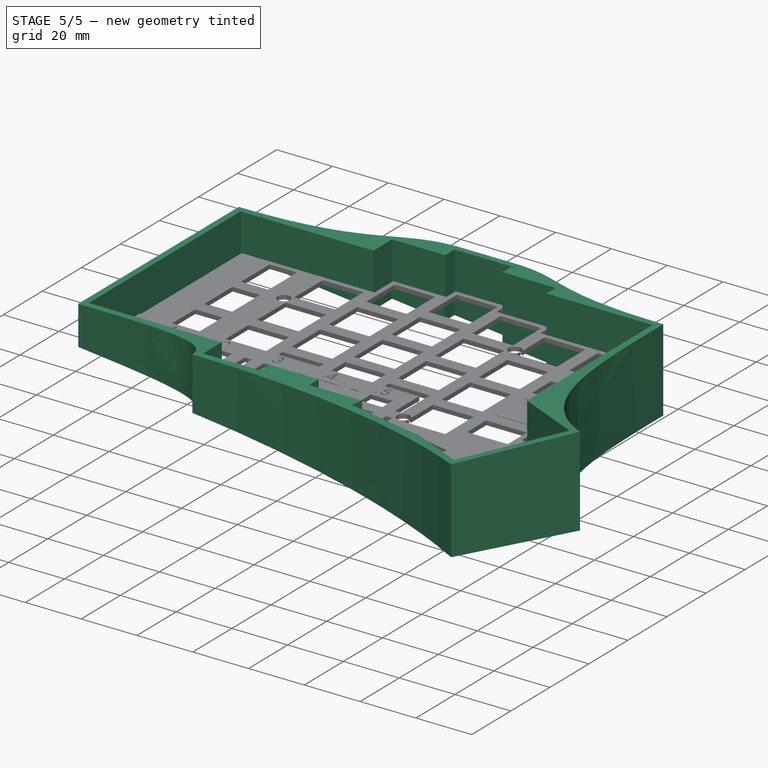
[diagram: stage 5 of 5 — iso view after this stage's code; geometry added in this stage tinted green]
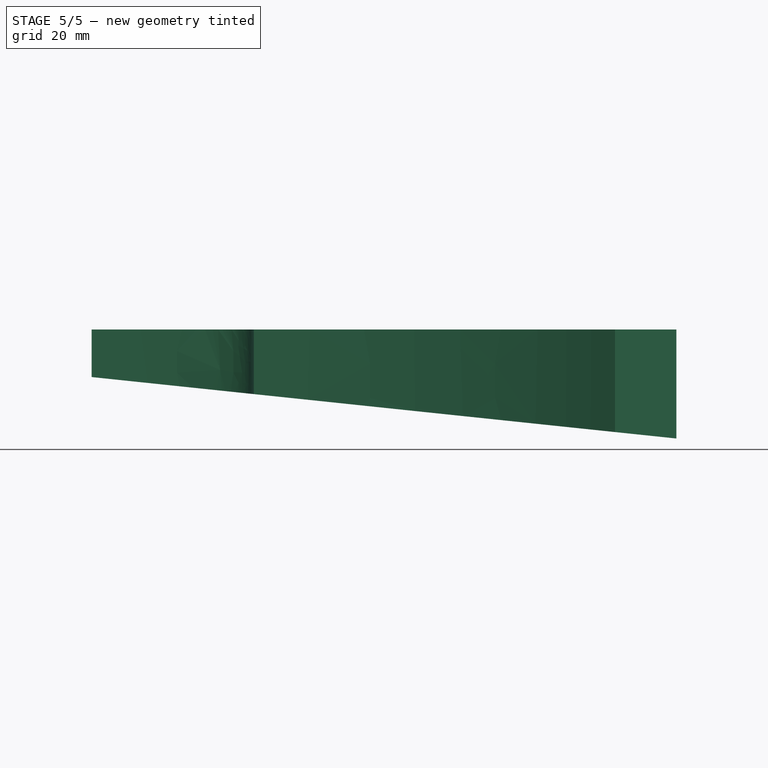
[diagram: stage 5 of 5 — front view after this stage's code; geometry added in this stage tinted green]
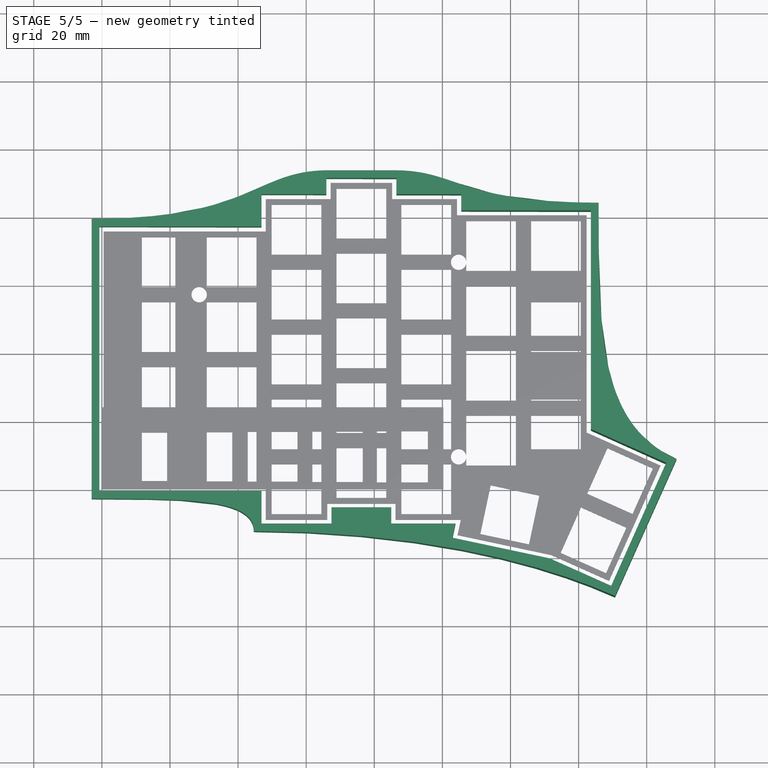
[diagram: stage 5 of 5 — top view after this stage's code; geometry added in this stage tinted green]
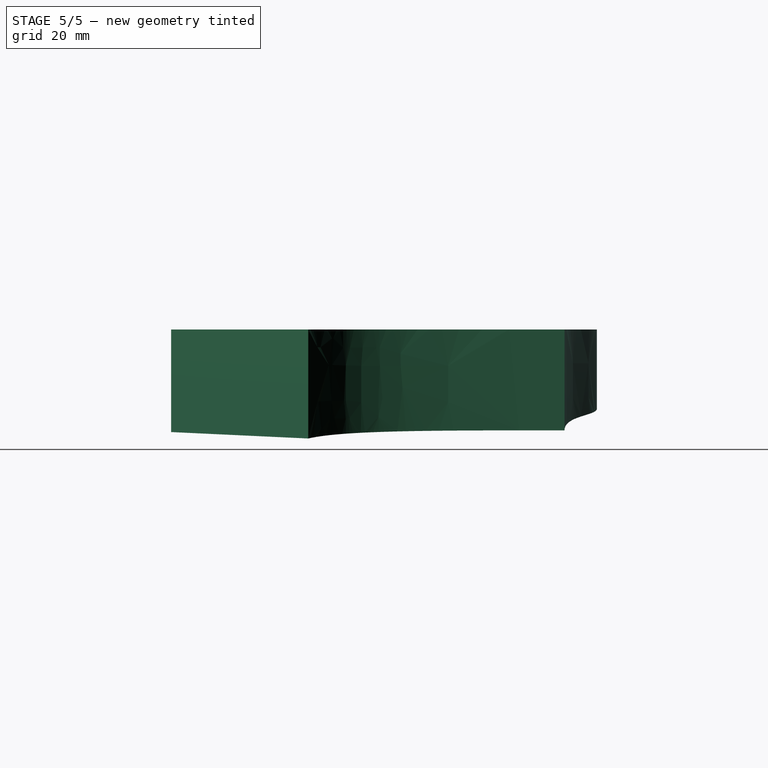
[diagram: stage 5 of 5 — right view after this stage's code; geometry added in this stage tinted green]
FEATURE [Sketcher::SketchObject] Sketch009  label="switch_holes"
  FullyConstrained = false
  MapMode = 5
  Placement = pos=(0,0,1.5) rot=(0,0,1;0rad)
  Support = -> [Pad001]
  expr: Constraints[9] = <<Constants_ergo>>.grid
  expr: Constraints[11] = <<Constants_ergo>>.grid
  expr: Constraints[2] = (0.5 + <<Constants_ergo>>.mod_units) * <<Constants_ergo>>.grid
  expr: Constraints[5] = 0.5 * (1 + <<Constants_ergo>>.mod_units) * <<Constants_ergo>>.grid
  expr: Constraints[57] = <<Constants_ergo>>.spacing
  expr: Constraints[161] = <<Constants_ergo>>.spacing
  expr: Constraints[15] = <<Constants_ergo>>.grid
  expr: Constraints[58] = <<Constants_ergo>>.spacing
  expr: Constraints[59] = <<Constants_ergo>>.spacing
  expr: Constraints[60] = <<Constants_ergo>>.hole
  expr: Constraints[358] = <<Constants_ergo>>.grid / 2 - <<Constants_ergo>>.spacing / 2
  expr: Constraints[356] = <<Constants_ergo>>.spacing / 2
  expr: Constraints[364] = <<Constants_ergo>>.grid / 4 - <<Constants_ergo>>.spacing / 2
  expr: Constraints[366] = <<Constants_ergo>>.grid / 4 + <<Constants_ergo>>.spacing / 2
  expr: Constraints[7] = <<Constants_ergo>>.grid
  expr: Constraints[13] = <<Constants_ergo>>.grid
  expr: Constraints[381] = <<Constants_ergo>>.hole
  sketch-geometry (131):
    g0: LineSegment StartX=38.1 StartY=0 StartZ=0 EndX=38.1 EndY=96.2556 EndZ=0
    g1: LineSegment StartX=14.2875 StartY=0 StartZ=0 EndX=14.2875 EndY=96.8335 EndZ=0
    g2: LineSegment StartX=57.15 StartY=-9.1419 StartZ=0 EndX=57.15 EndY=87.1129 EndZ=0
    g3: LineSegment StartX=76.2 StartY=-4.2747 StartZ=0 EndX=76.2 EndY=91.9809 EndZ=0
    g4: LineSegment StartX=95.25 StartY=-8.95511 StartZ=0 EndX=95.25 EndY=87.3005 EndZ=0
    g5: LineSegment StartX=114.3 StartY=-8.94744 StartZ=0 EndX=114.3 EndY=87.2928 EndZ=0
    g6: LineSegment StartX=133.35 StartY=-7.45738 StartZ=0 EndX=133.35 EndY=88.7982 EndZ=0
    g7: LineSegment StartX=7.2875 StartY=16.525 StartZ=0 EndX=21.2875 EndY=16.525 EndZ=0
    g8: LineSegment StartX=21.2875 StartY=16.525 StartZ=0 EndX=21.2875 EndY=2.525 EndZ=0
    g9: LineSegment StartX=21.2875 StartY=2.525 StartZ=0 EndX=7.2875 EndY=2.525 EndZ=0
    g10: LineSegment StartX=7.2875 StartY=2.525 StartZ=0 EndX=7.2875 EndY=16.525 EndZ=0
    g11: LineSegment StartX=7.2875 StartY=35.575 StartZ=0 EndX=21.2875 EndY=35.575 EndZ=0
    g12: LineSegment StartX=21.2875 StartY=35.575 StartZ=0 EndX=21.2875 EndY=21.575 EndZ=0
    g13: LineSegment StartX=21.2875 StartY=21.575 StartZ=0 EndX=7.2875 EndY=21.575 EndZ=0
    g14: LineSegment StartX=7.2875 StartY=21.575 StartZ=0 EndX=7.2875 EndY=35.575 EndZ=0
    g15: LineSegment StartX=7.2875 StartY=54.625 StartZ=0 EndX=21.2875 EndY=54.625 EndZ=0
    g16: LineSegment StartX=21.2875 StartY=54.625 StartZ=0 EndX=21.2875 EndY=40.625 EndZ=0
    g17: LineSegment StartX=21.2875 StartY=40.625 StartZ=0 EndX=7.2875 EndY=40.625 EndZ=0
    g18: LineSegment StartX=7.2875 StartY=40.625 StartZ=0 EndX=7.2875 EndY=54.625 EndZ=0
    g19: LineSegment StartX=7.2875 StartY=73.675 StartZ=0 EndX=21.2875 EndY=73.675 EndZ=0
    g20: LineSegment StartX=21.2875 StartY=73.675 StartZ=0 EndX=21.2875 EndY=59.675 EndZ=0
    g21: LineSegment StartX=21.2875 StartY=59.675 StartZ=0 EndX=7.2875 EndY=59.675 EndZ=0
    g22: LineSegment StartX=7.2875 StartY=59.675 StartZ=0 EndX=7.2875 EndY=73.675 EndZ=0
    g23: LineSegment StartX=31.1 StartY=16.525 StartZ=0 EndX=45.1 EndY=16.525 EndZ=0
    g24: LineSegment StartX=45.1 StartY=16.525 StartZ=0 EndX=45.1 EndY=2.525 EndZ=0
    g25: LineSegment StartX=45.1 StartY=2.525 StartZ=0 EndX=31.1 EndY=2.525 EndZ=0
    g26: LineSegment StartX=31.1 StartY=2.525 StartZ=0 EndX=31.1 EndY=16.525 EndZ=0
    g27: LineSegment StartX=31.1 StartY=35.575 StartZ=0 EndX=45.1 EndY=35.575 EndZ=0
    g28: LineSegment StartX=45.1 StartY=35.575 StartZ=0 EndX=45.1 EndY=21.575 EndZ=0
    g29: LineSegment StartX=45.1 StartY=21.575 StartZ=0 EndX=31.1 EndY=21.575 EndZ=0
    g30: LineSegment StartX=31.1 StartY=21.575 StartZ=0 EndX=31.1 EndY=35.575 EndZ=0
    g31: LineSegment StartX=31.1 StartY=54.625 StartZ=0 EndX=45.1 EndY=54.625 EndZ=0
    g32: LineSegment StartX=45.1 StartY=54.625 StartZ=0 EndX=45.1 EndY=40.625 EndZ=0
    g33: LineSegment StartX=45.1 StartY=40.625 StartZ=0 EndX=31.1 EndY=40.625 EndZ=0
    g34: LineSegment StartX=31.1 StartY=40.625 StartZ=0 EndX=31.1 EndY=54.625 EndZ=0
    g35: LineSegment StartX=31.1 StartY=73.675 StartZ=0 EndX=45.1 EndY=73.675 EndZ=0
    g36: LineSegment StartX=45.1 StartY=73.675 StartZ=0 EndX=45.1 EndY=59.675 EndZ=0
    g37: LineSegment StartX=45.1 StartY=59.675 StartZ=0 EndX=31.1 EndY=59.675 EndZ=0
    g38: LineSegment StartX=31.1 StartY=59.675 StartZ=0 EndX=31.1 EndY=73.675 EndZ=0
    g39: LineSegment StartX=50.15 StartY=7 StartZ=0 EndX=64.15 EndY=7 EndZ=0
    g40: LineSegment StartX=64.15 StartY=7 StartZ=0 EndX=64.15 EndY=-7 EndZ=0
    g41: LineSegment StartX=64.15 StartY=-7 StartZ=0 EndX=50.15 EndY=-7 EndZ=0
    g42: LineSegment StartX=50.15 StartY=-7 StartZ=0 EndX=50.15 EndY=7 EndZ=0
    g43: LineSegment StartX=50.15 StartY=26.05 StartZ=0 EndX=64.15 EndY=26.05 EndZ=0
    g44: LineSegment StartX=64.15 StartY=26.05 StartZ=0 EndX=64.15 EndY=12.05 EndZ=0
    g45: LineSegment StartX=64.15 StartY=12.05 StartZ=0 EndX=50.15 EndY=12.05 EndZ=0
    g46: LineSegment StartX=50.15 StartY=12.05 StartZ=0 EndX=50.15 EndY=26.05 EndZ=0
    g47: LineSegment StartX=50.15 StartY=45.1 StartZ=0 EndX=64.15 EndY=45.1 EndZ=0
    g48: LineSegment StartX=64.15 StartY=45.1 StartZ=0 EndX=64.15 EndY=31.1 EndZ=0
    g49: LineSegment StartX=64.15 StartY=31.1 StartZ=0 EndX=50.15 EndY=31.1 EndZ=0
    g50: LineSegment StartX=50.15 StartY=31.1 StartZ=0 EndX=50.15 EndY=45.1 EndZ=0
    g51: LineSegment StartX=50.15 StartY=64.15 StartZ=0 EndX=64.15 EndY=64.15 EndZ=0
    g52: LineSegment StartX=64.15 StartY=64.15 StartZ=0 EndX=64.15 EndY=50.15 EndZ=0
    g53: LineSegment StartX=64.15 StartY=50.15 StartZ=0 EndX=50.15 EndY=50.15 EndZ=0
    g54: LineSegment StartX=50.15 StartY=50.15 StartZ=0 EndX=50.15 EndY=64.15 EndZ=0
    g55: LineSegment StartX=50.15 StartY=69.2 StartZ=0 EndX=64.15 EndY=69.2 EndZ=0
    g56: LineSegment StartX=64.15 StartY=69.2 StartZ=0 EndX=64.15 EndY=83.2 EndZ=0
    g57: LineSegment StartX=64.15 StartY=83.2 StartZ=0 EndX=50.15 EndY=83.2 EndZ=0
    g58: LineSegment StartX=50.15 StartY=83.2 StartZ=0 EndX=50.15 EndY=69.2 EndZ=0
    g59: LineSegment StartX=69.2 StartY=11.7625 StartZ=0 EndX=83.2 EndY=11.7625 EndZ=0
    g60: LineSegment StartX=83.2 StartY=11.7625 StartZ=0 EndX=83.2 EndY=-2.2375 EndZ=0
    g61: LineSegment StartX=83.2 StartY=-2.2375 StartZ=0 EndX=69.2 EndY=-2.2375 EndZ=0
    g62: LineSegment StartX=69.2 StartY=-2.2375 StartZ=0 EndX=69.2 EndY=11.7625 EndZ=0
    g63: LineSegment StartX=69.2 StartY=30.8125 StartZ=0 EndX=83.2 EndY=30.8125 EndZ=0
    g64: LineSegment StartX=83.2 StartY=30.8125 StartZ=0 EndX=83.2 EndY=16.8125 EndZ=0
    g65: LineSegment StartX=83.2 StartY=16.8125 StartZ=0 EndX=69.2 EndY=16.8125 EndZ=0
    g66: LineSegment StartX=69.2 StartY=16.8125 StartZ=0 EndX=69.2 EndY=30.8125 EndZ=0
    g67: LineSegment StartX=69.2 StartY=49.8625 StartZ=0 EndX=83.2 EndY=49.8625 EndZ=0
    g68: LineSegment StartX=83.2 StartY=49.8625 StartZ=0 EndX=83.2 EndY=35.8625 EndZ=0
    g69: LineSegment StartX=83.2 StartY=35.8625 StartZ=0 EndX=69.2 EndY=35.8625 EndZ=0
    g70: LineSegment StartX=69.2 StartY=35.8625 StartZ=0 EndX=69.2 EndY=49.8625 EndZ=0
    g71: LineSegment StartX=69.2 StartY=68.9125 StartZ=0 EndX=83.2 EndY=68.9125 EndZ=0
    g72: LineSegment StartX=83.2 StartY=68.9125 StartZ=0 EndX=83.2 EndY=54.9125 EndZ=0
    g73: LineSegment StartX=83.2 StartY=54.9125 StartZ=0 EndX=69.2 EndY=54.9125 EndZ=0
    g74: LineSegment StartX=69.2 StartY=54.9125 StartZ=0 EndX=69.2 EndY=68.9125 EndZ=0
    g75: LineSegment StartX=69.2 StartY=73.9625 StartZ=0 EndX=83.2 EndY=73.9625 EndZ=0
    g76: LineSegment StartX=83.2 StartY=73.9625 StartZ=0 EndX=83.2 EndY=87.9625 EndZ=0
    g77: LineSegment StartX=83.2 StartY=87.9625 StartZ=0 EndX=69.2 EndY=87.9625 EndZ=0
    g78: LineSegment StartX=69.2 StartY=87.9625 StartZ=0 EndX=69.2 EndY=73.9625 EndZ=0
    g79: LineSegment StartX=88.25 StartY=7 StartZ=0 EndX=102.25 EndY=7 EndZ=0
    g80: LineSegment StartX=102.25 StartY=7 StartZ=0 EndX=102.25 EndY=-7 EndZ=0
    g81: LineSegment StartX=102.25 StartY=-7 StartZ=0 EndX=88.25 EndY=-7 EndZ=0
    g82: LineSegment StartX=88.25 StartY=-7 StartZ=0 EndX=88.25 EndY=7 EndZ=0
    g83: LineSegment StartX=88.25 StartY=26.05 StartZ=0 EndX=102.25 EndY=26.05 EndZ=0
    g84: LineSegment StartX=102.25 StartY=26.05 StartZ=0 EndX=102.25 EndY=12.05 EndZ=0
    g85: LineSegment StartX=102.25 StartY=12.05 StartZ=0 EndX=88.25 EndY=12.05 EndZ=0
    g86: LineSegment StartX=88.25 StartY=12.05 StartZ=0 EndX=88.25 EndY=26.05 EndZ=0
    g87: LineSegment StartX=88.25 StartY=45.1 StartZ=0 EndX=102.25 EndY=45.1 EndZ=0
    g88: LineSegment StartX=102.25 StartY=45.1 StartZ=0 EndX=102.25 EndY=31.1 EndZ=0
    g89: LineSegment StartX=102.25 StartY=31.1 StartZ=0 EndX=88.25 EndY=31.1 EndZ=0
    g90: LineSegment StartX=88.25 StartY=31.1 StartZ=0 EndX=88.25 EndY=45.1 EndZ=0
    g91: LineSegment StartX=88.25 StartY=64.15 StartZ=0 EndX=102.25 EndY=64.15 EndZ=0
    g92: LineSegment StartX=102.25 StartY=64.15 StartZ=0 EndX=102.25 EndY=50.15 EndZ=0
    g93: LineSegment StartX=102.25 StartY=50.15 StartZ=0 EndX=88.25 EndY=50.15 EndZ=0
    g94: LineSegment StartX=88.25 StartY=50.15 StartZ=0 EndX=88.25 EndY=64.15 EndZ=0
    g95: LineSegment StartX=88.25 StartY=69.2 StartZ=0 EndX=102.25 EndY=69.2 EndZ=0
    g96: LineSegment StartX=102.25 StartY=69.2 StartZ=0 EndX=102.25 EndY=83.2 EndZ=0
    g97: LineSegment StartX=102.25 StartY=83.2 StartZ=0 EndX=88.25 EndY=83.2 EndZ=0
    g98: LineSegment StartX=88.25 StartY=83.2 StartZ=0 EndX=88.25 EndY=69.2 EndZ=0
    g99: LineSegment StartX=107.3 StartY=21.2875 StartZ=0 EndX=121.3 EndY=21.2875 EndZ=0
    g100: LineSegment StartX=121.3 StartY=21.2875 StartZ=0 EndX=121.3 EndY=7.2875 EndZ=0
    g101: LineSegment StartX=121.3 StartY=7.2875 StartZ=0 EndX=107.3 EndY=7.2875 EndZ=0
    g102: LineSegment StartX=107.3 StartY=7.2875 StartZ=0 EndX=107.3 EndY=21.2875 EndZ=0
    g103: LineSegment StartX=107.3 StartY=40.3375 StartZ=0 EndX=121.3 EndY=40.3375 EndZ=0
    g104: LineSegment StartX=121.3 StartY=40.3375 StartZ=0 EndX=121.3 EndY=26.3375 EndZ=0
    g105: LineSegment StartX=121.3 StartY=26.3375 StartZ=0 EndX=107.3 EndY=26.3375 EndZ=0
    g106: LineSegment StartX=107.3 StartY=26.3375 StartZ=0 EndX=107.3 EndY=40.3375 EndZ=0
    g107: LineSegment StartX=107.3 StartY=59.3875 StartZ=0 EndX=121.3 EndY=59.3875 EndZ=0
    g108: LineSegment StartX=121.3 StartY=59.3875 StartZ=0 EndX=121.3 EndY=45.3875 EndZ=0
    g109: LineSegment StartX=121.3 StartY=45.3875 StartZ=0 EndX=107.3 EndY=45.3875 EndZ=0
    g110: LineSegment StartX=107.3 StartY=45.3875 StartZ=0 EndX=107.3 EndY=59.3875 EndZ=0
    g111: LineSegment StartX=107.3 StartY=78.4375 StartZ=0 EndX=121.3 EndY=78.4375 EndZ=0
    g112: LineSegment StartX=121.3 StartY=78.4375 StartZ=0 EndX=121.3 EndY=64.4375 EndZ=0
    g113: LineSegment StartX=121.3 StartY=64.4375 StartZ=0 EndX=107.3 EndY=64.4375 EndZ=0
    g114: LineSegment StartX=107.3 StartY=64.4375 StartZ=0 EndX=107.3 EndY=78.4375 EndZ=0
    g115: LineSegment StartX=126.35 StartY=40.3375 StartZ=0 EndX=140.35 EndY=40.3375 EndZ=0
    g116: LineSegment StartX=140.35 StartY=40.3375 StartZ=0 EndX=140.35 EndY=26.3375 EndZ=0
    g117: LineSegment StartX=140.35 StartY=26.3375 StartZ=0 EndX=126.35 EndY=26.3375 EndZ=0
    g118: LineSegment StartX=126.35 StartY=26.3375 StartZ=0 EndX=126.35 EndY=40.3375 EndZ=0
    g119: LineSegment StartX=126.35 StartY=59.3875 StartZ=0 EndX=140.35 EndY=59.3875 EndZ=0
    g120: LineSegment StartX=140.35 StartY=59.3875 StartZ=0 EndX=140.35 EndY=45.3875 EndZ=0
    g121: LineSegment StartX=140.35 StartY=45.3875 StartZ=0 EndX=126.35 EndY=45.3875 EndZ=0
    g122: LineSegment StartX=126.35 StartY=45.3875 StartZ=0 EndX=126.35 EndY=59.3875 EndZ=0
    g123: LineSegment StartX=126.35 StartY=78.4375 StartZ=0 EndX=140.35 EndY=78.4375 EndZ=0
    g124: LineSegment StartX=140.35 StartY=78.4375 StartZ=0 EndX=140.35 EndY=64.4375 EndZ=0
    g125: LineSegment StartX=140.35 StartY=64.4375 StartZ=0 EndX=126.35 EndY=64.4375 EndZ=0
    g126: LineSegment StartX=126.35 StartY=64.4375 StartZ=0 EndX=126.35 EndY=78.4375 EndZ=0
    g127: LineSegment StartX=126.35 StartY=21.2875 StartZ=0 EndX=140.35 EndY=21.2875 EndZ=0
    g128: LineSegment StartX=140.35 StartY=21.2875 StartZ=0 EndX=140.35 EndY=7.2875 EndZ=0
    g129: LineSegment StartX=140.35 StartY=7.2875 StartZ=0 EndX=126.35 EndY=7.2875 EndZ=0
    g130: LineSegment StartX=126.35 StartY=7.2875 StartZ=0 EndX=126.35 EndY=21.2875 EndZ=0
  constraints (382):
    c: PointOnObject(g0,g-1)
    c: Vertical(g0)
    c: DistanceX(g-1,g0) = 38.1
    c: Vertical(g1)
    c: PointOnObject(g1,g-1)
    c: DistanceX(g1,g0) = 23.8125
    c: Vertical(g2)
    c: DistanceX(g0,g2) = 19.05
    c: Vertical(g3)
    c: DistanceX(g2,g3) = 19.05
    c: Vertical(g4)
    c: DistanceX(g3,g4) = 19.05
    c: Vertical(g5)
    c: DistanceX(g4,g5) = 19.05
    c: Vertical(g6)
    c: DistanceX(g5,g6) = 19.05
    c: Coincident(g7,g8)
    c: Coincident(g8,g9)
    c: Coincident(g9,g10)
    c: Coincident(g10,g7)
    c: Horizontal(g7)
    c: Vertical(g8)
    c: Vertical(g10)
    c: Coincident(g11,g12)
    c: Coincident(g12,g13)
    c: Coincident(g13,g14)
    c: Coincident(g14,g11)
    c: Horizontal(g11)
    c: Horizontal(g13)
    c: Vertical(g12)
    c: Vertical(g14)
    c: Coincident(g15,g16)
    c: Coincident(g16,g17)
    c: Coincident(g17,g18)
    c: Coincident(g18,g15)
    c: Horizontal(g15)
    c: Horizontal(g17)
    c: Vertical(g16)
    c: Vertical(g18)
    c: Coincident(g19,g20)
    c: Coincident(g20,g21)
    c: Coincident(g21,g22)
    c: Coincident(g22,g19)
    c: Horizontal(g19)
    c: Horizontal(g21)
    c: Vertical(g20)
    c: Vertical(g22)
    c: Equal(g21,g20)
    c: Equal(g15,g16)
    c: Equal(g16,g12)
    c: Equal(g12,g20)
    c: Equal(g19,g8)
    c: Equal(g8,g7)
    c: Equal(g7,g11)
    c: Vertical(g20,g16)
    c: Vertical(g16,g12)
    c: Vertical(g12,g8)
    c: DistanceY(g15,g20) = 5.05
    c: DistanceY(g11,g16) = 5.05
    c: DistanceY(g7,g12) = 5.05
    c: Distance(g9) = 14
    c: Coincident(g23,g24)
    c: Coincident(g24,g25)
    c: Coincident(g25,g26)
    c: Coincident(g26,g23)
    c: Horizontal(g23)
    c: Vertical(g24)
    c: Vertical(g26)
    c: Coincident(g27,g28)
    c: Coincident(g28,g29)
    c: Coincident(g29,g30)
    c: Coincident(g30,g27)
    c: Horizontal(g27)
    c: Horizontal(g29)
    c: Vertical(g28)
    c: Vertical(g30)
    c: Coincident(g31,g32)
    c: Coincident(g32,g33)
    c: Coincident(g33,g34)
    c: Coincident(g34,g31)
    c: Horizontal(g31)
    c: Horizontal(g33)
    c: Vertical(g32)
    c: Vertical(g34)
    c: Coincident(g35,g36)
    c: Coincident(g36,g37)
    c: Coincident(g37,g38)
    c: Coincident(g38,g35)
    c: Horizontal(g35)
    c: Horizontal(g37)
    c: Vertical(g36)
    c: Vertical(g38)
    c: Equal(g37,g36)
    c: Equal(g31,g32)
    c: Equal(g32,g28)
    c: Equal(g28,g36)
    c: Equal(g35,g24)
    c: Equal(g24,g23)
    c: Equal(g23,g27)
    c: Vertical(g36,g32)
    c: Vertical(g32,g28)
    c: Vertical(g28,g24)
    c: DistanceY(g31,g36) = 5.05
    c: DistanceY(g27,g32) = 5.05
    c: DistanceY(g23,g28) = 5.05
    c: Equal(g9,g25) = 14
    c: Coincident(g39,g40)
    c: Coincident(g40,g41)
    c: Coincident(g41,g42)
    c: Coincident(g42,g39)
    c: Horizontal(g39)
    c: Vertical(g40)
    c: Vertical(g42)
    c: Coincident(g43,g44)
    c: Coincident(g44,g45)
    c: Coincident(g45,g46)
    c: Coincident(g46,g43)
    c: Horizontal(g43)
    c: Horizontal(g45)
    c: Vertical(g44)
    c: Vertical(g46)
    c: Coincident(g47,g48)
    c: Coincident(g48,g49)
    c: Coincident(g49,g50)
    c: Coincident(g50,g47)
    c: Horizontal(g47)
    c: Horizontal(g49)
    c: Vertical(g48)
    c: Vertical(g50)
    c: Coincident(g51,g52)
    c: Coincident(g52,g53)
    c: Coincident(g53,g54)
    c: Coincident(g54,g51)
    c: Horizontal(g51)
    c: Horizontal(g53)
    c: Vertical(g52)
    c: Vertical(g54)
    c: Equal(g53,g52)
    c: Equal(g47,g48)
    c: Equal(g48,g44)
    c: Equal(g44,g52)
    c: Equal(g51,g40)
    c: Equal(g40,g39)
    c: Equal(g39,g43)
    c: Vertical(g52,g48)
    c: Vertical(g48,g44)
    c: Vertical(g44,g40)
    c: DistanceY(g47,g52) = 5.05
    c: DistanceY(g43,g48) = 5.05
    c: DistanceY(g39,g44) = 5.05
    c: Coincident(g55,g56)
    c: Coincident(g56,g57)
    c: Coincident(g57,g58)
    c: Coincident(g58,g55)
    c: Horizontal(g55)
    c: Horizontal(g57)
    c: Vertical(g56)
    c: Vertical(g58)
    c: Vertical(g55,g51)
    c: Equal(g56,g57)
    c: Equal(g52,g56)
    c: DistanceY(g51,g55) = 5.05
    c: Coincident(g59,g60)
    c: Coincident(g60,g61)
    c: Coincident(g61,g62)
    c: Coincident(g62,g59)
    c: Horizontal(g59)
    c: Vertical(g60)
    c: Vertical(g62)
    c: Coincident(g63,g64)
    c: Coincident(g64,g65)
    c: Coincident(g65,g66)
    c: Coincident(g66,g63)
    c: Horizontal(g63)
    c: Horizontal(g65)
    c: Vertical(g64)
    c: Vertical(g66)
    c: Coincident(g67,g68)
    c: Coincident(g68,g69)
    c: Coincident(g69,g70)
    c: Coincident(g70,g67)
    c: Horizontal(g67)
    c: Horizontal(g69)
    c: Vertical(g68)
    c: Vertical(g70)
    c: Coincident(g71,g72)
    c: Coincident(g72,g73)
    c: Coincident(g73,g74)
    c: Coincident(g74,g71)
    c: Horizontal(g71)
    c: Horizontal(g73)
    c: Vertical(g72)
    c: Vertical(g74)
    c: Equal(g73,g72)
    c: Equal(g67,g68)
    c: Equal(g68,g64)
    c: Equal(g64,g72)
    c: Equal(g71,g60)
    c: Equal(g60,g59)
    c: Equal(g59,g63)
    c: Vertical(g72,g68)
    c: Vertical(g68,g64)
    c: Vertical(g64,g60)
    c: DistanceY(g67,g72) = 5.05
    c: DistanceY(g63,g68) = 5.05
    c: DistanceY(g59,g64) = 5.05
    c: Coincident(g75,g76)
    c: Coincident(g76,g77)
    c: Coincident(g77,g78)
    c: Coincident(g78,g75)
    c: Horizontal(g75)
    c: Horizontal(g77)
    c: Vertical(g76)
    c: Vertical(g78)
    c: Vertical(g75,g71)
    c: Equal(g76,g77)
    c: Equal(g72,g76)
    c: DistanceY(g71,g75) = 5.05
    c: Coincident(g79,g80)
    c: Coincident(g80,g81)
    c: Coincident(g81,g82)
    c: Coincident(g82,g79)
    c: Horizontal(g79)
    c: Vertical(g80)
    c: Vertical(g82)
    c: Coincident(g83,g84)
    c: Coincident(g84,g85)
    c: Coincident(g85,g86)
    c: Coincident(g86,g83)
    c: Horizontal(g83)
    c: Horizontal(g85)
    c: Vertical(g84)
    c: Vertical(g86)
    c: Coincident(g87,g88)
    c: Coincident(g88,g89)
    c: Coincident(g89,g90)
    c: Coincident(g90,g87)
    c: Horizontal(g87)
    c: Horizontal(g89)
    c: Vertical(g88)
    c: Vertical(g90)
    c: Coincident(g91,g92)
    c: Coincident(g92,g93)
    c: Coincident(g93,g94)
    c: Coincident(g94,g91)
    c: Horizontal(g91)
    c: Horizontal(g93)
    c: Vertical(g92)
    c: Vertical(g94)
    c: Equal(g93,g92)
    c: Equal(g87,g88)
    c: Equal(g88,g84)
    c: Equal(g84,g92)
    c: Equal(g91,g80)
    c: Equal(g80,g79)
    c: Equal(g79,g83)
    c: Vertical(g92,g88)
    c: Vertical(g88,g84)
    c: Vertical(g84,g80)
    c: DistanceY(g87,g92) = 5.05
    c: DistanceY(g83,g88) = 5.05
    c: DistanceY(g79,g84) = 5.05
    c: Coincident(g95,g96)
    c: Coincident(g96,g97)
    c: Coincident(g97,g98)
    c: Coincident(g98,g95)
    c: Horizontal(g95)
    c: Horizontal(g97)
    c: Vertical(g96)
    c: Vertical(g98)
    c: Vertical(g95,g91)
    c: Equal(g96,g97)
    c: Equal(g92,g96)
    c: DistanceY(g91,g95) = 5.05
    c: Coincident(g99,g100)
    c: Coincident(g100,g101)
    c: Coincident(g101,g102)
    c: Coincident(g102,g99)
    c: Horizontal(g99)
    c: Vertical(g100)
    c: Vertical(g102)
    c: Coincident(g103,g104)
    c: Coincident(g104,g105)
    c: Coincident(g105,g106)
    c: Coincident(g106,g103)
    c: Horizontal(g103)
    c: Horizontal(g105)
    c: Vertical(g104)
    c: Vertical(g106)
    c: Coincident(g107,g108)
    c: Coincident(g108,g109)
    c: Coincident(g109,g110)
    c: Coincident(g110,g107)
    c: Horizontal(g107)
    c: Horizontal(g109)
    c: Vertical(g108)
    c: Vertical(g110)
    c: Coincident(g111,g112)
    c: Coincident(g112,g113)
    c: Coincident(g113,g114)
    c: Coincident(g114,g111)
    c: Horizontal(g111)
    c: Horizontal(g113)
    c: Vertical(g112)
    c: Vertical(g114)
    c: Equal(g113,g112)
    c: Equal(g107,g108)
    c: Equal(g108,g104)
    c: Equal(g104,g112)
    c: Equal(g111,g100)
    c: Equal(g100,g99)
    c: Equal(g99,g103)
    c: Vertical(g112,g108)
    c: Vertical(g108,g104)
    c: Vertical(g104,g100)
    c: DistanceY(g107,g112) = 5.05
    c: DistanceY(g103,g108) = 5.05
    c: DistanceY(g99,g104) = 5.05
    c: Coincident(g115,g116)
    c: Coincident(g116,g117)
    c: Coincident(g117,g118)
    c: Coincident(g118,g115)
    c: Horizontal(g115)
    c: Vertical(g116)
    c: Vertical(g118)
    c: Coincident(g119,g120)
    c: Coincident(g120,g121)
    c: Coincident(g121,g122)
    c: Coincident(g122,g119)
    c: Horizontal(g119)
    c: Horizontal(g121)
    c: Vertical(g120)
    c: Vertical(g122)
    c: Coincident(g123,g124)
    c: Coincident(g124,g125)
    c: Coincident(g125,g126)
    c: Coincident(g126,g123)
    c: Horizontal(g123)
    c: Horizontal(g125)
    c: Vertical(g124)
    c: Vertical(g126)
    c: Equal(g123,g124)
    c: Equal(g116,g115)
    c: Equal(g115,g119)
    c: Vertical(g124,g120)
    c: Vertical(g120,g116)
    c: DistanceY(g119,g124) = 5.05
    c: DistanceY(g115,g120) = 5.05
    c: Equal(g9,g117) = 14
    c: Symmetric(g8,g9,g1)
    c: Symmetric(g24,g25,g0)
    c: Symmetric(g40,g41,g2)
    c: Symmetric(g60,g61,g3)
    c: Symmetric(g80,g81,g4)
    c: Symmetric(g100,g101,g5)
    c: Symmetric(g116,g117,g6)
    c: DistanceY(g-1,g9) = 2.525
    c: Horizontal(g8,g25)
    c: DistanceY(g41,g-1) = 7
    c: Equal(g41,g25)
    c: Equal(g25,g61)
    c: Equal(g61,g81)
    c: Equal(g81,g101)
    c: Equal(g117,g9)
    c: DistanceY(g61,g-1) = 2.2375
    c: Horizontal(g81,g40)
    c: DistanceY(g-1,g101) = 7.2875
    c: Horizontal(g111,g123)
    c: Equal(g123,g119)
    c: Equal(g124,g120)
    c: Coincident(g127,g128)
    c: Coincident(g128,g129)
    c: Coincident(g129,g130)
    c: Coincident(g130,g127)
    c: Horizontal(g127)
    c: Vertical(g128)
    c: Vertical(g130)
    c: Equal(g128,g127)
    c: Horizontal(g129,g100)
    c: Horizontal(g100,g128)
    c: Vertical(g127,g117)
    c: Distance(g129) = 14
FEATURE [Sketcher::SketchObject] Sketch011  label="ergo_holes"
  FullyConstrained = false
  MapMode = 5
  Placement = pos=(0,0,1.5) rot=(0,0,1;0rad)
  Support = -> [Pad001]
  expr: Constraints[204] = Sketch009.Constraints[204]
  expr: Constraints[364] = Sketch009.Constraints[364]
  expr: Constraints[102] = Sketch009.Constraints[102]
  expr: Constraints[356] = Sketch009.Constraints[356]
  expr: Constraints[358] = Sketch009.Constraints[358]
  expr: Constraints[149] = Sketch009.Constraints[149]
  expr: Constraints[347] = <<Constants_ergo>>.grid * 1.5 - <<Constants_ergo>>.hole
  expr: Constraints[366] = Sketch009.Constraints[366]
  expr: Constraints[317] = Sketch009.Constraints[317]
  expr: Constraints[315] = Sketch009.Constraints[315]
  expr: Constraints[261] = Sketch009.Constraints[261]
  expr: Constraints[205] = Sketch009.Constraints[205]
  expr: Constraints[217] = Sketch009.Constraints[217]
  expr: Constraints[203] = Sketch009.Constraints[203]
  expr: Constraints[148] = Sketch009.Constraints[148]
  expr: Constraints[259] = Sketch009.Constraints[259]
  expr: Constraints[60] = Sketch009.Constraints[60]
  expr: Constraints[346] = <<Constants_ergo>>.grid * 1.25 - <<Constants_ergo>>.hole
  expr: Constraints[316] = Sketch009.Constraints[316]
  expr: Constraints[104] = Sketch009.Constraints[104]
  expr: Constraints[59] = Sketch009.Constraints[59]
  expr: Constraints[273] = Sketch009.Constraints[273]
  expr: Constraints[58] = Sketch009.Constraints[58]
  expr: Constraints[103] = Sketch009.Constraints[103]
  expr: Constraints[260] = Sketch009.Constraints[260]
  expr: Constraints[161] = Sketch009.Constraints[161]
  expr: Constraints[15] = Sketch009.Constraints[15]
  expr: Constraints[11] = Sketch009.Constraints[11]
  expr: Constraints[147] = Sketch009.Constraints[147]
  expr: Constraints[9] = Sketch009.Constraints[9]
  expr: Constraints[7] = Sketch009.Constraints[7]
  expr: Constraints[13] = Sketch009.Constraints[13]
  expr: Constraints[5] = Sketch009.Constraints[5]
  expr: Constraints[2] = Sketch009.Constraints[2]
  expr: Constraints[57] = Sketch009.Constraints[57]
  sketch-geometry (127):
    g0: LineSegment StartX=38.1 StartY=0 StartZ=0 EndX=38.1 EndY=96.2556 EndZ=0
    g1: LineSegment StartX=14.2875 StartY=0 StartZ=0 EndX=14.2875 EndY=96.8335 EndZ=0
    g2: LineSegment StartX=57.15 StartY=-9.1419 StartZ=0 EndX=57.15 EndY=87.1129 EndZ=0
    g3: LineSegment StartX=76.2 StartY=-4.2747 StartZ=0 EndX=76.2 EndY=91.9809 EndZ=0
    g4: LineSegment StartX=95.25 StartY=-8.95511 StartZ=0 EndX=95.25 EndY=87.3005 EndZ=0
    g5: LineSegment StartX=114.3 StartY=-8.94745 StartZ=0 EndX=114.3 EndY=87.2928 EndZ=0
    g6: LineSegment StartX=133.35 StartY=-7.45738 StartZ=0 EndX=133.35 EndY=88.7982 EndZ=0
    g7: LineSegment StartX=7.2875 StartY=16.525 StartZ=0 EndX=21.2875 EndY=16.525 EndZ=0
    g8: LineSegment StartX=21.2875 StartY=16.525 StartZ=0 EndX=21.2875 EndY=2.525 EndZ=0
    g9: LineSegment StartX=21.2875 StartY=2.525 StartZ=0 EndX=7.2875 EndY=2.525 EndZ=0
    g10: LineSegment StartX=7.2875 StartY=2.525 StartZ=0 EndX=7.2875 EndY=16.525 EndZ=0
    g11: LineSegment StartX=7.2875 StartY=35.575 StartZ=0 EndX=21.2875 EndY=35.575 EndZ=0
    g12: LineSegment StartX=21.2875 StartY=35.575 StartZ=0 EndX=21.2875 EndY=21.575 EndZ=0
    g13: LineSegment StartX=21.2875 StartY=21.575 StartZ=0 EndX=7.2875 EndY=21.575 EndZ=0
    g14: LineSegment StartX=7.2875 StartY=21.575 StartZ=0 EndX=7.2875 EndY=35.575 EndZ=0
    g15: LineSegment StartX=7.2875 StartY=54.625 StartZ=0 EndX=21.2875 EndY=54.625 EndZ=0
    g16: LineSegment StartX=21.2875 StartY=54.625 StartZ=0 EndX=21.2875 EndY=40.625 EndZ=0
    g17: LineSegment StartX=21.2875 StartY=40.625 StartZ=0 EndX=7.2875 EndY=40.625 EndZ=0
    g18: LineSegment StartX=7.2875 StartY=40.625 StartZ=0 EndX=7.2875 EndY=54.625 EndZ=0
    g19: LineSegment StartX=7.2875 StartY=73.675 StartZ=0 EndX=21.2875 EndY=73.675 EndZ=0
    g20: LineSegment StartX=21.2875 StartY=73.675 StartZ=0 EndX=21.2875 EndY=59.675 EndZ=0
    g21: LineSegment StartX=21.2875 StartY=59.675 StartZ=0 EndX=7.2875 EndY=59.675 EndZ=0
    g22: LineSegment StartX=7.2875 StartY=59.675 StartZ=0 EndX=7.2875 EndY=73.675 EndZ=0
    g23: LineSegment StartX=31.1 StartY=16.525 StartZ=0 EndX=45.1 EndY=16.525 EndZ=0
    g24: LineSegment StartX=45.1 StartY=16.525 StartZ=0 EndX=45.1 EndY=2.525 EndZ=0
    g25: LineSegment StartX=45.1 StartY=2.525 StartZ=0 EndX=31.1 EndY=2.525 EndZ=0
    g26: LineSegment StartX=31.1 StartY=2.525 StartZ=0 EndX=31.1 EndY=16.525 EndZ=0
    g27: LineSegment StartX=31.1 StartY=35.575 StartZ=0 EndX=45.1 EndY=35.575 EndZ=0
    g28: LineSegment StartX=45.1 StartY=35.575 StartZ=0 EndX=45.1 EndY=21.575 EndZ=0
    g29: LineSegment StartX=45.1 StartY=21.575 StartZ=0 EndX=31.1 EndY=21.575 EndZ=0
    g30: LineSegment StartX=31.1 StartY=21.575 StartZ=0 EndX=31.1 EndY=35.575 EndZ=0
    g31: LineSegment StartX=31.1 StartY=54.625 StartZ=0 EndX=45.1 EndY=54.625 EndZ=0
    g32: LineSegment StartX=45.1 StartY=54.625 StartZ=0 EndX=45.1 EndY=40.625 EndZ=0
    g33: LineSegment StartX=45.1 StartY=40.625 StartZ=0 EndX=31.1 EndY=40.625 EndZ=0
    g34: LineSegment StartX=31.1 StartY=40.625 StartZ=0 EndX=31.1 EndY=54.625 EndZ=0
    g35: LineSegment StartX=31.1 StartY=73.675 StartZ=0 EndX=45.1 EndY=73.675 EndZ=0
    g36: LineSegment StartX=45.1 StartY=73.675 StartZ=0 EndX=45.1 EndY=59.675 EndZ=0
    g37: LineSegment StartX=45.1 StartY=59.675 StartZ=0 EndX=31.1 EndY=59.675 EndZ=0
    g38: LineSegment StartX=31.1 StartY=59.675 StartZ=0 EndX=31.1 EndY=73.675 EndZ=0
    g39: LineSegment StartX=50.15 StartY=7 StartZ=0 EndX=64.15 EndY=7 EndZ=0
    g40: LineSegment StartX=64.15 StartY=7 StartZ=0 EndX=64.15 EndY=-7 EndZ=0
    g41: LineSegment StartX=64.15 StartY=-7 StartZ=0 EndX=50.15 EndY=-7 EndZ=0
    g42: LineSegment StartX=50.15 StartY=-7 StartZ=0 EndX=50.15 EndY=7 EndZ=0
    g43: LineSegment StartX=50.15 StartY=26.05 StartZ=0 EndX=64.15 EndY=26.05 EndZ=0
    g44: LineSegment StartX=64.15 StartY=26.05 StartZ=0 EndX=64.15 EndY=12.05 EndZ=0
    g45: LineSegment StartX=64.15 StartY=12.05 StartZ=0 EndX=50.15 EndY=12.05 EndZ=0
    g46: LineSegment StartX=50.15 StartY=12.05 StartZ=0 EndX=50.15 EndY=26.05 EndZ=0
    g47: LineSegment StartX=50.15 StartY=45.1 StartZ=0 EndX=64.15 EndY=45.1 EndZ=0
    g48: LineSegment StartX=64.15 StartY=45.1 StartZ=0 EndX=64.15 EndY=31.1 EndZ=0
    g49: LineSegment StartX=64.15 StartY=31.1 StartZ=0 EndX=50.15 EndY=31.1 EndZ=0
    g50: LineSegment StartX=50.15 StartY=31.1 StartZ=0 EndX=50.15 EndY=45.1 EndZ=0
    g51: LineSegment StartX=50.15 StartY=64.15 StartZ=0 EndX=64.15 EndY=64.15 EndZ=0
    g52: LineSegment StartX=64.15 StartY=64.15 StartZ=0 EndX=64.15 EndY=50.15 EndZ=0
    g53: LineSegment StartX=64.15 StartY=50.15 StartZ=0 EndX=50.15 EndY=50.15 EndZ=0
    g54: LineSegment StartX=50.15 StartY=50.15 StartZ=0 EndX=50.15 EndY=64.15 EndZ=0
    g55: LineSegment StartX=50.15 StartY=69.2 StartZ=0 EndX=64.15 EndY=69.2 EndZ=0
    g56: LineSegment StartX=64.15 StartY=69.2 StartZ=0 EndX=64.15 EndY=83.2 EndZ=0
    g57: LineSegment StartX=64.15 StartY=83.2 StartZ=0 EndX=50.15 EndY=83.2 EndZ=0
    g58: LineSegment StartX=50.15 StartY=83.2 StartZ=0 EndX=50.15 EndY=69.2 EndZ=0
    g59: LineSegment StartX=69.2 StartY=11.7625 StartZ=0 EndX=83.2 EndY=11.7625 EndZ=0
    g60: LineSegment StartX=83.2 StartY=11.7625 StartZ=0 EndX=83.2 EndY=-2.2375 EndZ=0
    g61: LineSegment StartX=83.2 StartY=-2.2375 StartZ=0 EndX=69.2 EndY=-2.2375 EndZ=0
    g62: LineSegment StartX=69.2 StartY=-2.2375 StartZ=0 EndX=69.2 EndY=11.7625 EndZ=0
    g63: LineSegment StartX=69.2 StartY=30.8125 StartZ=0 EndX=83.2 EndY=30.8125 EndZ=0
    g64: LineSegment StartX=83.2 StartY=30.8125 StartZ=0 EndX=83.2 EndY=16.8125 EndZ=0
    g65: LineSegment StartX=83.2 StartY=16.8125 StartZ=0 EndX=69.2 EndY=16.8125 EndZ=0
    g66: LineSegment StartX=69.2 StartY=16.8125 StartZ=0 EndX=69.2 EndY=30.8125 EndZ=0
    g67: LineSegment StartX=69.2 StartY=49.8625 StartZ=0 EndX=83.2 EndY=49.8625 EndZ=0
    g68: LineSegment StartX=83.2 StartY=49.8625 StartZ=0 EndX=83.2 EndY=35.8625 EndZ=0
    g69: LineSegment StartX=83.2 StartY=35.8625 StartZ=0 EndX=69.2 EndY=35.8625 EndZ=0
    g70: LineSegment StartX=69.2 StartY=35.8625 StartZ=0 EndX=69.2 EndY=49.8625 EndZ=0
    g71: LineSegment StartX=69.2 StartY=68.9125 StartZ=0 EndX=83.2 EndY=68.9125 EndZ=0
    g72: LineSegment StartX=83.2 StartY=68.9125 StartZ=0 EndX=83.2 EndY=54.9125 EndZ=0
    g73: LineSegment StartX=83.2 StartY=54.9125 StartZ=0 EndX=69.2 EndY=54.9125 EndZ=0
    g74: LineSegment StartX=69.2 StartY=54.9125 StartZ=0 EndX=69.2 EndY=68.9125 EndZ=0
    g75: LineSegment StartX=69.2 StartY=73.9625 StartZ=0 EndX=83.2 EndY=73.9625 EndZ=0
    g76: LineSegment StartX=83.2 StartY=73.9625 StartZ=0 EndX=83.2 EndY=87.9625 EndZ=0
    g77: LineSegment StartX=83.2 StartY=87.9625 StartZ=0 EndX=69.2 EndY=87.9625 EndZ=0
    g78: LineSegment StartX=69.2 StartY=87.9625 StartZ=0 EndX=69.2 EndY=73.9625 EndZ=0
    g79: LineSegment StartX=88.25 StartY=7 StartZ=0 EndX=102.25 EndY=7 EndZ=0
    g80: LineSegment StartX=102.25 StartY=7 StartZ=0 EndX=102.25 EndY=-7 EndZ=0
    g81: LineSegment StartX=102.25 StartY=-7 StartZ=0 EndX=88.25 EndY=-7 EndZ=0
    g82: LineSegment StartX=88.25 StartY=-7 StartZ=0 EndX=88.25 EndY=7 EndZ=0
    g83: LineSegment StartX=88.25 StartY=26.05 StartZ=0 EndX=102.25 EndY=26.05 EndZ=0
    g84: LineSegment StartX=102.25 StartY=26.05 StartZ=0 EndX=102.25 EndY=12.05 EndZ=0
    g85: LineSegment StartX=102.25 StartY=12.05 StartZ=0 EndX=88.25 EndY=12.05 EndZ=0
    g86: LineSegment StartX=88.25 StartY=12.05 StartZ=0 EndX=88.25 EndY=26.05 EndZ=0
    g87: LineSegment StartX=88.25 StartY=45.1 StartZ=0 EndX=102.25 EndY=45.1 EndZ=0
    g88: LineSegment StartX=102.25 StartY=45.1 StartZ=0 EndX=102.25 EndY=31.1 EndZ=0
    g89: LineSegment StartX=102.25 StartY=31.1 StartZ=0 EndX=88.25 EndY=31.1 EndZ=0
    g90: LineSegment StartX=88.25 StartY=31.1 StartZ=0 EndX=88.25 EndY=45.1 EndZ=0
    g91: LineSegment StartX=88.25 StartY=64.15 StartZ=0 EndX=102.25 EndY=64.15 EndZ=0
    g92: LineSegment StartX=102.25 StartY=64.15 StartZ=0 EndX=102.25 EndY=50.15 EndZ=0
    g93: LineSegment StartX=102.25 StartY=50.15 StartZ=0 EndX=88.25 EndY=50.15 EndZ=0
    g94: LineSegment StartX=88.25 StartY=50.15 StartZ=0 EndX=88.25 EndY=64.15 EndZ=0
    g95: LineSegment StartX=88.25 StartY=69.2 StartZ=0 EndX=102.25 EndY=69.2 EndZ=0
    g96: LineSegment StartX=102.25 StartY=69.2 StartZ=0 EndX=102.25 EndY=83.2 EndZ=0
    g97: LineSegment StartX=102.25 StartY=83.2 StartZ=0 EndX=88.25 EndY=83.2 EndZ=0
    g98: LineSegment StartX=88.25 StartY=83.2 StartZ=0 EndX=88.25 EndY=69.2 EndZ=0
    g99: LineSegment StartX=107.3 StartY=21.2875 StartZ=0 EndX=121.3 EndY=21.2875 EndZ=0
    g100: LineSegment StartX=121.3 StartY=21.2875 StartZ=0 EndX=121.3 EndY=7.2875 EndZ=0
    g101: LineSegment StartX=121.3 StartY=7.2875 StartZ=0 EndX=107.3 EndY=7.2875 EndZ=0
    g102: LineSegment StartX=107.3 StartY=7.2875 StartZ=0 EndX=107.3 EndY=21.2875 EndZ=0
    g103: LineSegment StartX=107.3 StartY=40.3375 StartZ=0 EndX=121.3 EndY=40.3375 EndZ=0
    g104: LineSegment StartX=121.3 StartY=40.3375 StartZ=0 EndX=121.3 EndY=26.3375 EndZ=0
    g105: LineSegment StartX=121.3 StartY=26.3375 StartZ=0 EndX=107.3 EndY=26.3375 EndZ=0
    g106: LineSegment StartX=107.3 StartY=26.3375 StartZ=0 EndX=107.3 EndY=40.3375 EndZ=0
    g107: LineSegment StartX=107.3 StartY=59.3875 StartZ=0 EndX=121.3 EndY=59.3875 EndZ=0
    g108: LineSegment StartX=121.3 StartY=59.3875 StartZ=0 EndX=121.3 EndY=45.3875 EndZ=0
    g109: LineSegment StartX=121.3 StartY=45.3875 StartZ=0 EndX=107.3 EndY=45.3875 EndZ=0
    g110: LineSegment StartX=107.3 StartY=45.3875 StartZ=0 EndX=107.3 EndY=59.3875 EndZ=0
    g111: LineSegment StartX=107.3 StartY=78.4375 StartZ=0 EndX=121.3 EndY=78.4375 EndZ=0
    g112: LineSegment StartX=121.3 StartY=78.4375 StartZ=0 EndX=121.3 EndY=64.4375 EndZ=0
    g113: LineSegment StartX=121.3 StartY=64.4375 StartZ=0 EndX=107.3 EndY=64.4375 EndZ=0
    g114: LineSegment StartX=107.3 StartY=64.4375 StartZ=0 EndX=107.3 EndY=78.4375 EndZ=0
    g115: LineSegment StartX=126.35 StartY=26.05 StartZ=0 EndX=140.35 EndY=26.05 EndZ=0
    g116: LineSegment StartX=140.35 StartY=26.05 StartZ=0 EndX=140.35 EndY=12.05 EndZ=0
    g117: LineSegment StartX=140.35 StartY=12.05 StartZ=0 EndX=126.35 EndY=12.05 EndZ=0
    g118: LineSegment StartX=126.35 StartY=12.05 StartZ=0 EndX=126.35 EndY=26.05 EndZ=0
    g119: LineSegment StartX=126.35 StartY=54.625 StartZ=0 EndX=140.35 EndY=54.625 EndZ=0
    g120: LineSegment StartX=140.35 StartY=54.625 StartZ=0 EndX=140.35 EndY=40.625 EndZ=0
    g121: LineSegment StartX=140.35 StartY=40.625 StartZ=0 EndX=126.35 EndY=40.625 EndZ=0
    g122: LineSegment StartX=126.35 StartY=40.625 StartZ=0 EndX=126.35 EndY=54.625 EndZ=0
    g123: LineSegment StartX=126.35 StartY=78.4375 StartZ=0 EndX=140.35 EndY=78.4375 EndZ=0
    g124: LineSegment StartX=140.35 StartY=78.4375 StartZ=0 EndX=140.35 EndY=64.4375 EndZ=0
    g125: LineSegment StartX=140.35 StartY=64.4375 StartZ=0 EndX=126.35 EndY=64.4375 EndZ=0
    g126: LineSegment StartX=126.35 StartY=64.4375 StartZ=0 EndX=126.35 EndY=78.4375 EndZ=0
  constraints (370):
    c: PointOnObject(g0,g-1)
    c: Vertical(g0)
    c: DistanceX(g-1,g0) = 38.1
    c: Vertical(g1)
    c: PointOnObject(g1,g-1)
    c: DistanceX(g1,g0) = 23.8125
    c: Vertical(g2)
    c: DistanceX(g0,g2) = 19.05
    c: Vertical(g3)
    c: DistanceX(g2,g3) = 19.05
    c: Vertical(g4)
    c: DistanceX(g3,g4) = 19.05
    c: Vertical(g5)
    c: DistanceX(g4,g5) = 19.05
    c: Vertical(g6)
    c: DistanceX(g5,g6) = 19.05
    c: Coincident(g7,g8)
    c: Coincident(g8,g9)
    c: Coincident(g9,g10)
    c: Coincident(g10,g7)
    c: Horizontal(g7)
    c: Vertical(g8)
    c: Vertical(g10)
    c: Coincident(g11,g12)
    c: Coincident(g12,g13)
    c: Coincident(g13,g14)
    c: Coincident(g14,g11)
    c: Horizontal(g11)
    c: Horizontal(g13)
    c: Vertical(g12)
    c: Vertical(g14)
    c: Coincident(g15,g16)
    c: Coincident(g16,g17)
    c: Coincident(g17,g18)
    c: Coincident(g18,g15)
    c: Horizontal(g15)
    c: Horizontal(g17)
    c: Vertical(g16)
    c: Vertical(g18)
    c: Coincident(g19,g20)
    c: Coincident(g20,g21)
    c: Coincident(g21,g22)
    c: Coincident(g22,g19)
    c: Horizontal(g19)
    c: Horizontal(g21)
    c: Vertical(g20)
    c: Vertical(g22)
    c: Equal(g21,g20)
    c: Equal(g15,g16)
    c: Equal(g16,g12)
    c: Equal(g12,g20)
    c: Equal(g19,g8)
    c: Equal(g8,g7)
    c: Equal(g7,g11)
    c: Vertical(g20,g16)
    c: Vertical(g16,g12)
    c: Vertical(g12,g8)
    c: DistanceY(g15,g20) = 5.05
    c: DistanceY(g11,g16) = 5.05
    c: DistanceY(g7,g12) = 5.05
    c: Distance(g9) = 14
    c: Coincident(g23,g24)
    c: Coincident(g24,g25)
    c: Coincident(g25,g26)
    c: Coincident(g26,g23)
    c: Horizontal(g23)
    c: Vertical(g24)
    c: Vertical(g26)
    c: Coincident(g27,g28)
    c: Coincident(g28,g29)
    c: Coincident(g29,g30)
    c: Coincident(g30,g27)
    c: Horizontal(g27)
    c: Horizontal(g29)
    c: Vertical(g28)
    c: Vertical(g30)
    c: Coincident(g31,g32)
    c: Coincident(g32,g33)
    c: Coincident(g33,g34)
    c: Coincident(g34,g31)
    c: Horizontal(g31)
    c: Horizontal(g33)
    c: Vertical(g32)
    c: Vertical(g34)
    c: Coincident(g35,g36)
    c: Coincident(g36,g37)
    c: Coincident(g37,g38)
    c: Coincident(g38,g35)
    c: Horizontal(g35)
    c: Horizontal(g37)
    c: Vertical(g36)
    c: Vertical(g38)
    c: Equal(g37,g36)
    c: Equal(g31,g32)
    c: Equal(g32,g28)
    c: Equal(g28,g36)
    c: Equal(g35,g24)
    c: Equal(g24,g23)
    c: Equal(g23,g27)
    c: Vertical(g36,g32)
    c: Vertical(g32,g28)
    c: Vertical(g28,g24)
    c: DistanceY(g31,g36) = 5.05
    c: DistanceY(g27,g32) = 5.05
    c: DistanceY(g23,g28) = 5.05
    c: Equal(g9,g25) = 14
    c: Coincident(g39,g40)
    c: Coincident(g40,g41)
    c: Coincident(g41,g42)
    c: Coincident(g42,g39)
    c: Horizontal(g39)
    c: Vertical(g40)
    c: Vertical(g42)
    c: Coincident(g43,g44)
    c: Coincident(g44,g45)
    c: Coincident(g45,g46)
    c: Coincident(g46,g43)
    c: Horizontal(g43)
    c: Horizontal(g45)
    c: Vertical(g44)
    c: Vertical(g46)
    c: Coincident(g47,g48)
    c: Coincident(g48,g49)
    c: Coincident(g49,g50)
    c: Coincident(g50,g47)
    c: Horizontal(g47)
    c: Horizontal(g49)
    c: Vertical(g48)
    c: Vertical(g50)
    c: Coincident(g51,g52)
    c: Coincident(g52,g53)
    c: Coincident(g53,g54)
    c: Coincident(g54,g51)
    c: Horizontal(g51)
    c: Horizontal(g53)
    c: Vertical(g52)
    c: Vertical(g54)
    c: Equal(g53,g52)
    c: Equal(g47,g48)
    c: Equal(g48,g44)
    c: Equal(g44,g52)
    c: Equal(g51,g40)
    c: Equal(g40,g39)
    c: Equal(g39,g43)
    c: Vertical(g52,g48)
    c: Vertical(g48,g44)
    c: Vertical(g44,g40)
    c: DistanceY(g47,g52) = 5.05
    c: DistanceY(g43,g48) = 5.05
    c: DistanceY(g39,g44) = 5.05
    c: Coincident(g55,g56)
    c: Coincident(g56,g57)
    c: Coincident(g57,g58)
    c: Coincident(g58,g55)
    c: Horizontal(g55)
    c: Horizontal(g57)
    c: Vertical(g56)
    c: Vertical(g58)
    c: Vertical(g55,g51)
    c: Equal(g56,g57)
    c: Equal(g52,g56)
    c: DistanceY(g51,g55) = 5.05
    c: Coincident(g59,g60)
    c: Coincident(g60,g61)
    c: Coincident(g61,g62)
    c: Coincident(g62,g59)
    c: Horizontal(g59)
    c: Vertical(g60)
    c: Vertical(g62)
    c: Coincident(g63,g64)
    c: Coincident(g64,g65)
    c: Coincident(g65,g66)
    c: Coincident(g66,g63)
    c: Horizontal(g63)
    c: Horizontal(g65)
    c: Vertical(g64)
    c: Vertical(g66)
    c: Coincident(g67,g68)
    c: Coincident(g68,g69)
    c: Coincident(g69,g70)
    c: Coincident(g70,g67)
    c: Horizontal(g67)
    c: Horizontal(g69)
    c: Vertical(g68)
    c: Vertical(g70)
    c: Coincident(g71,g72)
    c: Coincident(g72,g73)
    c: Coincident(g73,g74)
    c: Coincident(g74,g71)
    c: Horizontal(g71)
    c: Horizontal(g73)
    c: Vertical(g72)
    c: Vertical(g74)
    c: Equal(g73,g72)
    c: Equal(g67,g68)
    c: Equal(g68,g64)
    c: Equal(g64,g72)
    c: Equal(g71,g60)
    c: Equal(g60,g59)
    c: Equal(g59,g63)
    c: Vertical(g72,g68)
    c: Vertical(g68,g64)
    c: Vertical(g64,g60)
    c: DistanceY(g67,g72) = 5.05
    c: DistanceY(g63,g68) = 5.05
    c: DistanceY(g59,g64) = 5.05
    c: Coincident(g75,g76)
    c: Coincident(g76,g77)
    c: Coincident(g77,g78)
    c: Coincident(g78,g75)
    c: Horizontal(g75)
    c: Horizontal(g77)
    c: Vertical(g76)
    c: Vertical(g78)
    c: Vertical(g75,g71)
    c: Equal(g76,g77)
    c: Equal(g72,g76)
    c: DistanceY(g71,g75) = 5.05
    c: Coincident(g79,g80)
    c: Coincident(g80,g81)
    c: Coincident(g81,g82)
    c: Coincident(g82,g79)
    c: Horizontal(g79)
    c: Vertical(g80)
    c: Vertical(g82)
    c: Coincident(g83,g84)
    c: Coincident(g84,g85)
    c: Coincident(g85,g86)
    c: Coincident(g86,g83)
    c: Horizontal(g83)
    c: Horizontal(g85)
    c: Vertical(g84)
    c: Vertical(g86)
    c: Coincident(g87,g88)
    c: Coincident(g88,g89)
    c: Coincident(g89,g90)
    c: Coincident(g90,g87)
    c: Horizontal(g87)
    c: Horizontal(g89)
    c: Vertical(g88)
    c: Vertical(g90)
    c: Coincident(g91,g92)
    c: Coincident(g92,g93)
    c: Coincident(g93,g94)
    c: Coincident(g94,g91)
    c: Horizontal(g91)
    c: Horizontal(g93)
    c: Vertical(g92)
    c: Vertical(g94)
    c: Equal(g93,g92)
    c: Equal(g87,g88)
    c: Equal(g88,g84)
    c: Equal(g84,g92)
    c: Equal(g91,g80)
    c: Equal(g80,g79)
    c: Equal(g79,g83)
    c: Vertical(g92,g88)
    c: Vertical(g88,g84)
    c: Vertical(g84,g80)
    c: DistanceY(g87,g92) = 5.05
    c: DistanceY(g83,g88) = 5.05
    c: DistanceY(g79,g84) = 5.05
    c: Coincident(g95,g96)
    c: Coincident(g96,g97)
    c: Coincident(g97,g98)
    c: Coincident(g98,g95)
    c: Horizontal(g95)
    c: Horizontal(g97)
    c: Vertical(g96)
    c: Vertical(g98)
    c: Vertical(g95,g91)
    c: Equal(g96,g97)
    c: Equal(g92,g96)
    c: DistanceY(g91,g95) = 5.05
    c: Coincident(g99,g100)
    c: Coincident(g100,g101)
    c: Coincident(g101,g102)
    c: Coincident(g102,g99)
    c: Horizontal(g99)
    c: Vertical(g100)
    c: Vertical(g102)
    c: Coincident(g103,g104)
    c: Coincident(g104,g105)
    c: Coincident(g105,g106)
    c: Coincident(g106,g103)
    c: Horizontal(g103)
    c: Horizontal(g105)
    c: Vertical(g104)
    c: Vertical(g106)
    c: Coincident(g107,g108)
    c: Coincident(g108,g109)
    c: Coincident(g109,g110)
    c: Coincident(g110,g107)
    c: Horizontal(g107)
    c: Horizontal(g109)
    c: Vertical(g108)
    c: Vertical(g110)
    c: Coincident(g111,g112)
    c: Coincident(g112,g113)
    c: Coincident(g113,g114)
    c: Coincident(g114,g111)
    c: Horizontal(g111)
    c: Horizontal(g113)
    c: Vertical(g112)
    c: Vertical(g114)
    c: Equal(g113,g112)
    c: Equal(g107,g108)
    c: Equal(g108,g104)
    c: Equal(g104,g112)
    c: Equal(g111,g100)
    c: Equal(g100,g99)
    c: Equal(g99,g103)
    c: Vertical(g112,g108)
    c: Vertical(g108,g104)
    c: Vertical(g104,g100)
    c: DistanceY(g107,g112) = 5.05
    c: DistanceY(g103,g108) = 5.05
    c: DistanceY(g99,g104) = 5.05
    c: Coincident(g115,g116)
    c: Coincident(g116,g117)
    c: Coincident(g117,g118)
    c: Coincident(g118,g115)
    c: Horizontal(g115)
    c: Vertical(g116)
    c: Vertical(g118)
    c: Coincident(g119,g120)
    c: Coincident(g120,g121)
    c: Coincident(g121,g122)
    c: Coincident(g122,g119)
    c: Horizontal(g119)
    c: Horizontal(g121)
    c: Vertical(g120)
    c: Vertical(g122)
    c: Coincident(g123,g124)
    c: Coincident(g124,g125)
    c: Coincident(g125,g126)
    c: Coincident(g126,g123)
    c: Horizontal(g123)
    c: Horizontal(g125)
    c: Vertical(g124)
    c: Vertical(g126)
    c: Equal(g123,g124)
    c: Equal(g116,g115)
    c: Equal(g115,g119)
    c: Vertical(g124,g120)
    c: Vertical(g120,g116)
    c: DistanceY(g119,g124) = 9.8125
    c: DistanceY(g115,g120) = 14.575
    c: Equal(g9,g117) = 14
    c: Symmetric(g8,g9,g1)
    c: Symmetric(g24,g25,g0)
    c: Symmetric(g40,g41,g2)
    c: Symmetric(g60,g61,g3)
    c: Symmetric(g80,g81,g4)
    c: Symmetric(g100,g101,g5)
    c: Symmetric(g116,g117,g6)
    c: DistanceY(g-1,g9) = 2.525
    c: Horizontal(g8,g25)
    c: DistanceY(g41,g-1) = 7
    c: Equal(g41,g25)
    c: Equal(g25,g61)
    c: Equal(g61,g81)
    c: Equal(g81,g101)
    c: Equal(g117,g9)
    c: DistanceY(g61,g-1) = 2.2375
    c: Horizontal(g81,g40)
    c: DistanceY(g-1,g101) = 7.2875
    c: Horizontal(g111,g123)
    c: Equal(g123,g119)
    c: Equal(g124,g120)
FEATURE [Sketcher::SketchObject] Sketch012  label="plate_posts"
  FullyConstrained = false
  MapMode = 5
  Placement = pos=(0,0,1.5) rot=(0,0,1;0rad)
  Support = -> [Pad001]
  expr: Constraints[18] = <<Constants_ergo>>.grid / 2
  expr: Constraints[15] = <<Constants_ergo>>.grid * 3.5
  expr: Constraints[12] = <<Constants_ergo>>.grid
  expr: Constraints[9] = <<Constants_ergo>>.grid * 3
  expr: Constraints[8] = <<Constants_ergo>>.platehole
  expr: Constraints[6] = <<Constants_ergo>>.grid * 4
  expr: Constraints[5] = <<Constants_ergo>>.mod_units * <<Constants_ergo>>.grid
  sketch-geometry (6):
    g0: LineSegment StartX=28.575 StartY=78.988 StartZ=0 EndX=28.575 EndY=0 EndZ=0
    g1: LineSegment StartX=104.775 StartY=78.988 StartZ=0 EndX=104.775 EndY=0 EndZ=0
    g2: Circle CenterX=28.575 CenterY=57.15 CenterZ=0 NormalX=0 NormalY=0 NormalZ=1 AngleXU=0 Radius=2.25
    g3: Circle CenterX=28.575 CenterY=19.05 CenterZ=0 NormalX=0 NormalY=0 NormalZ=1 AngleXU=0 Radius=2.25
    g4: Circle CenterX=104.775 CenterY=66.675 CenterZ=0 NormalX=0 NormalY=0 NormalZ=1 AngleXU=0 Radius=2.25
    g5: Circle CenterX=104.775 CenterY=9.525 CenterZ=0 NormalX=0 NormalY=0 NormalZ=1 AngleXU=0 Radius=2.25
  constraints (19):
    c: Vertical(g0)
    c: PointOnObject(g1,g-1)
    c: Vertical(g1)
    c: PointOnObject(g0,g-1)
    c: Horizontal(g1,g0)
    c: DistanceX(g-1,g0) = 28.575
    c: DistanceX(g0,g1) = 76.2
    c: PointOnObject(g2,g0)
    c: Diameter(g2) = 4.5
    c: DistanceY(g0,g2) = 57.15
    c: Equal(g2,g3) = 2.3
    c: PointOnObject(g3,g0)
    c: DistanceY(g0,g3) = 19.05
    c: Equal(g2,g4) = 2.3
    c: PointOnObject(g4,g1)
    c: DistanceY(g1,g4) = 66.675
    c: Equal(g2,g5) = 2.3
    c: PointOnObject(g5,g1)
    c: DistanceY(g1,g5) = 9.525
FEATURE [Sketcher::SketchObject] Sketch  label="case_base"
  FullyConstrained = false
  MapMode = 5
  Support = -> [XY_Plane]
  expr: Constraints[160] = <<Constants_ergo>>.grid
  expr: Constraints[70] = <<Constants_ergo>>.brim
  expr: Constraints[75] = <<Constants_ergo>>.brim
  expr: Constraints[64] = <<Constants_ergo>>.grid
  expr: Constraints[74] = <<Constants_ergo>>.brim
  expr: Constraints[145] = <<Constants_ergo>>.grid * 2
  expr: Constraints[43] = 0.5 * <<Constants_ergo>>.grid
  expr: Constraints[97] = <<Constants_ergo>>.brim
  expr: Constraints[128] = <<Constants_ergo>>.grid * 1.5 + <<Constants_ergo>>.brim
  expr: Constraints[50] = 4 * <<Constants_ergo>>.grid
  expr: Constraints[58] = <<Constants_ergo>>.grid * 2
  expr: Constraints[110] = <<Constants_ergo>>.brim
  expr: Constraints[57] = <<Constants_ergo>>.grid * 2
  expr: Constraints[72] = <<Constants_ergo>>.brim
  expr: Constraints[65] = <<Constants_ergo>>.grid * 1.5
  expr: Constraints[52] = <<Constants_ergo>>.grid / 4
  expr: Constraints[44] = <<Constants_ergo>>.grid
  expr: Constraints[67] = Spreadsheet.grid - 14.60669124913411
  expr: Constraints[46] = <<Constants_ergo>>.grid
  expr: Constraints[109] = <<Constants_ergo>>.brim
  expr: Constraints[61] = 180 - 12.08569093596732
  expr: Constraints[79] = <<Constants_ergo>>.brim
  expr: Constraints[42] = <<Constants_ergo>>.grid * 2.5
  expr: Constraints[78] = <<Constants_ergo>>.brim
  expr: Constraints[76] = <<Constants_ergo>>.brim
  expr: Constraints[73] = <<Constants_ergo>>.brim
  expr: Constraints[71] = <<Constants_ergo>>.brim
  sketch-geometry (62):
    g0: LineSegment StartX=0 StartY=0 StartZ=0 EndX=0 EndY=76.2 EndZ=0
    g1: LineSegment StartX=0 StartY=76.2 StartZ=0 EndX=47.625 EndY=76.2 EndZ=0
    g2: LineSegment StartX=47.625 StartY=76.2 StartZ=0 EndX=47.625 EndY=85.725 EndZ=0
    g3: LineSegment StartX=47.625 StartY=85.725 StartZ=0 EndX=66.675 EndY=85.725 EndZ=0
    g4: LineSegment StartX=66.675 StartY=85.725 StartZ=0 EndX=66.675 EndY=90.4875 EndZ=0
    g5: LineSegment StartX=66.675 StartY=90.4875 StartZ=0 EndX=85.725 EndY=90.4875 EndZ=0
    g6: LineSegment StartX=85.725 StartY=90.4875 StartZ=0 EndX=85.725 EndY=85.725 EndZ=0
    g7: LineSegment StartX=85.725 StartY=85.725 StartZ=0 EndX=104.775 EndY=85.725 EndZ=0
    g8: LineSegment StartX=104.775 StartY=85.725 StartZ=0 EndX=104.775 EndY=80.9625 EndZ=0
    g9: LineSegment StartX=104.775 StartY=80.9625 StartZ=0 EndX=142.875 EndY=80.9625 EndZ=0
    g10: LineSegment StartX=142.875 StartY=80.9625 StartZ=0 EndX=142.875 EndY=16.9712 EndZ=0
    g11: LineSegment StartX=142.875 StartY=16.9712 StartZ=0 EndX=164.742 EndY=7.19623 EndZ=0
    g12: LineSegment StartX=164.742 StartY=7.19623 StartZ=0 EndX=149.193 EndY=-27.5866 EndZ=0
    g13: LineSegment StartX=149.193 StartY=-27.5866 StartZ=0 EndX=131.802 EndY=-19.8123 EndZ=0
    g14: LineSegment StartX=131.802 StartY=-19.8123 StartZ=0 EndX=103.851 EndY=-13.8712 EndZ=0
    g15: LineSegment StartX=103.851 StartY=-13.8712 StartZ=0 EndX=104.775 EndY=-9.525 EndZ=0
    g16: LineSegment StartX=104.775 StartY=-9.525 StartZ=0 EndX=85.725 EndY=-9.525 EndZ=0
    g17: LineSegment StartX=85.725 StartY=-9.525 StartZ=0 EndX=85.725 EndY=-4.7625 EndZ=0
    g18: LineSegment StartX=85.725 StartY=-4.7625 StartZ=0 EndX=66.675 EndY=-4.7625 EndZ=0
    g19: LineSegment StartX=66.675 StartY=-4.7625 StartZ=0 EndX=66.675 EndY=-9.525 EndZ=0
    g20: LineSegment StartX=66.675 StartY=-9.525 StartZ=0 EndX=47.625 EndY=-9.525 EndZ=0
    g21: LineSegment StartX=47.625 StartY=-9.525 StartZ=0 EndX=47.625 EndY=0 EndZ=0
    g22: LineSegment StartX=47.625 StartY=0 StartZ=0 EndX=0 EndY=0 EndZ=0
    g23: LineSegment StartX=-3 StartY=79.2 StartZ=0 EndX=-3 EndY=-3 EndZ=0
    g24: LineSegment StartX=150.708 StartY=-31.5498 StartZ=0 EndX=168.705 EndY=8.71073 EndZ=0
    g25: LineSegment StartX=66.675 StartY=93.4875 StartZ=0 EndX=85.725 EndY=93.4875 EndZ=0
    g26-g29: Circle x4 (B-spline internal-alignment scaffolding for g30; pole/knot coordinates omitted)
    g30: BSplineCurve PolesCount=4 KnotsCount=2 Degree=3 IsPeriodic=0
    g31: GeomPoint X=-3 Y=79.2 Z=0
    g32: GeomPoint X=66.675 Y=93.4875 Z=0
    g33-g36: Circle x4 (B-spline internal-alignment scaffolding for g37; pole/knot coordinates omitted)
    g37: BSplineCurve PolesCount=4 KnotsCount=2 Degree=3 IsPeriodic=0
    g38: GeomPoint X=85.725 Y=93.4875 Z=0
    g39: GeomPoint X=145.875 Y=83.9625 Z=0
    g40: LineSegment StartX=145.875 StartY=18.9162 StartZ=0 EndX=168.705 EndY=8.71073 EndZ=0
    g41-g44: Circle x4 (B-spline internal-alignment scaffolding for g45; pole/knot coordinates omitted)
    g45: BSplineCurve PolesCount=4 KnotsCount=2 Degree=3 IsPeriodic=0
    g46: GeomPoint X=44.625 Y=-12.525 Z=0
    g47: GeomPoint X=150.708 Y=-31.5498 Z=0
    g48-g51: Circle x4 (B-spline internal-alignment scaffolding for g52; pole/knot coordinates omitted)
    g52: BSplineCurve PolesCount=4 KnotsCount=2 Degree=3 IsPeriodic=0
    g53: GeomPoint X=168.705 Y=8.71073 Z=0
    g54: GeomPoint X=145.875 Y=83.9625 Z=0
    g55-g58: Circle x4 (B-spline internal-alignment scaffolding for g59; pole/knot coordinates omitted)
    g59: BSplineCurve PolesCount=4 KnotsCount=2 Degree=3 IsPeriodic=0
    g60: GeomPoint X=44.625 Y=-12.525 Z=0
    g61: GeomPoint X=-3 Y=-3 Z=0
  constraints (147):
    c: Coincident(g-1,g0)
    c: PointOnObject(g0,g-2)
    c: Coincident(g0,g1)
    c: Horizontal(g1)
    c: Coincident(g1,g2)
    c: Vertical(g2)
    c: Coincident(g2,g3)
    c: Horizontal(g3)
    c: Coincident(g3,g4)
    c: Vertical(g4)
    c: Coincident(g4,g5)
    c: Horizontal(g5)
    c: Coincident(g5,g6)
    c: Vertical(g6)
    c: Coincident(g6,g7)
    c: Horizontal(g7)
    c: Coincident(g7,g8)
    c: Vertical(g8)
    c: Coincident(g8,g9)
    c: Horizontal(g9)
    c: Coincident(g9,g10)
    c: Vertical(g10)
    c: Coincident(g10,g11)
    c: Coincident(g11,g12)
    c: Coincident(g12,g13)
    c: Coincident(g13,g14)
    c: Coincident(g14,g15)
    c: Coincident(g15,g16)
    c: Horizontal(g16)
    c: Coincident(g16,g17)
    c: Vertical(g17)
    c: Coincident(g17,g18)
    c: Horizontal(g18)
    c: Coincident(g18,g19)
    c: Vertical(g19)
    c: Coincident(g19,g20)
    c: Horizontal(g20)
    c: Coincident(g20,g21)
    c: PointOnObject(g21,g-1)
    c: Vertical(g21)
    c: Coincident(g21,g22)
    c: Coincident(g22,g0)
    c: DistanceX(g22,g22) = 47.625
    c: DistanceY(g21,g21) = 9.525
    c: DistanceX(g20,g20) = 19.05
    c: Equal(g18,g20)
    c: DistanceX(g3,g3) = 19.05
    c: Equal(g3,g5)
    c: Equal(g5,g7)
    c: Equal(g1,g22)
    c: DistanceY(g0,g0) = 76.2
    c: Equal(g21,g2)
    c: DistanceY(g4,g4) = 4.7625
    c: Equal(g4,g6)
    c: Equal(g6,g8)
    c: Equal(g8,g17)
    c: Equal(g17,g19)
    c: DistanceX(g9,g9) = 38.1
    c: Distance(g12) = 38.1
    c: Perpendicular(g13,g12)
    c: Perpendicular(g11,g12)
    c: Angle(g14,g13) = 2.93066
    c: Equal(g20,g16)
    c: Perpendicular(g14,g15)
    c: Distance(g13) = 19.05
    c: Distance(g14) = 28.575
    c: Angle(g16,g15) = 1.36136
    c: Distance(g15) = 4.44331
    c: Vertical(g23)
    c: Horizontal(g25)
    c: DistanceY(g4,g25) = 3
    c: DistanceX(g23,g0) = 3
    c: DistanceY(g0,g23) = 3
    c: DistanceY(g23,g-1) = 3
    c: DistanceX(g45,g20) = 3
    c: DistanceY(g45,g20) = 3
    c: Distance(g12,g24) = 3
    c: Parallel(g24,g12)
    c: Distance(g24,g11) = 3
    c: Distance(g24,g13) = 3
    c: Coincident(g30,g23)
    c: Weight(g26) = 1
    c: Equal(g26,g27)
    c: Equal(g26,g28)
    c: Equal(g26,g29)
    c: Coincident(g30,g25)
    c: InternalAlignment(g26-g29 -> g30) x4
    c: InternalAlignment(g31,g30)
    c: InternalAlignment(g32,g30)
    c: Horizontal(g28,g25)
    c: Horizontal(g23,g27)
    c: Vertical(g28,g27)
    c: Equal(g5,g25)
    c: Vertical(g4,g25)
    c: DistanceX(g27,g1) = 3
    c: Coincident(g37,g25)
    c: Weight(g33) = 1
    c: Equal(g33,g34)
    c: Equal(g33,g35)
    c: Equal(g33,g36)
    c: InternalAlignment(g33-g36 -> g37) x4
    c: InternalAlignment(g38,g37)
    c: InternalAlignment(g39,g37)
    c: DistanceX(g9,g37) = 3
    c: DistanceY(g9,g37) = 3
    c: Horizontal(g35,g37)
    c: Vertical(g35,g34)
    c: Horizontal(g34,g25)
    c: Coincident(g40,g24)
    c: Parallel(g40,g11)
    c: Weight(g41) = 1
    c: Equal(g41,g42)
    c: Equal(g41,g43)
    c: Equal(g41,g44)
    c: Coincident(g45,g24)
    c: InternalAlignment(g41-g44 -> g45) x4
    c: InternalAlignment(g46,g45)
    c: InternalAlignment(g47,g45)
    c: Horizontal(g42,g45)
    c: DistanceX(g45,g42) = 31.575
    c: PointOnObject(g43,g14)
    c: Coincident(g52,g24)
    c: Weight(g48) = 1
    c: Equal(g48,g49)
    c: Equal(g48,g50)
    c: Equal(g48,g51)
    c: Coincident(g52,g37)
    c: InternalAlignment(g48-g51 -> g52) x4
    c: InternalAlignment(g53,g52)
    c: InternalAlignment(g54,g52)
    c: Vertical(g50,g37)
    c: Coincident(g40,g49)
    c: Vertical(g40,g50)
    c: DistanceY(g50,g37) = 38.1
    c: Weight(g55) = 1
    c: Equal(g55,g56)
    c: Equal(g55,g57)
    c: Equal(g55,g58)
    c: Coincident(g59,g23)
    c: InternalAlignment(g55-g58 -> g59) x4
    c: InternalAlignment(g60,g59)
    c: InternalAlignment(g61,g59)
    c: Vertical(g56,g45)
    c: Horizontal(g57,g56)
    c: Horizontal(g56,g23)
    c: DistanceX(g57,g56) = 19.05
    c: Coincident(g59,g45)
FEATURE [PartDesign::Pad] Pad
  Direction = (1,1,1)
  Length = 14.2
  Length2 = 100
  Profile = -> Sketch
  Type = 0
  expr: Length = <<Constants_ergo>>.highprofile + <<Constants_ergo>>.space_min
FEATURE [Sketcher::SketchObject] Sketch013  label="case_inside"
  FullyConstrained = true
  MapMode = 5
  Placement = pos=(0,0,0) rot=(1,0,0;3.14159rad)
  Support = -> [Pad]
  expr: Constraints[135] = <<Constants_ergo>>.clearance
  expr: Constraints[125] = <<Constants_ergo>>.clearance
  expr: Constraints[136] = <<Constants_ergo>>.clearance
  expr: Constraints[133] = <<Constants_ergo>>.clearance
  expr: Constraints[132] = <<Constants_ergo>>.clearance
  expr: Constraints[131] = <<Constants_ergo>>.clearance
  expr: Constraints[130] = <<Constants_ergo>>.clearance
  expr: Constraints[129] = <<Constants_ergo>>.clearance
  expr: Constraints[128] = <<Constants_ergo>>.clearance
  expr: Constraints[124] = <<Constants_ergo>>.clearance
  expr: Constraints[123] = <<Constants_ergo>>.clearance
  expr: Constraints[126] = <<Constants_ergo>>.clearance
  expr: Constraints[118] = <<Constants_ergo>>.clearance
  expr: Constraints[119] = <<Constants_ergo>>.clearance
  expr: Constraints[117] = <<Constants_ergo>>.clearance
  expr: Constraints[120] = <<Constants_ergo>>.clearance
  expr: Constraints[116] = <<Constants_ergo>>.clearance
  expr: Constraints[127] = <<Constants_ergo>>.clearance
  expr: Constraints[134] = <<Constants_ergo>>.clearance
  expr: Constraints[66] = Spreadsheet.grid - 14.60669124913411
  expr: Constraints[122] = <<Constants_ergo>>.clearance
  expr: Constraints[65] = 4 * <<Constants_ergo>>.grid
  expr: Constraints[62] = <<Constants_ergo>>.grid * 1.5
  expr: Constraints[56] = <<Constants_ergo>>.grid / 4
  expr: Constraints[53] = 0.5 * <<Constants_ergo>>.grid
  expr: Constraints[67] = 180 - 12.08569093596732
  expr: Constraints[46] = <<Constants_ergo>>.grid
  expr: Constraints[115] = <<Constants_ergo>>.clearance
  expr: Constraints[114] = <<Constants_ergo>>.clearance
  expr: Constraints[63] = <<Constants_ergo>>.grid * 2
  expr: Constraints[45] = 2.5 * <<Constants_ergo>>.grid
  expr: Constraints[121] = <<Constants_ergo>>.clearance
  sketch-geometry (46):
    g0: LineSegment StartX=0 StartY=0 StartZ=0 EndX=0 EndY=-76.2 EndZ=0
    g1: LineSegment StartX=0 StartY=-76.2 StartZ=0 EndX=47.625 EndY=-76.2 EndZ=0
    g2: LineSegment StartX=47.625 StartY=-76.2 StartZ=0 EndX=47.625 EndY=-85.725 EndZ=0
    g3: LineSegment StartX=47.625 StartY=-85.725 StartZ=0 EndX=66.675 EndY=-85.725 EndZ=0
    g4: LineSegment StartX=66.675 StartY=-85.725 StartZ=0 EndX=66.675 EndY=-90.4875 EndZ=0
    g5: LineSegment StartX=66.675 StartY=-90.4875 StartZ=0 EndX=85.725 EndY=-90.4875 EndZ=0
    g6: LineSegment StartX=85.725 StartY=-90.4875 StartZ=0 EndX=85.725 EndY=-85.725 EndZ=0
    g7: LineSegment StartX=85.725 StartY=-85.725 StartZ=0 EndX=104.775 EndY=-85.725 EndZ=0
    g8: LineSegment StartX=104.775 StartY=-85.725 StartZ=0 EndX=104.775 EndY=-80.9625 EndZ=0
    g9: LineSegment StartX=104.775 StartY=-80.9625 StartZ=0 EndX=142.875 EndY=-80.9625 EndZ=0
    g10: LineSegment StartX=142.875 StartY=-80.9625 StartZ=0 EndX=142.875 EndY=-16.9712 EndZ=0
    g11: LineSegment StartX=142.875 StartY=-16.9712 StartZ=0 EndX=164.742 EndY=-7.19623 EndZ=0
    g12: LineSegment StartX=164.742 StartY=-7.19623 StartZ=0 EndX=149.193 EndY=27.5866 EndZ=0
    g13: LineSegment StartX=149.193 StartY=27.5866 StartZ=0 EndX=131.802 EndY=19.8123 EndZ=0
    g14: LineSegment StartX=131.802 StartY=19.8123 StartZ=0 EndX=103.851 EndY=13.8712 EndZ=0
    g15: LineSegment StartX=103.851 StartY=13.8712 StartZ=0 EndX=104.775 EndY=9.525 EndZ=0
    g16: LineSegment StartX=104.775 StartY=9.525 StartZ=0 EndX=85.725 EndY=9.525 EndZ=0
    g17: LineSegment StartX=85.725 StartY=9.525 StartZ=0 EndX=85.725 EndY=4.7625 EndZ=0
    g18: LineSegment StartX=85.725 StartY=4.7625 StartZ=0 EndX=66.675 EndY=4.7625 EndZ=0
    g19: LineSegment StartX=66.675 StartY=4.7625 StartZ=0 EndX=66.675 EndY=9.525 EndZ=0
    g20: LineSegment StartX=66.675 StartY=9.525 StartZ=0 EndX=47.625 EndY=9.525 EndZ=0
    g21: LineSegment StartX=47.625 StartY=9.525 StartZ=0 EndX=47.625 EndY=0 EndZ=0
    g22: LineSegment StartX=47.625 StartY=0 StartZ=0 EndX=0 EndY=0 EndZ=0
    g23: LineSegment StartX=-0.75 StartY=0.75 StartZ=0 EndX=-0.75 EndY=-76.95 EndZ=0
    g24: LineSegment StartX=-0.75 StartY=-76.95 StartZ=0 EndX=46.875 EndY=-76.95 EndZ=0
    g25: LineSegment StartX=46.875 StartY=-76.95 StartZ=0 EndX=46.875 EndY=-86.475 EndZ=0
    g26: LineSegment StartX=46.875 StartY=-86.475 StartZ=0 EndX=65.925 EndY=-86.475 EndZ=0
    g27: LineSegment StartX=65.925 StartY=-86.475 StartZ=0 EndX=65.925 EndY=-91.2375 EndZ=0
    g28: LineSegment StartX=65.925 StartY=-91.2375 StartZ=0 EndX=86.475 EndY=-91.2375 EndZ=0
    g29: LineSegment StartX=86.475 StartY=-91.2375 StartZ=0 EndX=86.475 EndY=-86.475 EndZ=0
    g30: LineSegment StartX=86.475 StartY=-86.475 StartZ=0 EndX=105.525 EndY=-86.475 EndZ=0
    g31: LineSegment StartX=105.525 StartY=-86.475 StartZ=0 EndX=105.525 EndY=-81.7125 EndZ=0
    g32: LineSegment StartX=105.525 StartY=-81.7125 StartZ=0 EndX=143.625 EndY=-81.7125 EndZ=0
    g33: LineSegment StartX=143.625 StartY=-81.7125 StartZ=0 EndX=143.625 EndY=-17.4575 EndZ=0
    g34: LineSegment StartX=143.625 StartY=-17.4575 StartZ=0 EndX=165.733 EndY=-7.57485 EndZ=0
    g35: LineSegment StartX=165.733 StartY=-7.57485 StartZ=0 EndX=149.572 EndY=28.5774 EndZ=0
    g36: LineSegment StartX=149.572 StartY=28.5774 StartZ=0 EndX=131.568 EndY=20.5294 EndZ=0
    g37: LineSegment StartX=131.568 StartY=20.5294 StartZ=0 EndX=102.962 EndY=14.4489 EndZ=0
    g38: LineSegment StartX=102.962 StartY=14.4489 StartZ=0 EndX=103.849 EndY=10.275 EndZ=0
    g39: LineSegment StartX=103.849 StartY=10.275 StartZ=0 EndX=84.975 EndY=10.275 EndZ=0
    g40: LineSegment StartX=84.975 StartY=10.275 StartZ=0 EndX=84.975 EndY=5.5125 EndZ=0
    g41: LineSegment StartX=84.975 StartY=5.5125 StartZ=0 EndX=67.425 EndY=5.5125 EndZ=0
    g42: LineSegment StartX=67.425 StartY=5.5125 StartZ=0 EndX=67.425 EndY=10.275 EndZ=0
    g43: LineSegment StartX=67.425 StartY=10.275 StartZ=0 EndX=46.875 EndY=10.275 EndZ=0
    g44: LineSegment StartX=46.875 StartY=10.275 StartZ=0 EndX=46.875 EndY=0.75 EndZ=0
    g45: LineSegment StartX=46.875 StartY=0.75 StartZ=0 EndX=-0.75 EndY=0.75 EndZ=0
  constraints (137):
    c: Vertical(g0)
    c: Coincident(g0,g1)
    c: Horizontal(g1)
    c: Coincident(g1,g2)
    c: Vertical(g2)
    c: Coincident(g2,g3)
    c: Horizontal(g3)
    c: Coincident(g3,g4)
    c: Coincident(g4,g5)
    c: Horizontal(g5)
    c: Coincident(g5,g6)
    c: Vertical(g6)
    c: Coincident(g6,g7)
    c: Horizontal(g7)
    c: Coincident(g7,g8)
    c: Coincident(g8,g9)
    c: Horizontal(g9)
    c: Coincident(g9,g10)
    c: Vertical(g10)
    c: Coincident(g10,g11)
    c: Coincident(g11,g12)
    c: Coincident(g12,g13)
    c: Coincident(g13,g14)
    c: Coincident(g14,g15)
    c: Coincident(g15,g16)
    c: Horizontal(g16)
    c: Coincident(g16,g17)
    c: Coincident(g17,g18)
    c: Horizontal(g18)
    c: Coincident(g18,g19)
    c: Coincident(g19,g20)
    c: Horizontal(g20)
    c: Coincident(g20,g21)
    c: Vertical(g21)
    c: Coincident(g21,g22)
    c: Horizontal(g22)
    c: Coincident(g0,g22)
    c: Coincident(g0,g-1)
    c: Vertical(g8)
    c: Vertical(g4)
    c: Vertical(g19)
    c: Vertical(g17)
    c: Perpendicular(g15,g14)
    c: Perpendicular(g12,g13)
    c: Perpendicular(g11,g12)
    c: DistanceX(g22,g22) = 47.625
    c: Distance(g20) = 19.05
    c: Equal(g16,g18)
    c: Equal(g18,g20)
    c: Equal(g20,g3)
    c: Equal(g3,g5)
    c: Equal(g5,g7)
    c: Equal(g20,g13)
    c: Distance(g2) = 9.525
    c: Equal(g2,g21)
    c: Equal(g1,g22)
    c: Distance(g4) = 4.7625
    c: Equal(g4,g6)
    c: Equal(g6,g8)
    c: Equal(g8,g19)
    c: Equal(g19,g17)
    c: Angle(g15,g16) = 1.36136
    c: Distance(g14) = 28.575
    c: Distance(g9) = 38.1
    c: Equal(g12,g9)
    c: Distance(g0) = 76.2
    c: Distance(g15) = 4.44331
    c: Angle(g13,g14) = 2.93066
    c: Coincident(g23,g24)
    c: Coincident(g24,g25)
    c: Coincident(g25,g26)
    c: Coincident(g26,g27)
    c: Coincident(g27,g28)
    c: Coincident(g28,g29)
    c: Coincident(g29,g30)
    c: Coincident(g30,g31)
    c: Coincident(g31,g32)
    c: Coincident(g32,g33)
    c: Coincident(g33,g34)
    c: Coincident(g34,g35)
    c: Coincident(g35,g36)
    c: Coincident(g36,g37)
    c: Coincident(g37,g38)
    c: Coincident(g38,g39)
    c: Coincident(g39,g40)
    c: Coincident(g40,g41)
    c: Coincident(g41,g42)
    c: Coincident(g42,g43)
    c: Coincident(g43,g44)
    c: Coincident(g44,g45)
    c: Coincident(g45,g23)
    c: Parallel(g22,g45)
    c: Parallel(g23,g0)
    c: Parallel(g21,g44)
    c: Parallel(g20,g43)
    c: Parallel(g19,g42)
    c: Parallel(g18,g41)
    c: Parallel(g17,g40)
    c: Parallel(g16,g39)
    c: Parallel(g15,g38)
    c: Parallel(g14,g37)
    c: Parallel(g13,g36)
    c: Parallel(g12,g35)
    c: Parallel(g34,g11)
    c: Parallel(g33,g10)
    c: Parallel(g32,g9)
    c: Parallel(g31,g8)
    c: Parallel(g30,g7)
    c: Parallel(g29,g6)
    c: Parallel(g28,g5)
    c: Parallel(g27,g4)
    c: Parallel(g26,g3)
    c: Parallel(g25,g2)
    c: Parallel(g24,g1)
    c: Distance(g-1,g23) = 0.75
    c: Distance(g-1,g45) = 0.75
    c: Distance(g20,g44) = 0.75
    c: Distance(g19,g43) = 0.75
    c: Distance(g41,g19) = 0.75
    c: Distance(g41,g18) = 0.75
    c: Distance(g40,g17) = 0.75
    c: Distance(g39,g16) = 0.75
    c: Distance(g38,g15) = 0.75
    c: Distance(g37,g14) = 0.75
    c: Distance(g36,g13) = 0.75
    c: Distance(g35,g12) = 0.75
    c: Distance(g34,g11) = 0.75
    c: Distance(g33,g10) = 0.75
    c: Distance(g32,g9) = 0.75
    c: Distance(g31,g8) = 0.75
    c: Distance(g30,g7) = 0.75
    c: Distance(g29,g6) = 0.75
    c: Distance(g28,g5) = 0.75
    c: Distance(g27,g4) = 0.75
    c: Distance(g26,g3) = 0.75
    c: Distance(g25,g2) = 0.75
    c: Distance(g24,g1) = 0.75
FEATURE [PartDesign::Pocket] Pocket002
  BaseFeature = -> Pad
  Length = 45
  Length2 = 100
  Profile = -> Sketch013
  Type = 0
FEATURE [PartDesign::Draft] Draft
  Angle = 6
  Base = -> Pocket002 [Face4]
  BaseFeature = -> Pocket002
  NeutralPlane = -> Pocket002 [Face33]
  SupportTransform = false
  expr: Angle = <<Constants_ergo>>.angle
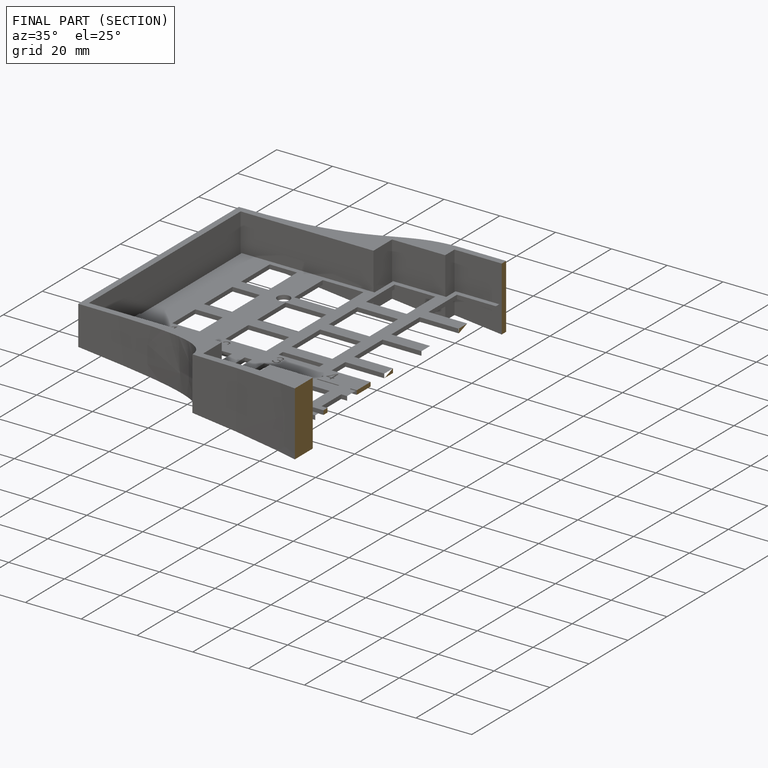
[diagram: finished part — half-section view (interior)]
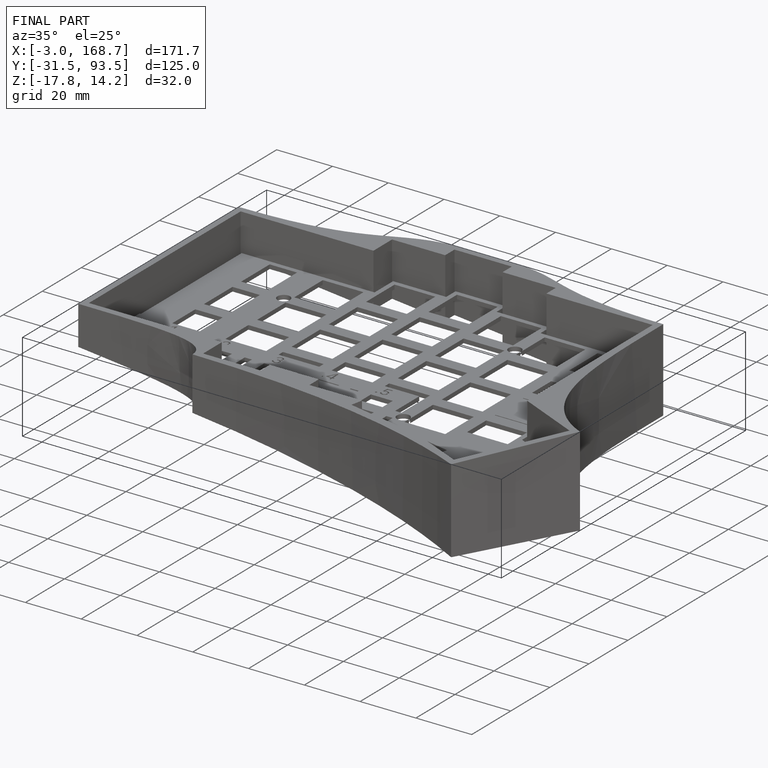
[diagram: finished part — iso view with bounding-box wireframe]
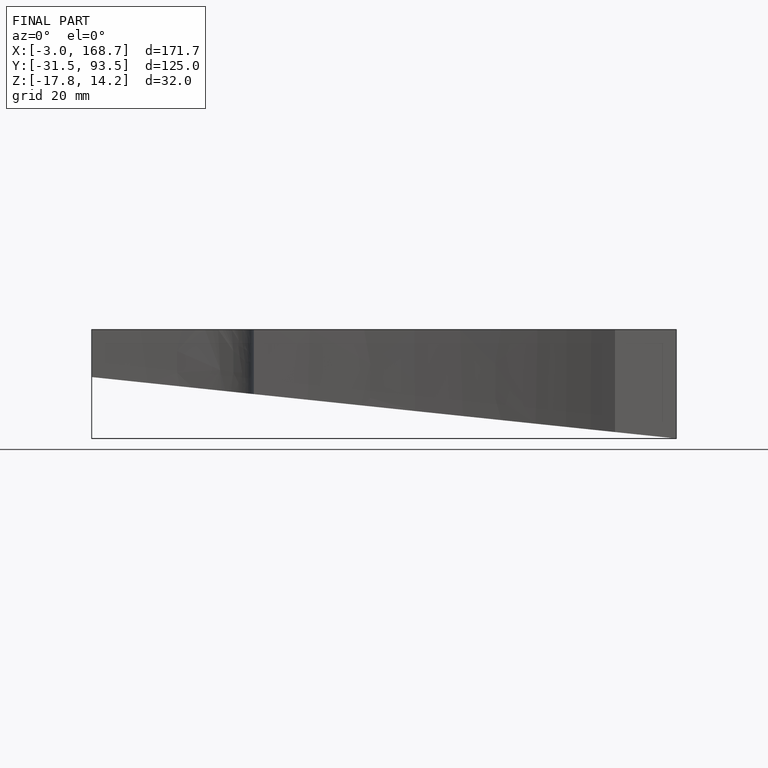
[diagram: finished part — front view with bounding-box wireframe]
